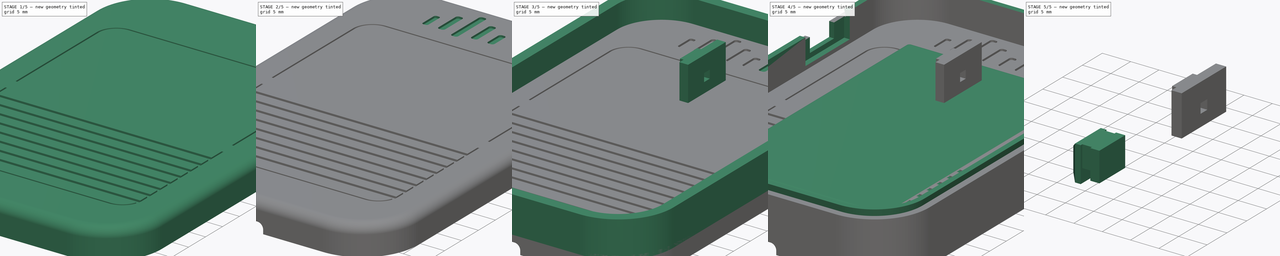
[diagram: build sequence overview — one tinted view per stage of 5, left to right]
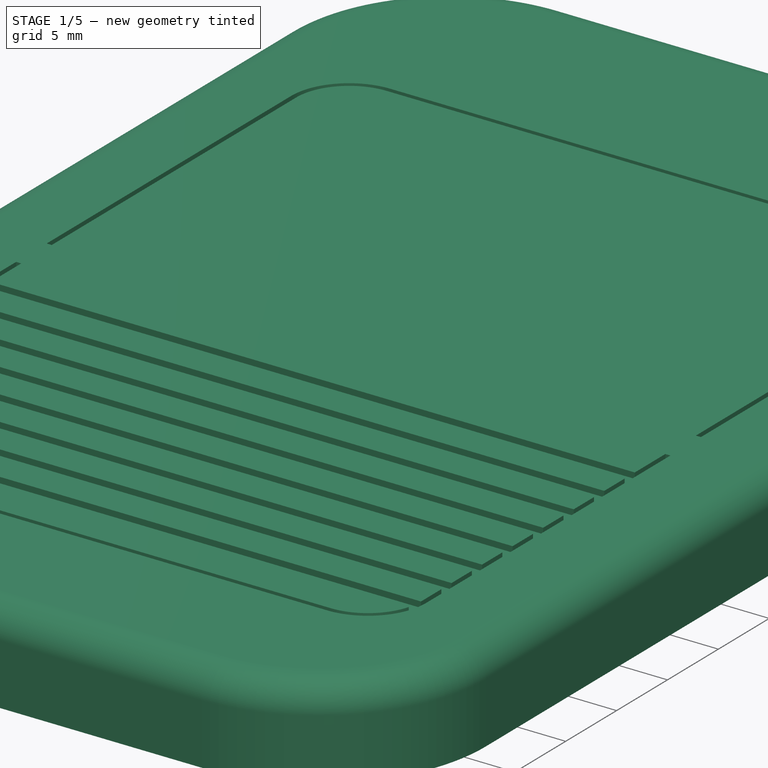
[diagram: stage 1 of 5 — iso view after this stage's code; geometry added in this stage tinted green]
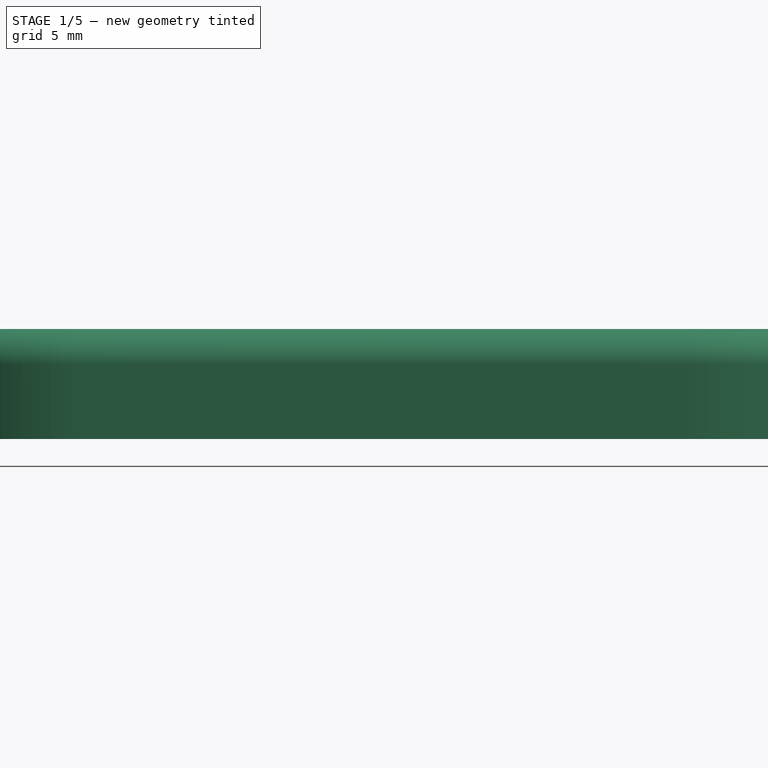
[diagram: stage 1 of 5 — front view after this stage's code; geometry added in this stage tinted green]
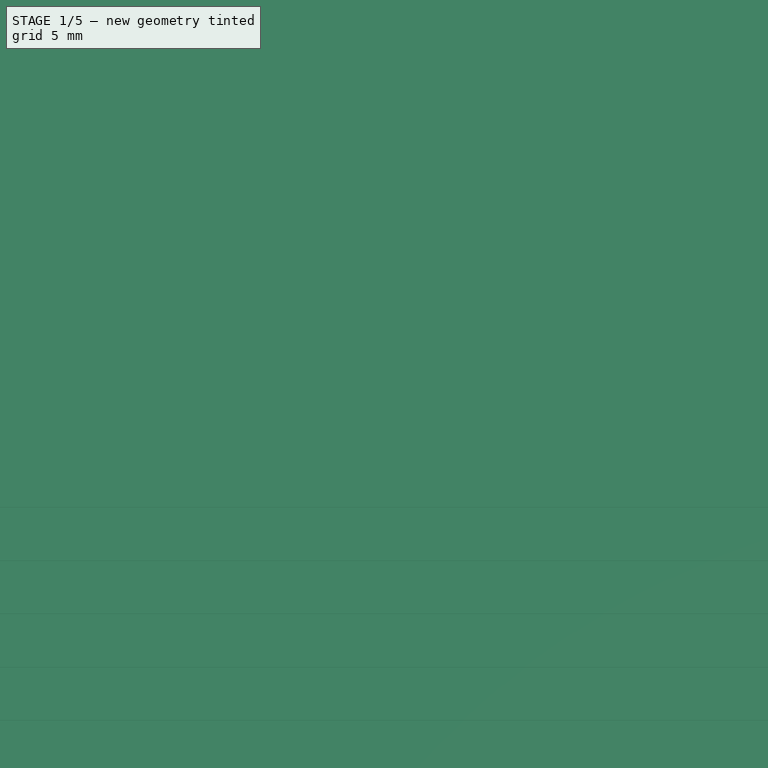
[diagram: stage 1 of 5 — top view after this stage's code; geometry added in this stage tinted green]
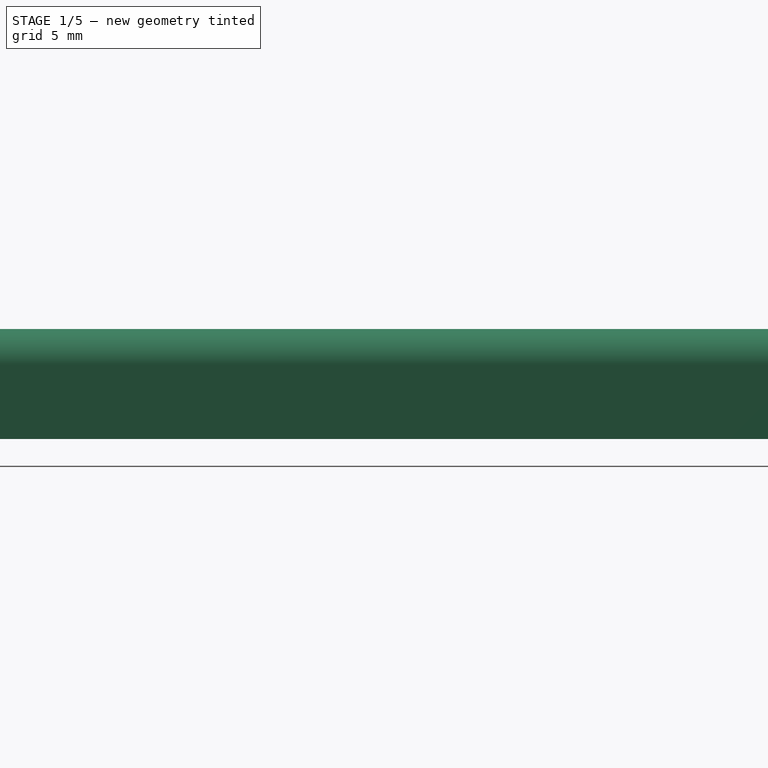
[diagram: stage 1 of 5 — right view after this stage's code; geometry added in this stage tinted green]
FCSTD DOCUMENT  (FreeCAD 1.1R44874 (Git))
Label: ev17-case
License: All rights reserved
LicenseURL: https://en.wikipedia.org/wiki/All_rights_reserved
objects: Sketcher::SketchObject×38, PartDesign::Pocket×22, PartDesign::Pad×15, Part::Feature×13, App::Point×7, PartDesign::SubShapeBinder×6, PartDesign::Body×5, PartDesign::Fillet×3, App::Part×2, App::VarSet×1, PartDesign::Chamfer×1, PartDesign::Hole×1, PartDesign::Mirrored×1
note: 228 computed .brp shape members not serialized (recipe doc carries the construction recipe); baked Part::Feature solids carry a one-line shape summary decoded from their .brp

FEATURE [Sketcher::SketchObject] Sketch045
  ArcFitTolerance = 1e-06
  AttachmentOffset = pos=(0,0,9.6) rot=(0,0,1;0rad)
  AttachmentSupport = -> [XY_Plane009]
  ExternalTypes = [0]
  FullyConstrained = true
  MakeInternals = false
  MapMode = 5
  Placement = pos=(0,0,9.6) rot=(0,0,1;0rad)
  _ExternalGeoVersion = 0
  expr: .AttachmentOffset.Base.z = <<vars>>.bottom_height
  expr: Constraints[29] = <<vars>>.width
  expr: Constraints[30] = <<vars>>.length
  expr: Constraints[4] = <<vars>>.wall_width
  expr: Constraints[53] = <<vars>>.corner_rad
  expr: Constraints[5] = <<vars>>.wall_length
  sketch-geometry (24):
    g0: LineSegment StartX=-26.4 StartY=30.85 StartZ=0 EndX=-26.4 EndY=-30.85 EndZ=0
    g1: LineSegment StartX=-17.1 StartY=-40.15 StartZ=0 EndX=17.1 EndY=-40.15 EndZ=0
    g2: LineSegment StartX=26.4 StartY=-30.85 StartZ=0 EndX=26.4 EndY=30.85 EndZ=0
    g3: LineSegment StartX=17.1 StartY=40.15 StartZ=0 EndX=-17.1 EndY=40.15 EndZ=0
    g4: ArcOfCircle CenterX=17.1 CenterY=30.85 CenterZ=0 NormalX=0 NormalY=0 NormalZ=1 AngleXU=0 Radius=9.3 StartAngle=1e-16 EndAngle=1.5708
    g5: GeomPoint [constr] X=26.4 Y=40.15 Z=0
    g6: ArcOfCircle CenterX=-17.1 CenterY=30.85 CenterZ=0 NormalX=0 NormalY=0 NormalZ=1 AngleXU=0 Radius=9.3 StartAngle=1.5708 EndAngle=3.14159
    g7: GeomPoint [constr] X=-26.4 Y=40.15 Z=0
    g8: ArcOfCircle CenterX=-17.1 CenterY=-30.85 CenterZ=0 NormalX=0 NormalY=0 NormalZ=1 AngleXU=0 Radius=9.3 StartAngle=3.14159 EndAngle=4.71239
    g9: GeomPoint [constr] X=-26.4 Y=-40.15 Z=0
    g10: ArcOfCircle CenterX=17.1 CenterY=-30.85 CenterZ=0 NormalX=0 NormalY=0 NormalZ=1 AngleXU=0 Radius=9.3 StartAngle=4.71239 EndAngle=6.28319
    g11: GeomPoint [constr] X=26.4 Y=-40.15 Z=0
    g12: LineSegment [constr] StartX=-28.6 StartY=30.85 StartZ=0 EndX=-28.6 EndY=-30.85 EndZ=0
    g13: LineSegment [constr] StartX=-17.1 StartY=-42.35 StartZ=0 EndX=17.1 EndY=-42.35 EndZ=0
    g14: LineSegment [constr] StartX=28.6 StartY=-30.85 StartZ=0 EndX=28.6 EndY=30.85 EndZ=0
    g15: LineSegment [constr] StartX=17.1 StartY=42.35 StartZ=0 EndX=-17.1 EndY=42.35 EndZ=0
    g16: ArcOfCircle [constr] CenterX=17.1 CenterY=30.85 CenterZ=0 NormalX=0 NormalY=0 NormalZ=1 AngleXU=0 Radius=11.5 StartAngle=0 EndAngle=1.5708
    g17: GeomPoint [constr] X=28.6 Y=42.35 Z=0
    g18: ArcOfCircle [constr] CenterX=17.1 CenterY=-30.85 CenterZ=0 NormalX=0 NormalY=0 NormalZ=1 AngleXU=0 Radius=11.5 StartAngle=4.71239 EndAngle=6.28319
    g19: GeomPoint [constr] X=28.6 Y=-42.35 Z=0
    g20: ArcOfCircle [constr] CenterX=-17.1 CenterY=-30.85 CenterZ=0 NormalX=0 NormalY=0 NormalZ=1 AngleXU=0 Radius=11.5 StartAngle=3.14159 EndAngle=4.71239
    g21: GeomPoint [constr] X=-28.6 Y=-42.35 Z=0
    g22: ArcOfCircle [constr] CenterX=-17.1 CenterY=30.85 CenterZ=0 NormalX=0 NormalY=0 NormalZ=1 AngleXU=0 Radius=11.5 StartAngle=1.5708 EndAngle=3.14159
    g23: GeomPoint [constr] X=-28.6 Y=42.35 Z=0
  constraints (55):
    c: Vertical(g0)
    c: Vertical(g2)
    c: Horizontal(g1)
    c: Horizontal(g3)
    c: DistanceX(g7,g5) = 52.8
    c: DistanceY(g11,g5) = 80.3
    c: PointOnObject(g5,g2)
    c: PointOnObject(g5,g3)
    c: Tangent(g2,g4) = -1.5708
    c: Tangent(g3,g4) = -1.5708
    c: PointOnObject(g7,g0)
    c: PointOnObject(g7,g3)
    c: Tangent(g0,g6) = -1.5708
    c: Tangent(g3,g6) = -1.5708
    c: PointOnObject(g9,g0)
    c: PointOnObject(g9,g1)
    c: Tangent(g0,g8) = -1.5708
    c: Tangent(g1,g8) = -1.5708
    c: PointOnObject(g11,g1)
    c: PointOnObject(g11,g2)
    c: Tangent(g1,g10) = -1.5708
    c: Tangent(g2,g10) = -1.5708
    c: Equal(g6,g4)
    c: Equal(g4,g10)
    c: Equal(g10,g8)
    c: Vertical(g12)
    c: Vertical(g14)
    c: Horizontal(g13)
    c: Horizontal(g15)
    c: DistanceX(g23,g17) = 57.2
    c: DistanceY(g19,g17) = 84.7
    c: Symmetric(g17,g21,g-1)
    c: PointOnObject(g17,g14)
    c: PointOnObject(g17,g15)
    c: Tangent(g14,g16) = -1.5708
    c: Tangent(g15,g16) = -1.5708
    c: PointOnObject(g19,g13)
    c: PointOnObject(g19,g14)
    c: Tangent(g13,g18) = -1.5708
    c: Tangent(g14,g18) = -1.5708
    c: PointOnObject(g21,g12)
    c: PointOnObject(g21,g13)
    c: Tangent(g12,g20) = -1.5708
    c: Tangent(g13,g20) = -1.5708
    c: PointOnObject(g23,g12)
    c: PointOnObject(g23,g15)
    c: Tangent(g12,g22) = -1.5708
    c: Tangent(g15,g22) = -1.5708
    c: Vertical(g3,g15)
    c: Horizontal(g0,g12)
    c: Equal(g22,g16)
    c: Equal(g16,g18)
    c: Equal(g18,g20)
    c: Radius(g22) = 11.5
    c: Vertical(g1,g13)
FEATURE [App::VarSet] VarSet001  label="vars"
  battery_height = 5
  battery_length = 60
  battery_width = 37
  bottom_depth = 7.95
  bottom_height = 9.6
  cap_base_diameter = 11
  corner_rad = 11.5
  hinge_bridge_gap = 3
  hinge_button_corner_rad = 4
  hinge_button_gap = 0.35
  hinge_button_length = 28
  hinge_button_stem_offset = 6
  hinge_button_width = 45
  hinge_offset_from_center = 2
  hinge_outer_offset_from_center = 3
  hinge_size = 1
  is_demo = false
  length = 84.7
  lever_button_height = 2.4
  lever_button_hook_length = 2.4
  lever_button_length = 28
  lever_button_prong_width = 5
  lever_button_prongs = 1.5
  lever_button_slot_height = 2.5
  lever_button_slot_length = 2.2
  lever_button_stem_diameter = 8
  lever_button_stem_length = 7
  lever_button_stem_slot_difference = 16.8
  lever_button_travel = 3
  lever_button_width = 9
  leverl_button_hook_height = 1.5
  lip_actual_thickness = 1.18
  lip_angle = 14.85
  lip_height = 1.4
  lip_thickness = 0.8
  pcb_thickness = 1.6
  pcb_z_offset = 6.6
  peg_bottom_height = 6.6
  peg_length = 4
  peg_pocket_rad = 1.8
  power_switch_base_length = 5.61
  power_switch_base_width = 11.2
  power_switch_extended_base_length = 7.61
  power_switch_extended_base_width = 13.2
  power_switch_knob_width = 5.2
  power_switch_pocket_width = 7.2
  power_switch_stem_pocket_sz = 1.7
  power_switch_thickness = 1.8
  ptt_button_base = 1.2
  ptt_button_stem = 2.3
  ptt_button_total_height = 3.5
  side_button_gap = 0.2
  side_button_stem_length = 1.7
  thickness = 2.2
  top_bottom_thickness = 1.65
  top_ceiling_distance_to_pcb_top = 5.6
  top_depth = 2.8
  top_height = 4.8
  top_thickness = 2
  total_height = 15.8
  version_demo = false
  version_screenless = false
  wall_length = 80.3
  wall_width = 52.8
  width = 57.2
  expr: bottom_depth = bottom_height - top_bottom_thickness
  expr: bottom_height = 11 mm - lip_height
  expr: cap_base_diameter = lever_button_stem_diameter + 3 mm
  expr: length = wall_length + thickness * 2
  expr: lever_button_slot_height = top_thickness + 0.5 mm
  expr: lever_button_stem_diameter = 8 mm
  expr: lever_button_stem_length = top_thickness + lever_button_travel + 2 mm
  expr: lever_button_stem_slot_difference = lever_button_length - lever_button_length * 0.4
  expr: lip_thickness = thickness / 2 - 0.3 mm
  expr: pcb_z_offset = battery_height + pcb_thickness
  expr: peg_bottom_height = pcb_z_offset
  expr: power_switch_base_width = power_switch_pocket_width + 4 mm
  expr: power_switch_extended_base_length = power_switch_base_length + 2 mm
  expr: power_switch_extended_base_width = power_switch_pocket_width + 6 mm
  expr: power_switch_pocket_width = power_switch_knob_width + 2 mm
  expr: ptt_button_stem = ptt_button_total_height - ptt_button_base
  expr: top_ceiling_distance_to_pcb_top = bottom_height + lip_height - pcb_z_offset + top_depth - pcb_thickness
  expr: top_depth = top_height - top_thickness
  expr: top_height = 6.2 mm - lip_height
  expr: top_thickness = 2 mm
  expr: total_height = bottom_height + top_height + lip_height
  expr: wall_width = 52.8
  expr: width = wall_width + thickness * 2
FEATURE [Sketcher::SketchObject] Sketch053
  ArcFitTolerance = 1e-06
  AttachmentSupport = -> [XY_Plane011]
  ExternalTypes = [0]
  FullyConstrained = true
  MakeInternals = false
  MapMode = 5
  _ExternalGeoVersion = 0
  expr: Constraints[23] = <<vars>>.corner_rad
  expr: Constraints[5] = <<vars>>.length
  expr: Constraints[6] = <<vars>>.width
  sketch-geometry (12):
    g0: LineSegment StartX=-28.6 StartY=30.85 StartZ=0 EndX=-28.6 EndY=-30.85 EndZ=0
    g1: LineSegment StartX=-17.1 StartY=-42.35 StartZ=0 EndX=17.1 EndY=-42.35 EndZ=0
    g2: LineSegment StartX=28.6 StartY=-30.85 StartZ=0 EndX=28.6 EndY=30.85 EndZ=0
    g3: LineSegment StartX=17.1 StartY=42.35 StartZ=0 EndX=-17.1 EndY=42.35 EndZ=0
    g4: ArcOfCircle CenterX=17.1 CenterY=30.85 CenterZ=0 NormalX=0 NormalY=0 NormalZ=1 AngleXU=0 Radius=11.5 StartAngle=1e-16 EndAngle=1.5708
    g5: GeomPoint [constr] X=28.6 Y=42.35 Z=0
    g6: ArcOfCircle CenterX=-17.1 CenterY=30.85 CenterZ=0 NormalX=0 NormalY=0 NormalZ=1 AngleXU=0 Radius=11.5 StartAngle=1.5708 EndAngle=3.14159
    g7: GeomPoint [constr] X=-28.6 Y=42.35 Z=0
    g8: ArcOfCircle CenterX=-17.1 CenterY=-30.85 CenterZ=0 NormalX=0 NormalY=0 NormalZ=1 AngleXU=0 Radius=11.5 StartAngle=3.14159 EndAngle=4.71239
    g9: GeomPoint [constr] X=-28.6 Y=-42.35 Z=0
    g10: ArcOfCircle CenterX=17.1 CenterY=-30.85 CenterZ=0 NormalX=0 NormalY=0 NormalZ=1 AngleXU=0 Radius=11.5 StartAngle=4.71239 EndAngle=6.28319
    g11: GeomPoint [constr] X=28.6 Y=-42.35 Z=0
  constraints (27):
    c: Vertical(g0)
    c: Vertical(g2)
    c: Horizontal(g1)
    c: Horizontal(g3)
    c: Symmetric(g5,g9,g-1)
    c: DistanceY(g9,g7) = 84.7
    c: DistanceX(g7,g5) = 57.2
    c: PointOnObject(g5,g2)
    c: PointOnObject(g5,g3)
    c: Tangent(g2,g4) = -1.5708
    c: Tangent(g3,g4) = -1.5708
    c: PointOnObject(g7,g0)
    c: PointOnObject(g7,g3)
    c: Tangent(g0,g6) = -1.5708
    c: Tangent(g3,g6) = -1.5708
    c: PointOnObject(g9,g0)
    c: PointOnObject(g9,g1)
    c: Tangent(g0,g8) = -1.5708
    c: Tangent(g1,g8) = -1.5708
    c: PointOnObject(g11,g1)
    c: PointOnObject(g11,g2)
    c: Tangent(g1,g10) = -1.5708
    c: Tangent(g2,g10) = -1.5708
    c: Radius(g6) = 11.5
    c: Equal(g6,g4)
    c: Equal(g4,g10)
    c: Equal(g10,g8)
FEATURE [PartDesign::Pad] Pad024  label="base-pad001"
  Direction = (0,0,1)
  Length = 4.8
  Length2 = 10
  Profile = -> Sketch053
  ReferenceAxis = -> Sketch053 [N_Axis]
  Refine = true
  SideType = 0
  Suppressed = false
  Type = 0
  Type2 = 0
  expr: Length = <<vars>>.top_height
FEATURE [PartDesign::Fillet] Fillet001
  Base = -> Pad024 [Edge4]
  BaseFeature = -> Pad024
  Radius = 2
  Refine = true
  SupportTransform = false
  Suppressed = false
  UseAllEdges = false
FEATURE [Sketcher::SketchObject] Sketch054
  ArcFitTolerance = 1e-06
  AttachmentSupport = -> [XY_Plane011]
  ExternalTypes = [0]
  FullyConstrained = true
  MakeInternals = false
  MapMode = 5
  _ExternalGeoVersion = 0
  expr: Constraints[30] = <<vars>>.width
  expr: Constraints[31] = <<vars>>.length
  expr: Constraints[49] = <<vars>>.corner_rad
  expr: Constraints[5] = <<vars>>.wall_width
  expr: Constraints[6] = <<vars>>.wall_length
  sketch-geometry (25):
    g0: LineSegment StartX=26.4 StartY=-30.85 StartZ=0 EndX=26.4 EndY=30.85 EndZ=0
    g1: LineSegment StartX=17.1 StartY=40.15 StartZ=0 EndX=-17.1 EndY=40.15 EndZ=0
    g2: LineSegment StartX=-26.4 StartY=30.85 StartZ=0 EndX=-26.4 EndY=-30.85 EndZ=0
    g3: LineSegment StartX=-17.1 StartY=-40.15 StartZ=0 EndX=17.1 EndY=-40.15 EndZ=0
    g4: GeomPoint [constr] X=0 Y=0 Z=0
    g5: ArcOfCircle CenterX=17.1 CenterY=30.85 CenterZ=0 NormalX=0 NormalY=0 NormalZ=1 AngleXU=0 Radius=9.3 StartAngle=1e-16 EndAngle=1.5708
    g6: GeomPoint [constr] X=26.4 Y=40.15 Z=0
    g7: ArcOfCircle CenterX=-17.1 CenterY=30.85 CenterZ=0 NormalX=0 NormalY=0 NormalZ=1 AngleXU=0 Radius=9.3 StartAngle=1.5708 EndAngle=3.14159
    g8: GeomPoint [constr] X=-26.4 Y=40.15 Z=0
    g9: ArcOfCircle CenterX=-17.1 CenterY=-30.85 CenterZ=0 NormalX=0 NormalY=0 NormalZ=1 AngleXU=0 Radius=9.3 StartAngle=3.14159 EndAngle=4.71239
    g10: GeomPoint [constr] X=-26.4 Y=-40.15 Z=0
    g11: ArcOfCircle CenterX=17.1 CenterY=-30.85 CenterZ=0 NormalX=0 NormalY=0 NormalZ=1 AngleXU=0 Radius=9.3 StartAngle=4.71239 EndAngle=6.28319
    g12: GeomPoint [constr] X=26.4 Y=-40.15 Z=0
    g13: LineSegment [constr] StartX=-28.6 StartY=30.85 StartZ=0 EndX=-28.6 EndY=-30.85 EndZ=0
    g14: LineSegment [constr] StartX=-17.1 StartY=-42.35 StartZ=0 EndX=17.1 EndY=-42.35 EndZ=0
    g15: LineSegment [constr] StartX=28.6 StartY=-30.85 StartZ=0 EndX=28.6 EndY=30.85 EndZ=0
    g16: LineSegment [constr] StartX=17.1 StartY=42.35 StartZ=0 EndX=-17.1 EndY=42.35 EndZ=0
    g17: ArcOfCircle [constr] CenterX=-17.1 CenterY=30.85 CenterZ=0 NormalX=0 NormalY=0 NormalZ=1 AngleXU=0 Radius=11.5 StartAngle=1.5708 EndAngle=3.14159
    g18: GeomPoint [constr] X=-28.6 Y=42.35 Z=0
    g19: ArcOfCircle [constr] CenterX=17.1 CenterY=30.85 CenterZ=0 NormalX=0 NormalY=0 NormalZ=1 AngleXU=0 Radius=11.5 StartAngle=0 EndAngle=1.5708
    g20: GeomPoint [constr] X=28.6 Y=42.35 Z=0
    g21: ArcOfCircle [constr] CenterX=17.1 CenterY=-30.85 CenterZ=0 NormalX=0 NormalY=0 NormalZ=1 AngleXU=0 Radius=11.5 StartAngle=4.71239 EndAngle=6.28319
    g22: GeomPoint [constr] X=28.6 Y=-42.35 Z=0
    g23: ArcOfCircle [constr] CenterX=-17.1 CenterY=-30.85 CenterZ=0 NormalX=0 NormalY=0 NormalZ=1 AngleXU=0 Radius=11.5 StartAngle=3.14159 EndAngle=4.71239
    g24: GeomPoint [constr] X=-28.6 Y=-42.35 Z=0
  constraints (56):
    c: Vertical(g0)
    c: Vertical(g2)
    c: Horizontal(g1)
    c: Horizontal(g3)
    c: Coincident(g4,g-1)
    c: DistanceX(g8,g6) = 52.8
    c: DistanceY(g10,g8) = 80.3
    c: PointOnObject(g6,g1)
    c: PointOnObject(g6,g0)
    c: Tangent(g1,g5) = -1.5708
    c: Tangent(g0,g5) = -1.5708
    c: PointOnObject(g8,g1)
    c: PointOnObject(g8,g2)
    c: Tangent(g1,g7) = -1.5708
    c: Tangent(g2,g7) = -1.5708
    c: PointOnObject(g10,g2)
    c: PointOnObject(g10,g3)
    c: Tangent(g2,g9) = -1.5708
    c: Tangent(g3,g9) = -1.5708
    c: PointOnObject(g12,g0)
    c: PointOnObject(g12,g3)
    c: Tangent(g0,g11) = -1.5708
    c: Tangent(g3,g11) = -1.5708
    c: Equal(g7,g5)
    c: Equal(g5,g11)
    c: Equal(g11,g9)
    c: Vertical(g13)
    c: Vertical(g15)
    c: Horizontal(g14)
    c: Horizontal(g16)
    c: DistanceX(g18,g20) = 57.2
    c: DistanceY(g22,g20) = 84.7
    c: PointOnObject(g18,g13)
    c: PointOnObject(g18,g16)
    c: Tangent(g13,g17) = -1.5708
    c: Tangent(g16,g17) = -1.5708
    c: Symmetric(g20,g24,g4)
    c: PointOnObject(g20,g15)
    c: PointOnObject(g20,g16)
    c: Tangent(g15,g19) = -1.5708
    c: Tangent(g16,g19) = -1.5708
    c: PointOnObject(g22,g14)
    c: PointOnObject(g22,g15)
    c: Tangent(g14,g21) = -1.5708
    c: Tangent(g15,g21) = -1.5708
    c: PointOnObject(g24,g13)
    c: PointOnObject(g24,g14)
    c: Tangent(g13,g23) = -1.5708
    c: Tangent(g14,g23) = -1.5708
    c: Radius(g17) = 11.5
    c: Equal(g17,g19)
    c: Equal(g19,g21)
    c: Equal(g21,g23)
    c: Vertical(g1,g16)
    c: Horizontal(g2,g13)
    c: Vertical(g3,g14)
FEATURE [PartDesign::Pocket] Pocket025  label="hollow-pocket001"
  BaseFeature = -> Fillet001
  Direction = (0,0,-1)
  Length = 2.8
  Length2 = 5
  Profile = -> Sketch054
  ReferenceAxis = -> Sketch054 [N_Axis]
  Refine = true
  Reversed = true
  SideType = 0
  Suppressed = false
  Type = 0
  Type2 = 0
  expr: Length = <<vars>>.top_depth
FEATURE [Sketcher::SketchObject] Sketch057
  ArcFitTolerance = 1e-06
  AttachmentSupport = -> [XY_Plane011]
  ExternalTypes = [0]
  FullyConstrained = true
  MakeInternals = false
  MapMode = 5
  _ExternalGeoVersion = 0
  expr: Constraints[23] = <<vars>>.corner_rad
  expr: Constraints[49] = <<vars>>.lip_thickness
  expr: Constraints[4] = <<vars>>.length
  expr: Constraints[5] = <<vars>>.width
  sketch-geometry (24):
    g0: LineSegment StartX=-28.6 StartY=30.85 StartZ=0 EndX=-28.6 EndY=-30.85 EndZ=0
    g1: LineSegment StartX=-17.1 StartY=-42.35 StartZ=0 EndX=17.1 EndY=-42.35 EndZ=0
    g2: LineSegment StartX=28.6 StartY=-30.85 StartZ=0 EndX=28.6 EndY=30.85 EndZ=0
    g3: LineSegment StartX=17.1 StartY=42.35 StartZ=0 EndX=-17.1 EndY=42.35 EndZ=0
    g4: ArcOfCircle CenterX=-17.1 CenterY=30.85 CenterZ=0 NormalX=0 NormalY=0 NormalZ=1 AngleXU=0 Radius=11.5 StartAngle=1.5708 EndAngle=3.14159
    g5: GeomPoint [constr] X=-28.6 Y=42.35 Z=0
    g6: ArcOfCircle CenterX=17.1 CenterY=30.85 CenterZ=0 NormalX=0 NormalY=0 NormalZ=1 AngleXU=0 Radius=11.5 StartAngle=0 EndAngle=1.5708
    g7: GeomPoint [constr] X=28.6 Y=42.35 Z=0
    g8: ArcOfCircle CenterX=17.1 CenterY=-30.85 CenterZ=0 NormalX=0 NormalY=0 NormalZ=1 AngleXU=0 Radius=11.5 StartAngle=4.71239 EndAngle=6.28319
    g9: GeomPoint [constr] X=28.6 Y=-42.35 Z=0
    g10: ArcOfCircle CenterX=-17.1 CenterY=-30.85 CenterZ=0 NormalX=0 NormalY=0 NormalZ=1 AngleXU=0 Radius=11.5 StartAngle=3.14159 EndAngle=4.71239
    g11: GeomPoint [constr] X=-28.6 Y=-42.35 Z=0
    g12: LineSegment StartX=-27.8 StartY=30.85 StartZ=0 EndX=-27.8 EndY=-30.85 EndZ=0
    g13: LineSegment StartX=-17.1 StartY=-41.55 StartZ=0 EndX=17.1 EndY=-41.55 EndZ=0
    g14: LineSegment StartX=27.8 StartY=-30.85 StartZ=0 EndX=27.8 EndY=30.85 EndZ=0
    g15: LineSegment StartX=17.1 StartY=41.55 StartZ=0 EndX=-17.1 EndY=41.55 EndZ=0
    g16: ArcOfCircle CenterX=-17.1 CenterY=30.85 CenterZ=0 NormalX=0 NormalY=0 NormalZ=1 AngleXU=0 Radius=10.7 StartAngle=1.5708 EndAngle=3.14159
    g17: GeomPoint [constr] X=-27.8 Y=41.55 Z=0
    g18: ArcOfCircle CenterX=17.1 CenterY=30.85 CenterZ=0 NormalX=0 NormalY=0 NormalZ=1 AngleXU=0 Radius=10.7 StartAngle=2e-16 EndAngle=1.5708
    g19: GeomPoint [constr] X=27.8 Y=41.55 Z=0
    g20: ArcOfCircle CenterX=17.1 CenterY=-30.85 CenterZ=0 NormalX=0 NormalY=0 NormalZ=1 AngleXU=0 Radius=10.7 StartAngle=4.71239 EndAngle=6.28319
    g21: GeomPoint [constr] X=27.8 Y=-41.55 Z=0
    g22: ArcOfCircle CenterX=-17.1 CenterY=-30.85 CenterZ=0 NormalX=0 NormalY=0 NormalZ=1 AngleXU=0 Radius=10.7 StartAngle=3.14159 EndAngle=4.71239
    g23: GeomPoint [constr] X=-27.8 Y=-41.55 Z=0
  constraints (55):
    c: Vertical(g0)
    c: Vertical(g2)
    c: Horizontal(g1)
    c: Horizontal(g3)
    c: DistanceY(g9,g7) = 84.7
    c: DistanceX(g5,g7) = 57.2
    c: Symmetric(g7,g11,g-1)
    c: PointOnObject(g5,g0)
    c: PointOnObject(g5,g3)
    c: Tangent(g0,g4) = -1.5708
    c: Tangent(g3,g4) = -1.5708
    c: PointOnObject(g7,g2)
    c: PointOnObject(g7,g3)
    c: Tangent(g2,g6) = -1.5708
    c: Tangent(g3,g6) = -1.5708
    c: PointOnObject(g9,g1)
    c: PointOnObject(g9,g2)
    c: Tangent(g1,g8) = -1.5708
    c: Tangent(g2,g8) = -1.5708
    c: PointOnObject(g11,g0)
    c: PointOnObject(g11,g1)
    c: Tangent(g0,g10) = -1.5708
    c: Tangent(g1,g10) = -1.5708
    c: Radius(g4) = 11.5
    c: Equal(g6,g4)
    c: Equal(g8,g6)
    c: Equal(g10,g8)
    c: Vertical(g12)
    c: Vertical(g14)
    c: Horizontal(g13)
    c: Horizontal(g15)
    c: PointOnObject(g17,g12)
    c: PointOnObject(g17,g15)
    c: Tangent(g12,g16) = -1.5708
    c: Tangent(g15,g16) = -1.5708
    c: PointOnObject(g19,g14)
    c: PointOnObject(g19,g15)
    c: Tangent(g14,g18) = -1.5708
    c: Tangent(g15,g18) = -1.5708
    c: PointOnObject(g21,g13)
    c: PointOnObject(g21,g14)
    c: Tangent(g13,g20) = -1.5708
    c: Tangent(g14,g20) = -1.5708
    c: PointOnObject(g23,g12)
    c: PointOnObject(g23,g13)
    c: Tangent(g12,g22) = -1.5708
    c: Tangent(g13,g22) = -1.5708
    c: Horizontal(g12,g0)
    c: Vertical(g13,g1)
    c: DistanceX(g0,g12) = 0.8
    c: Vertical(g13,g1)
    c: Horizontal(g14,g2)
    c: Vertical(g15,g3)
    c: Horizontal(g12,g0)
    c: Vertical(g15,g3)
FEATURE [PartDesign::Pad] Pad025  label="lip-angle001"
  BaseFeature = -> Pocket025
  Direction = (0,0,1)
  Length = 1.4
  Length2 = 10
  Profile = -> Sketch057
  ReferenceAxis = -> Sketch057 [N_Axis]
  Refine = true
  Reversed = true
  SideType = 0
  Suppressed = false
  TaperAngle = 14.85
  Type = 0
  Type2 = 0
  expr: Length = <<vars>>.lip_height
  expr: TaperAngle = <<vars>>.lip_angle
FEATURE [PartDesign::Body] Body007  label="bottom"
  AllowCompound = true
  Group = -> [Sketch044,Pad021,Fillet005,Sketch045,Pocket020,Sketch,Pad,Pocket054,Sketch046,Binder,Sketch101,Pad052,Sketch103,Hole,Sketch104,Pocket,Sketch105,Pocket056,Sketch134,Pocket040,Sketch106,Pocket041,Sketch107,Pocket042,Sketch108,Pocket043,Binder011,Sketch109,Pad053]
  Origin = -> Origin009
  Tip = -> Pad053
FEATURE [PartDesign::Pocket] Pocket057  label="lip-flattening001"
  BaseFeature = -> Pad025
  Direction = (0,0,-1)
  Length = 5
  Length2 = 5
  Profile = -> Sketch058
  ReferenceAxis = -> Sketch058 [N_Axis]
  Refine = true
  SideType = 0
  Suppressed = false
  Type = 0
  Type2 = 0
FEATURE [PartDesign::Pocket] Pocket050  label="hinge-outline"
  BaseFeature = -> Pocket057
  Direction = (0,0,-1)
  Length = 5
  Length2 = 5
  Profile = -> Sketch123
  ReferenceAxis = -> Sketch123 [N_Axis]
  Refine = true
  SideType = 0
  Suppressed = false
  Type = 0
  Type2 = 0
FEATURE [Sketcher::SketchObject] Sketch124
  ArcFitTolerance = 1e-06
  AttachmentOffset = pos=(0,0,2.8) rot=(0,0,1;0rad)
  AttachmentSupport = -> [XY_Plane011]
  ExternalGeometry = -> [Pocket050]
  ExternalTypes = [0]
  FullyConstrained = true
  MakeInternals = false
  MapMode = 5
  Placement = pos=(0,0,2.8) rot=(0,0,1;0rad)
  _ExternalGeoVersion = 0
  expr: .AttachmentOffset.Base.z = <<vars>>.top_depth
  expr: Constraints[10] = <<vars>>.hinge_size
  expr: Constraints[8] = <<vars>>.hinge_button_width - <<vars>>.hinge_button_gap * 2
  sketch-geometry (10):
    g0: LineSegment StartX=-22.15 StartY=-1 StartZ=0 EndX=22.15 EndY=-1 EndZ=0
    g1: LineSegment StartX=22.15 StartY=-1 StartZ=0 EndX=22.15 EndY=0 EndZ=0
    g2: LineSegment StartX=22.15 StartY=0 StartZ=0 EndX=-22.15 EndY=0 EndZ=0
    g3: LineSegment StartX=-22.15 StartY=0 StartZ=0 EndX=-22.15 EndY=-1 EndZ=0
    g4: GeomPoint [constr] X=2.1e-15 Y=-1 Z=0
    g5: LineSegment StartX=-22.15 StartY=-4 StartZ=0 EndX=-22.15 EndY=-5 EndZ=0
    g6: LineSegment StartX=-22.15 StartY=-5 StartZ=0 EndX=22.15 EndY=-5 EndZ=0
    g7: LineSegment StartX=22.15 StartY=-5 StartZ=0 EndX=22.15 EndY=-4 EndZ=0
    g8: LineSegment StartX=22.15 StartY=-4 StartZ=0 EndX=-22.15 EndY=-4 EndZ=0
    g9: GeomPoint [constr] X=3.4e-15 Y=-4 Z=0
  constraints (24):
    c: Coincident(g0,g1)
    c: Coincident(g1,g2)
    c: Coincident(g2,g3)
    c: Coincident(g3,g0)
    c: Horizontal(g0)
    c: Horizontal(g2)
    c: Vertical(g1)
    c: Vertical(g3)
    c: DistanceX(g0,g0) = 44.3
    c: Symmetric(g0,g0,g4)
    c: DistanceY(g1,g1) = 1
    c: Coincident(g5,g6)
    c: Coincident(g6,g7)
    c: Coincident(g7,g8)
    c: Coincident(g8,g5)
    c: Vertical(g5)
    c: Vertical(g7)
    c: Horizontal(g6)
    c: Horizontal(g8)
    c: Symmetric(g8,g8,g9)
    c: Equal(g8,g0)
    c: Equal(g7,g1)
    c: Coincident(g0,g-34)
    c: Coincident(g7,g-17)
FEATURE [PartDesign::Pocket] Pocket051  label="hinge bridge"
  BaseFeature = -> Pocket050
  Direction = (0,0,-1)
  Length = 1.5
  Length2 = 5
  Profile = -> Sketch124
  ReferenceAxis = -> Sketch124 [N_Axis]
  Refine = true
  Reversed = true
  SideType = 0
  Suppressed = false
  Type = 0
  Type2 = 0
  expr: Length = <<vars>>.top_thickness - 0.5 mm
FEATURE [Sketcher::SketchObject] Sketch125
  ArcFitTolerance = 1e-06
  AttachmentOffset = pos=(0,0,2.8) rot=(0,0,1;0rad)
  AttachmentSupport = -> [XY_Plane011]
  ExternalGeometry = -> [Binder016,Pocket051]
  ExternalTypes = [0,0,0,0]
  FullyConstrained = true
  MakeInternals = false
  MapMode = 5
  Placement = pos=(0,0,2.8) rot=(0,0,1;0rad)
  _ExternalGeoVersion = 0
  expr: .AttachmentOffset.Base.z = <<vars>>.top_depth
  expr: Constraints[1] = <<vars>>.lever_button_stem_diameter
  sketch-geometry (2):
    g0: Circle CenterX=0.025 CenterY=-12 CenterZ=0 NormalX=0 NormalY=0 NormalZ=1 AngleXU=0 Radius=4
    g1: Circle CenterX=0.025 CenterY=22 CenterZ=0 NormalX=0 NormalY=0 NormalZ=1 AngleXU=0 Radius=4
  constraints (4):
    c: Coincident(g0,g-13)
    c: Diameter(g0) = 8
    c: Coincident(g1,g-23)
    c: Equal(g1,g0)
FEATURE [PartDesign::Pad] Pad060  label="hinge-button-stem-pad"
  BaseFeature = -> Pocket051
  Direction = (0,0,1)
  Length = 2.1
  Length2 = 10
  Profile = -> Sketch125
  ReferenceAxis = -> Sketch125 [N_Axis]
  Refine = true
  Reversed = true
  SideType = 0
  Suppressed = false
  Type = 0
  Type2 = 0
  expr: Length = <<vars>>.top_ceiling_distance_to_pcb_top - <<vars>>.ptt_button_base - <<vars>>.ptt_button_stem
FEATURE [Sketcher::SketchObject] Sketch129
  ArcFitTolerance = 1e-06
  AttachmentOffset = pos=(0,0,4.8) rot=(0,0,1;0rad)
  AttachmentSupport = -> [XY_Plane011]
  ExternalGeometry = -> [Pad060]
  ExternalTypes = [0]
  FullyConstrained = true
  MakeInternals = false
  MapMode = 5
  Placement = pos=(0,0,4.8) rot=(0,0,1;0rad)
  _ExternalGeoVersion = 0
  expr: .AttachmentOffset.Base.z = <<vars>>.top_height
  sketch-geometry (34):
    g0: GeomPoint [constr] X=-22.15 Y=-31.65 Z=0
    g1: LineSegment [constr] StartX=22.15 StartY=-4 StartZ=0 EndX=22.15 EndY=-31.65 EndZ=0
    g2: LineSegment StartX=-22.15 StartY=-7 StartZ=0 EndX=-22.15 EndY=-8 EndZ=0
    g3: LineSegment StartX=-22.15 StartY=-8 StartZ=0 EndX=22.15 EndY=-8 EndZ=0
    g4: LineSegment StartX=22.15 StartY=-8 StartZ=0 EndX=22.15 EndY=-7 EndZ=0
    g5: LineSegment StartX=22.15 StartY=-7 StartZ=0 EndX=-22.15 EndY=-7 EndZ=0
    g6: LineSegment StartX=22.15 StartY=-10 StartZ=0 EndX=-22.15 EndY=-10 EndZ=0
    g7: LineSegment StartX=-22.15 StartY=-10 StartZ=0 EndX=-22.15 EndY=-11 EndZ=0
    g8: LineSegment StartX=-22.15 StartY=-11 StartZ=0 EndX=22.15 EndY=-11 EndZ=0
    g9: LineSegment StartX=22.15 StartY=-11 StartZ=0 EndX=22.15 EndY=-10 EndZ=0
    g10: LineSegment StartX=-22.15 StartY=-13 StartZ=0 EndX=-22.15 EndY=-14 EndZ=0
    g11: LineSegment StartX=-22.15 StartY=-14 StartZ=0 EndX=22.15 EndY=-14 EndZ=0
    g12: LineSegment StartX=22.15 StartY=-14 StartZ=0 EndX=22.15 EndY=-13 EndZ=0
    g13: LineSegment StartX=22.15 StartY=-13 StartZ=0 EndX=-22.15 EndY=-13 EndZ=0
    g14: LineSegment StartX=-22.15 StartY=-17 StartZ=0 EndX=22.15 EndY=-17 EndZ=0
    g15: LineSegment StartX=22.15 StartY=-17 StartZ=0 EndX=22.15 EndY=-16 EndZ=0
    g16: LineSegment StartX=22.15 StartY=-16 StartZ=0 EndX=-22.15 EndY=-16 EndZ=0
    g17: LineSegment StartX=-22.15 StartY=-16 StartZ=0 EndX=-22.15 EndY=-17 EndZ=0
    g18: LineSegment StartX=22.15 StartY=-19 StartZ=0 EndX=-22.15 EndY=-19 EndZ=0
    g19: LineSegment StartX=-22.15 StartY=-19 StartZ=0 EndX=-22.15 EndY=-20 EndZ=0
    g20: LineSegment StartX=-22.15 StartY=-20 StartZ=0 EndX=22.15 EndY=-20 EndZ=0
    g21: LineSegment StartX=22.15 StartY=-20 StartZ=0 EndX=22.15 EndY=-19 EndZ=0
    g22: LineSegment StartX=-22.15 StartY=-22 StartZ=0 EndX=-22.15 EndY=-23 EndZ=0
    g23: LineSegment StartX=-22.15 StartY=-23 StartZ=0 EndX=22.15 EndY=-23 EndZ=0
    g24: LineSegment StartX=22.15 StartY=-23 StartZ=0 EndX=22.15 EndY=-22 EndZ=0
    g25: LineSegment StartX=22.15 StartY=-22 StartZ=0 EndX=-22.15 EndY=-22 EndZ=0
    g26: LineSegment StartX=22.15 StartY=-25 StartZ=0 EndX=-22.15 EndY=-25 EndZ=0
    g27: LineSegment StartX=-22.15 StartY=-25 StartZ=0 EndX=-22.15 EndY=-26 EndZ=0
    g28: LineSegment StartX=-22.15 StartY=-26 StartZ=0 EndX=22.15 EndY=-26 EndZ=0
    g29: LineSegment StartX=22.15 StartY=-26 StartZ=0 EndX=22.15 EndY=-25 EndZ=0
    g30: LineSegment StartX=22.15 StartY=-28 StartZ=0 EndX=-22.15 EndY=-28 EndZ=0
    g31: LineSegment StartX=-22.0103 StartY=-29 StartZ=0 EndX=22.0103 EndY=-29 EndZ=0
    g32: ArcOfCircle CenterX=18.5 CenterY=-28 CenterZ=0 NormalX=0 NormalY=0 NormalZ=1 AngleXU=0 Radius=3.65 StartAngle=6.00566 EndAngle=6.28319
    g33: ArcOfCircle CenterX=-18.5 CenterY=-28 CenterZ=0 NormalX=0 NormalY=0 NormalZ=1 AngleXU=0 Radius=3.65 StartAngle=3.14159 EndAngle=3.41911
  constraints (104):
    c: Horizontal(g0,g-6)
    c: Vertical(g0,g-6)
    c: Vertical(g-5,g1)
    c: Horizontal(g1,g-5)
    c: Coincident(g1,g-4)
    c: DistanceY(g1,g1) = 27.65
    c: Coincident(g2,g3)
    c: Coincident(g3,g4)
    c: Coincident(g4,g5)
    c: Coincident(g5,g2)
    c: Vertical(g2)
    c: Vertical(g4)
    c: Horizontal(g3)
    c: Horizontal(g5)
    c: PointOnObject(g2,g-3)
    c: PointOnObject(g3,g1)
    c: Coincident(g6,g7)
    c: Coincident(g7,g8)
    c: Coincident(g8,g9)
    c: Coincident(g9,g6)
    c: Horizontal(g6)
    c: Horizontal(g8)
    c: Vertical(g7)
    c: Vertical(g9)
    c: PointOnObject(g6,g1)
    c: PointOnObject(g7,g-3)
    c: Coincident(g10,g11)
    c: Coincident(g11,g12)
    c: Coincident(g12,g13)
    c: Coincident(g13,g10)
    c: Vertical(g10)
    c: Vertical(g12)
    c: Horizontal(g11)
    c: Horizontal(g13)
    c: PointOnObject(g10,g-3)
    c: PointOnObject(g11,g1)
    c: Equal(g9,g4)
    c: Distance(g3,g6) = 2
    c: Equal(g9,g12)
    c: Distance(g8,g13) = 2
    c: Coincident(g14,g15)
    c: Coincident(g15,g16)
    c: Coincident(g16,g17)
    c: Coincident(g17,g14)
    c: Horizontal(g14)
    c: Horizontal(g16)
    c: Vertical(g15)
    c: Vertical(g17)
    c: PointOnObject(g14,g-3)
    c: PointOnObject(g15,g1)
    c: Coincident(g18,g19)
    c: Coincident(g19,g20)
    c: Coincident(g20,g21)
    c: Coincident(g21,g18)
    c: Horizontal(g18)
    c: Horizontal(g20)
    c: Vertical(g19)
    c: Vertical(g21)
    c: PointOnObject(g18,g1)
    c: PointOnObject(g19,g-3)
    c: Coincident(g22,g23)
    c: Coincident(g23,g24)
    c: Coincident(g24,g25)
    c: Coincident(g25,g22)
    c: Vertical(g22)
    c: Vertical(g24)
    c: Horizontal(g23)
    c: Horizontal(g25)
    c: PointOnObject(g22,g-3)
    c: PointOnObject(g23,g1)
    c: Equal(g15,g12)
    c: Equal(g21,g15)
    c: Equal(g24,g21)
    c: Distance(g11,g16) = 2
    c: Distance(g18,g14) = 2
    c: Distance(g25,g20) = 2
    c: Coincident(g26,g27)
    c: Coincident(g27,g28)
    c: Coincident(g28,g29)
    c: Coincident(g29,g26)
    c: Horizontal(g26)
    c: Horizontal(g28)
    c: Vertical(g27)
    c: Vertical(g29)
    c: PointOnObject(g26,g1)
    c: PointOnObject(g27,g-3)
    c: Equal(g27,g22)
    c: Distance(g23,g26) = 2
    c: Horizontal(g30)
    c: Horizontal(g31)
    c: Distance(g28,g30) = 2
    c: Equal(g32,g-5)
    c: Coincident(g32,g30)
    c: Coincident(g32,g31)
    c: Distance(g30,g31) = 1
    c: PointOnObject(g30,g-5)
    c: PointOnObject(g31,g-5)
    c: Equal(g33,g-6)
    c: Coincident(g33,g30)
    c: Coincident(g33,g31)
    c: PointOnObject(g31,g-6)
    c: PointOnObject(g30,g-6)
    c: DistanceY(g4,g4) = 1
    c: Distance(g1,g5) = 3
FEATURE [PartDesign::Pocket] Pocket052  label="hinge-button-grooves"
  BaseFeature = -> Pad060
  Direction = (0,0,-1)
  Length = 0.4
  Length2 = 5
  Profile = -> Sketch129
  ReferenceAxis = -> Sketch129 [N_Axis]
  Refine = true
  SideType = 0
  Suppressed = false
  Type = 0
  Type2 = 0
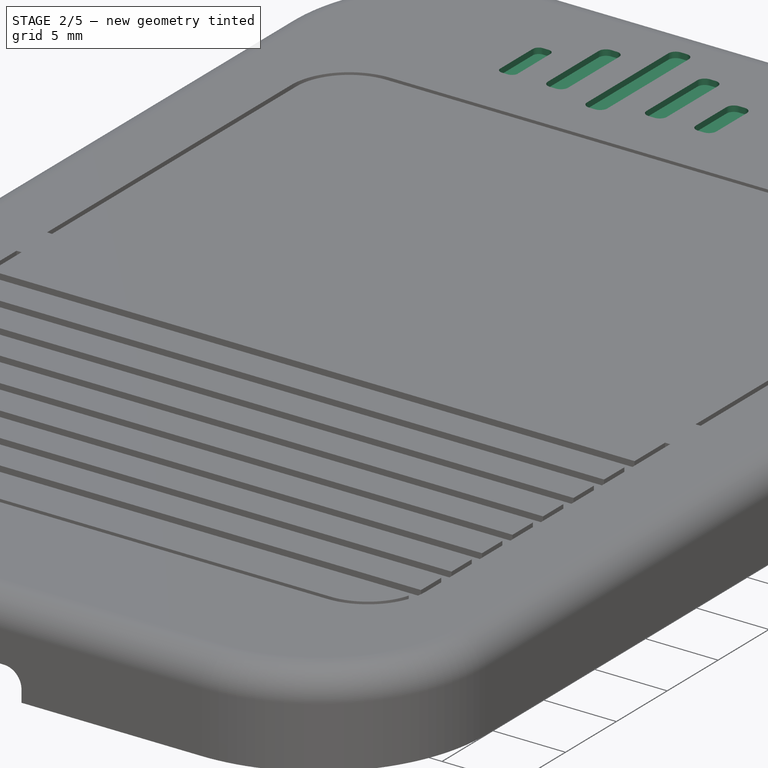
[diagram: stage 2 of 5 — iso view after this stage's code; geometry added in this stage tinted green]
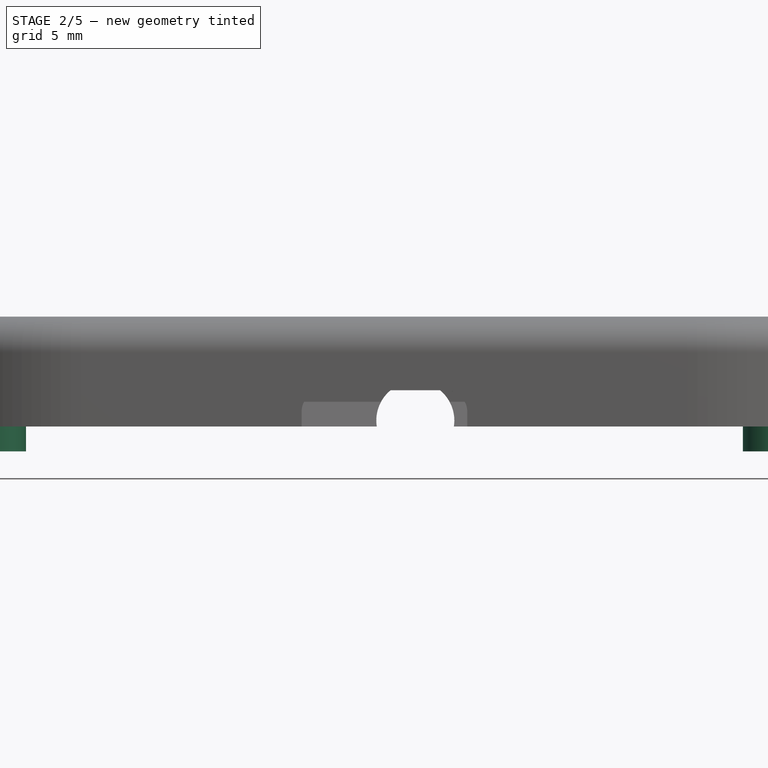
[diagram: stage 2 of 5 — front view after this stage's code; geometry added in this stage tinted green]
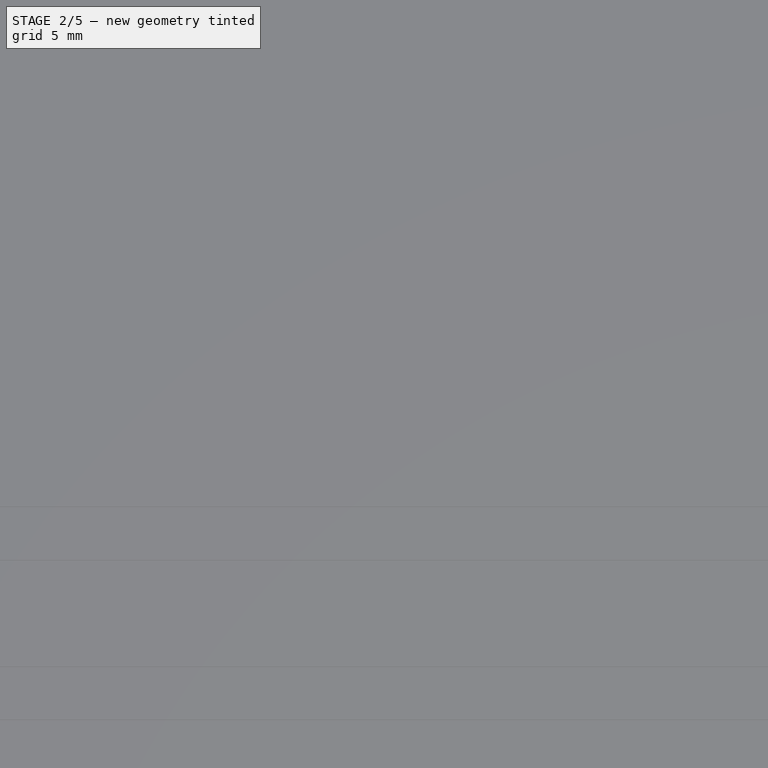
[diagram: stage 2 of 5 — top view after this stage's code; geometry added in this stage tinted green]
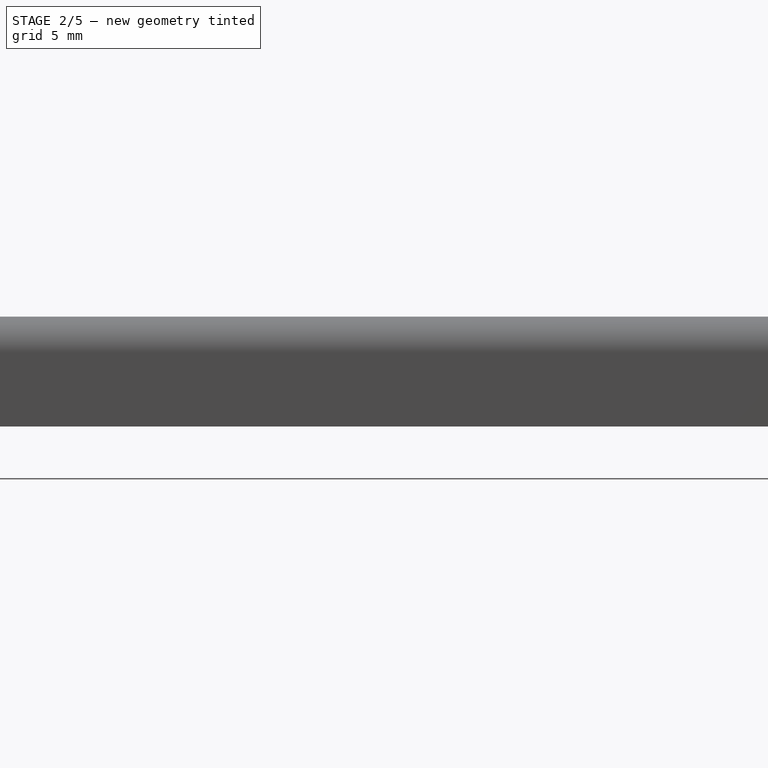
[diagram: stage 2 of 5 — right view after this stage's code; geometry added in this stage tinted green]
FEATURE [Sketcher::SketchObject] Sketch130
  ArcFitTolerance = 1e-06
  AttachmentOffset = pos=(0,0,4.8) rot=(0,0,1;0rad)
  AttachmentSupport = -> [XY_Plane011]
  ExternalGeometry = -> [Pocket052]
  ExternalTypes = [0]
  FullyConstrained = true
  MakeInternals = false
  MapMode = 5
  Placement = pos=(0,0,4.8) rot=(0,0,1;0rad)
  _ExternalGeoVersion = 0
  expr: .AttachmentOffset.Base.z = <<vars>>.top_height
  sketch-geometry (68):
    g0: LineSegment StartX=-0.7 StartY=34.675 StartZ=0 EndX=-0.7 EndY=31.675 EndZ=0
    g1: LineSegment StartX=-0.2 StartY=31.175 StartZ=0 EndX=0.2 EndY=31.175 EndZ=0
    g2: LineSegment StartX=0.7 StartY=31.675 StartZ=0 EndX=0.7 EndY=34.675 EndZ=0
    g3: LineSegment StartX=0.2 StartY=35.175 StartZ=0 EndX=-0.2 EndY=35.175 EndZ=0
    g4: ArcOfCircle CenterX=-0.2 CenterY=34.675 CenterZ=0 NormalX=0 NormalY=0 NormalZ=1 AngleXU=0 Radius=0.5 StartAngle=1.5708 EndAngle=3.14159
    g5: GeomPoint [constr] X=-0.7 Y=35.175 Z=0
    g6: ArcOfCircle CenterX=0.2 CenterY=34.675 CenterZ=0 NormalX=0 NormalY=0 NormalZ=1 AngleXU=0 Radius=0.5 StartAngle=5.4e-15 EndAngle=1.5708
    g7: GeomPoint [constr] X=0.7 Y=35.175 Z=0
    g8: ArcOfCircle CenterX=0.2 CenterY=31.675 CenterZ=0 NormalX=0 NormalY=0 NormalZ=1 AngleXU=0 Radius=0.5 StartAngle=4.71239 EndAngle=6.28319
    g9: GeomPoint [constr] X=0.7 Y=31.175 Z=0
    g10: ArcOfCircle CenterX=-0.2 CenterY=31.675 CenterZ=0 NormalX=0 NormalY=0 NormalZ=1 AngleXU=0 Radius=0.5 StartAngle=3.14159 EndAngle=4.71239
    g11: GeomPoint [constr] X=-0.7 Y=31.175 Z=0
    g12: LineSegment StartX=-4.1 StartY=36.675 StartZ=0 EndX=-4.1 EndY=31.675 EndZ=0
    g13: LineSegment StartX=-3.6 StartY=31.175 StartZ=0 EndX=-3.2 EndY=31.175 EndZ=0
    g14: LineSegment StartX=-2.7 StartY=31.675 StartZ=0 EndX=-2.7 EndY=36.675 EndZ=0
    g15: LineSegment StartX=-3.2 StartY=37.175 StartZ=0 EndX=-3.6 EndY=37.175 EndZ=0
    g16: LineSegment StartX=-7.5 StartY=38.675 StartZ=0 EndX=-7.5 EndY=30.675 EndZ=0
    g17: LineSegment StartX=-7 StartY=30.175 StartZ=0 EndX=-6.6 EndY=30.175 EndZ=0
    g18: LineSegment StartX=-6.1 StartY=30.675 StartZ=0 EndX=-6.1 EndY=38.675 EndZ=0
    g19: LineSegment StartX=-6.6 StartY=39.175 StartZ=0 EndX=-7 EndY=39.175 EndZ=0
    g20: LineSegment StartX=-10.9 StartY=36.675 StartZ=0 EndX=-10.9 EndY=31.675 EndZ=0
    g21: LineSegment StartX=-10.4 StartY=31.175 StartZ=0 EndX=-10 EndY=31.175 EndZ=0
    g22: LineSegment StartX=-9.5 StartY=31.675 StartZ=0 EndX=-9.5 EndY=36.675 EndZ=0
    g23: LineSegment StartX=-10 StartY=37.175 StartZ=0 EndX=-10.4 EndY=37.175 EndZ=0
    g24: LineSegment StartX=-14.1 StartY=34.775 StartZ=0 EndX=-14.1 EndY=31.575 EndZ=0
    g25: LineSegment StartX=-13.7 StartY=31.175 StartZ=0 EndX=-13.3 EndY=31.175 EndZ=0
    g26: LineSegment StartX=-12.9 StartY=31.575 StartZ=0 EndX=-12.9 EndY=34.775 EndZ=0
    g27: LineSegment StartX=-13.3 StartY=35.175 StartZ=0 EndX=-13.7 EndY=35.175 EndZ=0
    g28: ArcOfCircle CenterX=-3.2 CenterY=36.675 CenterZ=0 NormalX=0 NormalY=0 NormalZ=1 AngleXU=0 Radius=0.5 StartAngle=0 EndAngle=1.5708
    g29: GeomPoint [constr] X=-2.7 Y=37.175 Z=0
    g30: ArcOfCircle CenterX=-3.2 CenterY=31.675 CenterZ=0 NormalX=0 NormalY=0 NormalZ=1 AngleXU=0 Radius=0.5 StartAngle=4.71239 EndAngle=6.28319
    g31: GeomPoint [constr] X=-2.7 Y=31.175 Z=0
    g32: ArcOfCircle CenterX=-3.6 CenterY=31.675 CenterZ=0 NormalX=0 NormalY=0 NormalZ=1 AngleXU=0 Radius=0.5 StartAngle=3.14159 EndAngle=4.71239
    g33: GeomPoint [constr] X=-4.1 Y=31.175 Z=0
    g34: ArcOfCircle CenterX=-3.6 CenterY=36.675 CenterZ=0 NormalX=0 NormalY=0 NormalZ=1 AngleXU=0 Radius=0.5 StartAngle=1.5708 EndAngle=3.14159
    g35: GeomPoint [constr] X=-4.1 Y=37.175 Z=0
    g36: GeomPoint [constr] X=0 Y=31.175 Z=0
    g37: GeomPoint [constr] X=-3.4 Y=31.175 Z=0
    g38: ArcOfCircle CenterX=-6.6 CenterY=38.675 CenterZ=0 NormalX=0 NormalY=0 NormalZ=1 AngleXU=0 Radius=0.5 StartAngle=-3.6e-15 EndAngle=1.5708
    g39: GeomPoint [constr] X=-6.1 Y=39.175 Z=0
    g40: ArcOfCircle CenterX=-7 CenterY=38.675 CenterZ=0 NormalX=0 NormalY=0 NormalZ=1 AngleXU=0 Radius=0.5 StartAngle=1.5708 EndAngle=3.14159
    g41: GeomPoint [constr] X=-7.5 Y=39.175 Z=0
    g42: ArcOfCircle CenterX=-7 CenterY=30.675 CenterZ=0 NormalX=0 NormalY=0 NormalZ=1 AngleXU=0 Radius=0.5 StartAngle=3.14159 EndAngle=4.71239
    g43: GeomPoint [constr] X=-7.5 Y=30.175 Z=0
    g44: ArcOfCircle CenterX=-6.6 CenterY=30.675 CenterZ=0 NormalX=0 NormalY=0 NormalZ=1 AngleXU=0 Radius=0.5 StartAngle=4.71239 EndAngle=6.28319
    g45: GeomPoint [constr] X=-6.1 Y=30.175 Z=0
    g46: GeomPoint [constr] X=-6.8 Y=30.175 Z=0
    g47: ArcOfCircle CenterX=-10 CenterY=36.675 CenterZ=0 NormalX=0 NormalY=0 NormalZ=1 AngleXU=0 Radius=0.5 StartAngle=6.3e-15 EndAngle=1.5708
    g48: GeomPoint [constr] X=-9.5 Y=37.175 Z=0
    g49: ArcOfCircle CenterX=-10.4 CenterY=36.675 CenterZ=0 NormalX=0 NormalY=0 NormalZ=1 AngleXU=0 Radius=0.5 StartAngle=1.5708 EndAngle=3.14159
    g50: GeomPoint [constr] X=-10.9 Y=37.175 Z=0
    g51: ArcOfCircle CenterX=-10.4 CenterY=31.675 CenterZ=0 NormalX=0 NormalY=0 NormalZ=1 AngleXU=0 Radius=0.5 StartAngle=3.14159 EndAngle=4.71239
    g52: GeomPoint [constr] X=-10.9 Y=31.175 Z=0
    g53: ArcOfCircle CenterX=-10 CenterY=31.675 CenterZ=0 NormalX=0 NormalY=0 NormalZ=1 AngleXU=0 Radius=0.5 StartAngle=4.71239 EndAngle=6.28319
    g54: GeomPoint [constr] X=-9.5 Y=31.175 Z=0
    g55: GeomPoint [constr] X=-10.2 Y=31.175 Z=0
    g56: ArcOfCircle CenterX=-13.3 CenterY=34.775 CenterZ=0 NormalX=0 NormalY=0 NormalZ=1 AngleXU=0 Radius=0.4 StartAngle=1e-16 EndAngle=1.5708
    g57: GeomPoint [constr] X=-12.9 Y=35.175 Z=0
    g58: ArcOfCircle CenterX=-13.7 CenterY=34.775 CenterZ=0 NormalX=0 NormalY=0 NormalZ=1 AngleXU=0 Radius=0.4 StartAngle=1.5708 EndAngle=3.14159
    g59: GeomPoint [constr] X=-14.1 Y=35.175 Z=0
    g60: ArcOfCircle CenterX=-13.3 CenterY=31.575 CenterZ=0 NormalX=0 NormalY=0 NormalZ=1 AngleXU=0 Radius=0.4 StartAngle=4.71239 EndAngle=6.28319
    g61: GeomPoint [constr] X=-12.9 Y=31.175 Z=0
    g62: ArcOfCircle CenterX=-13.7 CenterY=31.575 CenterZ=0 NormalX=0 NormalY=0 NormalZ=1 AngleXU=0 Radius=0.4 StartAngle=3.14159 EndAngle=4.71239
    g63: GeomPoint [constr] X=-14.1 Y=31.175 Z=0
    g64: GeomPoint [constr] X=-13.5 Y=31.175 Z=0
    g65: LineSegment [constr] StartX=-6.8 StartY=27 StartZ=0 EndX=-6.8 EndY=42.35 EndZ=0
    g66: GeomPoint [constr] X=-7.5 Y=34.675 Z=0
    g67: GeomPoint [constr] X=-6.8 Y=34.675 Z=0
  constraints (151):
    c: Vertical(g0)
    c: Vertical(g2)
    c: Horizontal(g1)
    c: PointOnObject(g5,g0)
    c: PointOnObject(g5,g3)
    c: Tangent(g0,g4) = -1.5708
    c: Tangent(g3,g4) = -1.5708
    c: PointOnObject(g7,g2)
    c: PointOnObject(g7,g3)
    c: Tangent(g2,g6) = -1.5708
    c: Tangent(g3,g6) = -1.5708
    c: PointOnObject(g9,g1)
    c: PointOnObject(g9,g2)
    c: Tangent(g1,g8) = -1.5708
    c: Tangent(g2,g8) = -1.5708
    c: PointOnObject(g11,g0)
    c: PointOnObject(g11,g1)
    c: Tangent(g0,g10) = -1.5708
    c: Tangent(g1,g10) = -1.5708
    c: Equal(g2,g0)
    c: Equal(g1,g3)
    c: Radius(g4) = 0.5
    c: Equal(g6,g8)
    c: DistanceX(g1,g1) = 0.4
    c: Symmetric(g3,g3,g-2)
    c: Distance(g-4,g-3) = 15.35
    c: Vertical(g12)
    c: Vertical(g14)
    c: Horizontal(g13)
    c: Horizontal(g15)
    c: Vertical(g16)
    c: Vertical(g18)
    c: Horizontal(g17)
    c: Horizontal(g19)
    c: Vertical(g20)
    c: Vertical(g22)
    c: Horizontal(g21)
    c: Horizontal(g23)
    c: Vertical(g24)
    c: Vertical(g26)
    c: Horizontal(g25)
    c: Horizontal(g27)
    c: DistanceY(g31,g29) = 6
    c: DistanceY(g9,g7) = 4
    c: PointOnObject(g29,g14)
    c: PointOnObject(g29,g15)
    c: Tangent(g14,g28) = -1.5708
    c: Tangent(g15,g28) = -1.5708
    c: PointOnObject(g31,g13)
    c: PointOnObject(g31,g14)
    c: Tangent(g13,g30) = -1.5708
    c: Tangent(g14,g30) = -1.5708
    c: PointOnObject(g33,g12)
    c: PointOnObject(g33,g13)
    c: Tangent(g12,g32) = -1.5708
    c: Tangent(g13,g32) = -1.5708
    c: PointOnObject(g35,g12)
    c: PointOnObject(g35,g15)
    c: Tangent(g12,g34) = -1.5708
    c: Tangent(g15,g34) = -1.5708
    c: Radius(g34) = 0.5
    c: DistanceX(g13,g13) = 0.4
    c: Equal(g15,g13)
    c: Equal(g14,g12)
    c: Equal(g28,g34)
    c: DistanceY(g45,g39) = 9
    c: Symmetric(g1,g1,g36)
    c: Symmetric(g13,g13,g37)
    c: Horizontal(g37,g36)
    c: Distance(g0,g14) = 2
    c: PointOnObject(g39,g18)
    c: PointOnObject(g39,g19)
    c: Tangent(g18,g38) = -1.5708
    c: Tangent(g19,g38) = -1.5708
    c: PointOnObject(g41,g16)
    c: PointOnObject(g41,g19)
    c: Tangent(g16,g40) = -1.5708
    c: Tangent(g19,g40) = -1.5708
    c: PointOnObject(g43,g16)
    c: PointOnObject(g43,g17)
    c: Tangent(g16,g42) = -1.5708
    c: Tangent(g17,g42) = -1.5708
    c: PointOnObject(g45,g17)
    c: PointOnObject(g45,g18)
    c: Tangent(g17,g44) = -1.5708
    c: Tangent(g18,g44) = -1.5708
    c: DistanceX(g17,g17) = 0.4
    c: Equal(g17,g19)
    c: Radius(g40) = 0.5
    c: Equal(g38,g40)
    c: Equal(g18,g16)
    c: Symmetric(g17,g17,g46)
    c: DistanceY(g46,g37) = 1
    c: Distance(g12,g18) = 2
    c: DistanceY(g54,g48) = 6
    c: PointOnObject(g48,g22)
    c: PointOnObject(g48,g23)
    c: Tangent(g22,g47) = -1.5708
    c: Tangent(g23,g47) = -1.5708
    c: PointOnObject(g50,g20)
    c: PointOnObject(g50,g23)
    c: Tangent(g20,g49) = -1.5708
    c: Tangent(g23,g49) = -1.5708
    c: PointOnObject(g52,g20)
    c: PointOnObject(g52,g21)
    c: Tangent(g20,g51) = -1.5708
    c: Tangent(g21,g51) = -1.5708
    c: PointOnObject(g54,g21)
    c: PointOnObject(g54,g22)
    c: Tangent(g21,g53) = -1.5708
    c: Tangent(g22,g53) = -1.5708
    c: Radius(g49) = 0.5
    c: DistanceX(g21,g21) = 0.4
    c: Equal(g22,g20)
    c: Equal(g49,g47)
    c: Equal(g21,g23)
    c: Distance(g16,g22) = 2
    c: Symmetric(g21,g21,g55)
    c: Horizontal(g55,g37)
    c: PointOnObject(g57,g26)
    c: PointOnObject(g57,g27)
    c: Tangent(g26,g56) = -1.5708
    c: Tangent(g27,g56) = -1.5708
    c: PointOnObject(g59,g27)
    c: PointOnObject(g59,g24)
    c: Tangent(g27,g58) = -1.5708
    c: Tangent(g24,g58) = -1.5708
    c: PointOnObject(g61,g26)
    c: PointOnObject(g61,g25)
    c: Tangent(g26,g60) = -1.5708
    c: Tangent(g25,g60) = -1.5708
    c: PointOnObject(g63,g24)
    c: PointOnObject(g63,g25)
    c: Tangent(g24,g62) = -1.5708
    c: Tangent(g25,g62) = -1.5708
    c: Radius(g58) = 0.4
    c: Equal(g56,g58)
    c: Equal(g25,g27)
    c: Equal(g26,g24)
    c: DistanceY(g61,g57) = 4
    c: Distance(g25,g25) = 0.4
    c: Symmetric(g25,g25,g64)
    c: Horizontal(g64,g55)
    c: Distance(g20,g26) = 2
    c: PointOnObject(g65,g-4)
    c: PointOnObject(g65,g-3)
    c: Vertical(g65)
    c: Symmetric(g16,g16,g66)
    c: Symmetric(g65,g65,g67)
    c: Horizontal(g67,g66)
    c: PointOnObject(g46,g65)
FEATURE [PartDesign::Pocket] Pocket053  label="cisco"
  BaseFeature = -> Pocket052
  Direction = (0,0,-1)
  Length = 0.4
  Length2 = 5
  Profile = -> Sketch130
  ReferenceAxis = -> Sketch130 [N_Axis]
  Refine = true
  SideType = 0
  Suppressed = false
  Type = 0
  Type2 = 0
FEATURE [PartDesign::Pocket] Pocket045  label="back-pockets001"
  BaseFeature = -> Pocket053
  Direction = (0,1,-2e-16)
  Length = 5
  Length2 = 5
  Profile = -> Sketch111
  ReferenceAxis = -> Sketch111 [N_Axis]
  Refine = true
  Reversed = true
  SideType = 0
  Suppressed = false
  Type = 0
  Type2 = 0
FEATURE [PartDesign::Pocket] Pocket044  label="front-pockets001"
  BaseFeature = -> Pocket045
  Direction = (0,1,-2e-16)
  Length = 5
  Length2 = 5
  Profile = -> Sketch110
  ReferenceAxis = -> Sketch110 [N_Axis]
  Refine = true
  SideType = 0
  Suppressed = false
  Type = 0
  Type2 = 0
FEATURE [PartDesign::Pocket] Pocket046  label="left-pockets001"
  BaseFeature = -> Pocket044
  Direction = (-1,0,0)
  Length = 5
  Length2 = 5
  Profile = -> Sketch112
  ReferenceAxis = -> Sketch112 [N_Axis]
  Refine = true
  Reversed = true
  SideType = 0
  Suppressed = false
  Type = 0
  Type2 = 0
FEATURE [Sketcher::SketchObject] Sketch113
  ArcFitTolerance = 1e-06
  AttachmentOffset = pos=(0,0,-26.4) rot=(0,0,1;0rad)
  AttachmentSupport = -> [YZ_Plane011]
  ExternalGeometry = -> [Pocket046,Binder016]
  ExternalTypes = [0,0,0,0]
  FullyConstrained = true
  MakeInternals = false
  MapMode = 5
  Placement = pos=(-26.4,0,0) rot=(0.57735,0.57735,0.57735;2.0944rad)
  _ExternalGeoVersion = 0
  expr: .AttachmentOffset.Base.z = -<<vars>>.wall_width / 2
  sketch-geometry (21):
    g0: GeomPoint [constr] X=-7.89 Y=-0.355 Z=0
    g1: GeomPoint [constr] X=-6.49 Y=-1.005 Z=0
    g2: GeomPoint [constr] X=-7.89 Y=-1.005 Z=0
    g3: GeomPoint [constr] X=-16.79 Y=-0.355 Z=0
    g4: GeomPoint [constr] X=-16.79 Y=-1.005 Z=0
    g5: LineSegment StartX=-4.44 StartY=2.195 StartZ=0 EndX=-4.44 EndY=1.5 EndZ=0
    g6: LineSegment StartX=-4.44 StartY=1.5 StartZ=0 EndX=-4.44 EndY=-3.51 EndZ=0
    g7: LineSegment StartX=-4.44 StartY=-4.51 StartZ=0 EndX=-4.44 EndY=-3.51 EndZ=0
    g8: LineSegment StartX=-4.44 StartY=-4.51 StartZ=0 EndX=-11.34 EndY=-4.51 EndZ=0
    g9: LineSegment StartX=-11.34 StartY=1.5 StartZ=0 EndX=-11.34 EndY=2.195 EndZ=0
    g10: LineSegment StartX=-11.34 StartY=2.195 StartZ=0 EndX=-4.44 EndY=2.195 EndZ=0
    g11: LineSegment StartX=-13.34 StartY=2.195 StartZ=0 EndX=-13.34 EndY=1.5 EndZ=0
    g12: LineSegment StartX=-13.34 StartY=1.5 StartZ=0 EndX=-13.34 EndY=-3.51 EndZ=0
    g13: LineSegment StartX=-13.34 StartY=-3.51 StartZ=0 EndX=-13.34 EndY=-4.51 EndZ=0
    g14: LineSegment StartX=-13.34 StartY=-4.51 StartZ=0 EndX=-20.24 EndY=-4.51 EndZ=0
    g15: LineSegment StartX=-20.24 StartY=-4.51 StartZ=0 EndX=-20.24 EndY=-3.51 EndZ=0
    g16: LineSegment StartX=-20.24 StartY=-3.51 StartZ=0 EndX=-20.24 EndY=1.5 EndZ=0
    g17: LineSegment StartX=-20.24 StartY=1.5 StartZ=0 EndX=-20.24 EndY=2.195 EndZ=0
    g18: LineSegment StartX=-20.24 StartY=2.195 StartZ=0 EndX=-13.34 EndY=2.195 EndZ=0
    g19: LineSegment StartX=-11.34 StartY=-4.51 StartZ=0 EndX=-11.34 EndY=-3.51 EndZ=0
    g20: LineSegment StartX=-11.34 StartY=-3.51 StartZ=0 EndX=-11.34 EndY=1.5 EndZ=0
  constraints (53):
    c: Vertical(g3,g4)
    c: Vertical(g0,g2)
    c: Horizontal(g1,g2)
    c: Horizontal(g2,g4)
    c: Vertical(g5)
    c: Coincident(g5,g6)
    c: Vertical(g6)
    c: Horizontal(g8)
    c: Vertical(g9)
    c: Coincident(g9,g10)
    c: Coincident(g10,g5)
    c: Horizontal(g10)
    c: Vertical(g11)
    c: Coincident(g11,g12)
    c: Vertical(g12)
    c: Coincident(g12,g13)
    c: Vertical(g13)
    c: Coincident(g13,g14)
    c: Horizontal(g14)
    c: Coincident(g14,g15)
    c: Coincident(g15,g16)
    c: Coincident(g16,g17)
    c: Vertical(g17)
    c: Coincident(g17,g18)
    c: Coincident(g18,g11)
    c: Horizontal(g18)
    c: Equal(g5,g9)
    c: DistanceY(g6,g6) = 5.01
    c: Coincident(g6,g7)
    c: Vertical(g7)
    c: DistanceY(g7,g7) = 1
    c: Coincident(g7,g8)
    c: Coincident(g19,g8)
    c: Coincident(g20,g19)
    c: Coincident(g20,g9)
    c: Vertical(g20)
    c: Vertical(g19)
    c: Equal(g7,g19)
    c: DistanceX(g10,g10) = 6.9
    c: Equal(g11,g9)
    c: Equal(g12,g20)
    c: Equal(g16,g12)
    c: Equal(g13,g19)
    c: Equal(g15,g13)
    c: Vertical(g15)
    c: Vertical(g16)
    c: Equal(g18,g10)
    c: Symmetric(g11,g15,g4)
    c: Symmetric(g5,g19,g2)
    c: PointOnObject(g-3,g10)
    c: Symmetric(g-11,g-11,g3)
    c: Symmetric(g-7,g-7,g0)
    c: Symmetric(g-8,g-8,g1)
FEATURE [PartDesign::Pocket] Pocket055  label="power-switch-notch"
  BaseFeature = -> Pocket046
  Direction = (-1,0,0)
  Length = 1.18
  Length2 = 5
  Profile = -> Sketch133
  ReferenceAxis = -> Sketch133 [N_Axis]
  Refine = true
  SideType = 0
  Suppressed = false
  Type = 0
  Type2 = 0
  expr: Length = <<vars>>.lip_actual_thickness
FEATURE [PartDesign::Pocket] Pocket047  label="side-pocket-notch"
  BaseFeature = -> Pocket055
  Direction = (-1,0,0)
  Length = 1.4
  Length2 = 5
  Profile = -> Sketch113
  ReferenceAxis = -> Sketch113 [N_Axis]
  Refine = true
  SideType = 0
  Suppressed = false
  Type = 0
  Type2 = 0
FEATURE [PartDesign::Pad] Pad048  label="top-pegs"
  BaseFeature = -> Pocket047
  Direction = (0,0,1)
  Length = 5.6
  Length2 = 10
  Profile = -> Sketch092
  ReferenceAxis = -> Sketch092 [N_Axis]
  Refine = true
  Reversed = true
  SideType = 0
  Suppressed = false
  Type = 0
  Type2 = 0
  expr: Length = <<vars>>.top_ceiling_distance_to_pcb_top
FEATURE [Sketcher::SketchObject] Sketch093
  ArcFitTolerance = 1e-06
  AttachmentOffset = pos=(0,0,2) rot=(0,0,1;0rad)
  AttachmentSupport = -> [XY_Plane011]
  ExternalGeometry = -> [Pad048]
  ExternalTypes = [0]
  FullyConstrained = true
  MakeInternals = false
  MapMode = 5
  Placement = pos=(0,0,2) rot=(0,0,1;0rad)
  _ExternalGeoVersion = 0
  expr: Constraints[1] = <<vars>>.peg_pocket_rad
  sketch-geometry (3):
    g0: Circle CenterX=22.0715 CenterY=36.4215 CenterZ=0 NormalX=0 NormalY=0 NormalZ=1 AngleXU=0 Radius=0.9
    g1: Circle CenterX=22.0716 CenterY=-36.4216 CenterZ=0 NormalX=0 NormalY=0 NormalZ=1 AngleXU=0 Radius=0.9
    g2: Circle CenterX=-22.0215 CenterY=-36.4215 CenterZ=0 NormalX=0 NormalY=0 NormalZ=1 AngleXU=0 Radius=0.9
  constraints (6):
    c: Coincident(g0,g-5)
    c: Diameter(g0) = 1.8
    c: Coincident(g1,g-3)
    c: Coincident(g2,g-4)
    c: Equal(g0,g1)
    c: Equal(g1,g2)
FEATURE [PartDesign::Pocket] Pocket039  label="peg-pockets"
  BaseFeature = -> Pad048
  Direction = (0,0,-1)
  Length = 10
  Length2 = 5
  Profile = -> Sketch093
  ReferenceAxis = -> Sketch093 [N_Axis]
  Refine = true
  SideType = 0
  Suppressed = false
  Type = 0
  Type2 = 0
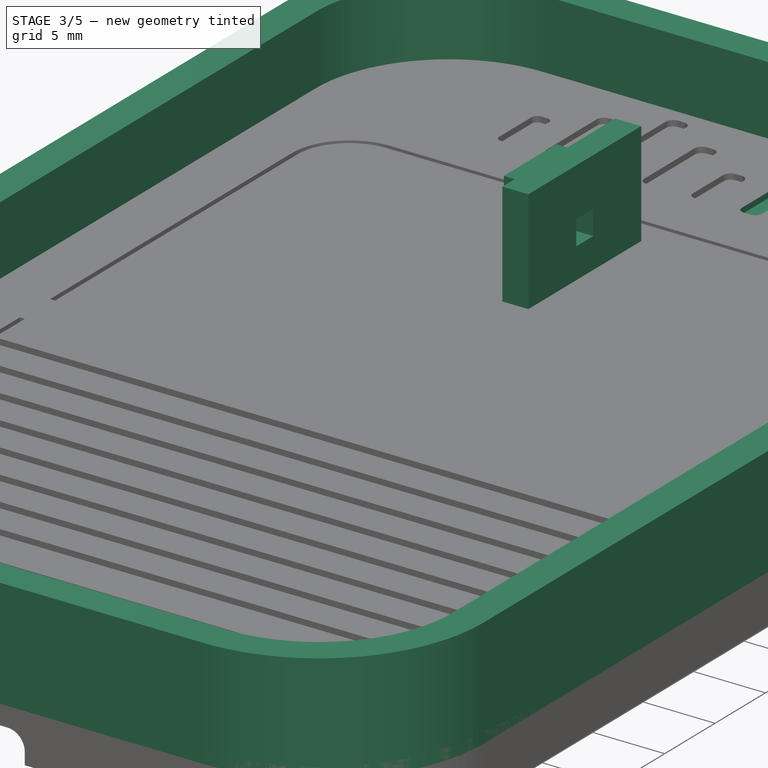
[diagram: stage 3 of 5 — iso view after this stage's code; geometry added in this stage tinted green]
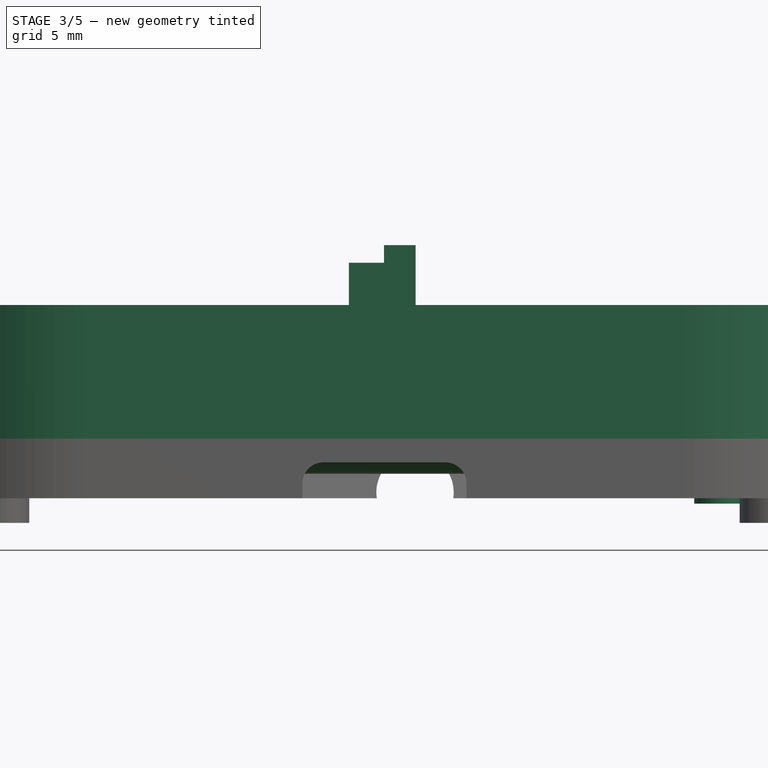
[diagram: stage 3 of 5 — front view after this stage's code; geometry added in this stage tinted green]
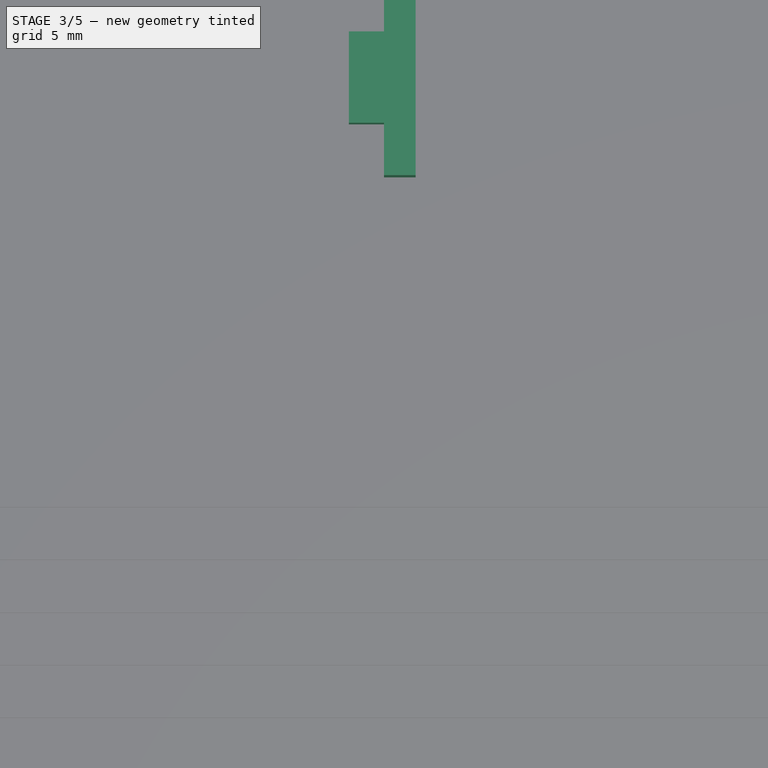
[diagram: stage 3 of 5 — top view after this stage's code; geometry added in this stage tinted green]
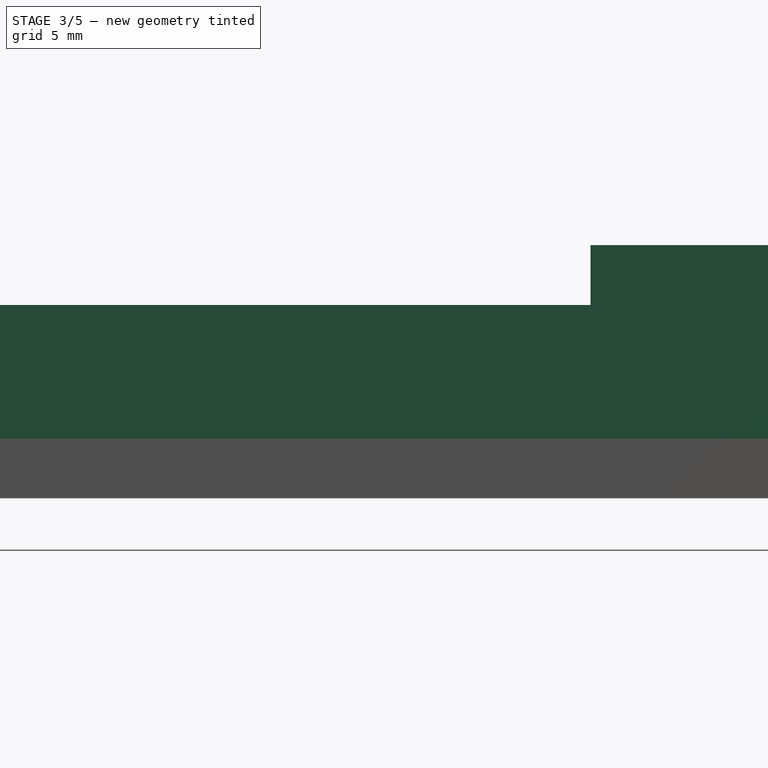
[diagram: stage 3 of 5 — right view after this stage's code; geometry added in this stage tinted green]
FEATURE [Sketcher::SketchObject] Sketch
  ArcFitTolerance = 1e-06
  AttachmentOffset = pos=(0,0,9.6) rot=(0,0,1;0rad)
  AttachmentSupport = -> [XY_Plane009]
  ExternalTypes = [0]
  FullyConstrained = true
  MakeInternals = false
  MapMode = 5
  Placement = pos=(0,0,9.6) rot=(0,0,1;0rad)
  _ExternalGeoVersion = 0
  expr: .AttachmentOffset.Base.z = <<vars>>.bottom_height
  expr: Constraints[48] = <<vars>>.lip_thickness
  expr: Constraints[53] = <<vars>>.length
  expr: Constraints[54] = <<vars>>.width
  expr: Constraints[68] = <<vars>>.corner_rad
  expr: Constraints[81] = <<vars>>.wall_width
  expr: Constraints[82] = <<vars>>.wall_length
  sketch-geometry (36):
    g0: LineSegment StartX=-27.2 StartY=30.85 StartZ=0 EndX=-27.2 EndY=-30.85 EndZ=0
    g1: LineSegment StartX=-17.1 StartY=-40.95 StartZ=0 EndX=17.1 EndY=-40.95 EndZ=0
    g2: LineSegment StartX=27.2 StartY=-30.85 StartZ=0 EndX=27.2 EndY=30.85 EndZ=0
    g3: LineSegment StartX=17.1 StartY=40.95 StartZ=0 EndX=-17.1 EndY=40.95 EndZ=0
    g4: ArcOfCircle CenterX=17.1 CenterY=30.85 CenterZ=0 NormalX=0 NormalY=0 NormalZ=1 AngleXU=0 Radius=10.1 StartAngle=1e-16 EndAngle=1.5708
    g5: GeomPoint [constr] X=27.2 Y=40.95 Z=0
    g6: ArcOfCircle CenterX=17.1 CenterY=-30.85 CenterZ=0 NormalX=0 NormalY=0 NormalZ=1 AngleXU=0 Radius=10.1 StartAngle=4.71239 EndAngle=6.28319
    g7: GeomPoint [constr] X=27.2 Y=-40.95 Z=0
    g8: ArcOfCircle CenterX=-17.1 CenterY=-30.85 CenterZ=0 NormalX=0 NormalY=0 NormalZ=1 AngleXU=0 Radius=10.1 StartAngle=3.14159 EndAngle=4.71239
    g9: GeomPoint [constr] X=-27.2 Y=-40.95 Z=0
    g10: ArcOfCircle CenterX=-17.1 CenterY=30.85 CenterZ=0 NormalX=0 NormalY=0 NormalZ=1 AngleXU=0 Radius=10.1 StartAngle=1.5708 EndAngle=3.14159
    g11: GeomPoint [constr] X=-27.2 Y=40.95 Z=0
    g12: LineSegment StartX=-26.4 StartY=30.85 StartZ=0 EndX=-26.4 EndY=-30.85 EndZ=0
    g13: LineSegment StartX=-17.1 StartY=-40.15 StartZ=0 EndX=17.1 EndY=-40.15 EndZ=0
    g14: LineSegment StartX=26.4 StartY=-30.85 StartZ=0 EndX=26.4 EndY=30.85 EndZ=0
    g15: LineSegment StartX=17.1 StartY=40.15 StartZ=0 EndX=-17.1 EndY=40.15 EndZ=0
    g16: ArcOfCircle CenterX=17.1 CenterY=30.85 CenterZ=0 NormalX=0 NormalY=0 NormalZ=1 AngleXU=0 Radius=9.3 StartAngle=1e-16 EndAngle=1.5708
    g17: GeomPoint [constr] X=26.4 Y=40.15 Z=0
    g18: ArcOfCircle CenterX=-17.1 CenterY=30.85 CenterZ=0 NormalX=0 NormalY=0 NormalZ=1 AngleXU=0 Radius=9.3 StartAngle=1.5708 EndAngle=3.14159
    g19: GeomPoint [constr] X=-26.4 Y=40.15 Z=0
    g20: ArcOfCircle CenterX=-17.1 CenterY=-30.85 CenterZ=0 NormalX=0 NormalY=0 NormalZ=1 AngleXU=0 Radius=9.3 StartAngle=3.14159 EndAngle=4.71239
    g21: GeomPoint [constr] X=-26.4 Y=-40.15 Z=0
    g22: ArcOfCircle CenterX=17.1 CenterY=-30.85 CenterZ=0 NormalX=0 NormalY=0 NormalZ=1 AngleXU=0 Radius=9.3 StartAngle=4.71239 EndAngle=6.28319
    g23: GeomPoint [constr] X=26.4 Y=-40.15 Z=0
    g24: LineSegment [constr] StartX=-28.6 StartY=30.85 StartZ=0 EndX=-28.6 EndY=-30.85 EndZ=0
    g25: LineSegment [constr] StartX=-17.1 StartY=-42.35 StartZ=0 EndX=17.1 EndY=-42.35 EndZ=0
    g26: LineSegment [constr] StartX=28.6 StartY=-30.85 StartZ=0 EndX=28.6 EndY=30.85 EndZ=0
    g27: LineSegment [constr] StartX=17.1 StartY=42.35 StartZ=0 EndX=-17.1 EndY=42.35 EndZ=0
    g28: ArcOfCircle [constr] CenterX=17.1 CenterY=30.85 CenterZ=0 NormalX=0 NormalY=0 NormalZ=1 AngleXU=0 Radius=11.5 StartAngle=0 EndAngle=1.5708
    g29: GeomPoint [constr] X=28.6 Y=42.35 Z=0
    g30: ArcOfCircle [constr] CenterX=-17.1 CenterY=30.85 CenterZ=0 NormalX=0 NormalY=0 NormalZ=1 AngleXU=0 Radius=11.5 StartAngle=1.5708 EndAngle=3.14159
    g31: GeomPoint [constr] X=-28.6 Y=42.35 Z=0
    g32: ArcOfCircle [constr] CenterX=-17.1 CenterY=-30.85 CenterZ=0 NormalX=0 NormalY=0 NormalZ=1 AngleXU=0 Radius=11.5 StartAngle=3.14159 EndAngle=4.71239
    g33: GeomPoint [constr] X=-28.6 Y=-42.35 Z=0
    g34: ArcOfCircle [constr] CenterX=17.1 CenterY=-30.85 CenterZ=0 NormalX=0 NormalY=0 NormalZ=1 AngleXU=0 Radius=11.5 StartAngle=4.71239 EndAngle=6.28319
    g35: GeomPoint [constr] X=28.6 Y=-42.35 Z=0
  constraints (83):
    c: Vertical(g0)
    c: Vertical(g2)
    c: Horizontal(g1)
    c: Horizontal(g3)
    c: PointOnObject(g5,g2)
    c: PointOnObject(g5,g3)
    c: Tangent(g2,g4) = -1.5708
    c: Tangent(g3,g4) = -1.5708
    c: PointOnObject(g7,g1)
    c: PointOnObject(g7,g2)
    c: Tangent(g1,g6) = -1.5708
    c: Tangent(g2,g6) = -1.5708
    c: PointOnObject(g9,g0)
    c: PointOnObject(g9,g1)
    c: Tangent(g0,g8) = -1.5708
    c: Tangent(g1,g8) = -1.5708
    c: PointOnObject(g11,g0)
    c: PointOnObject(g11,g3)
    c: Tangent(g0,g10) = -1.5708
    c: Tangent(g3,g10) = -1.5708
    c: Equal(g4,g10)
    c: Equal(g8,g10)
    c: Equal(g6,g8)
    c: Vertical(g12)
    c: Vertical(g14)
    c: Horizontal(g13)
    c: Horizontal(g15)
    c: PointOnObject(g17,g15)
    c: PointOnObject(g17,g14)
    c: Tangent(g15,g16) = -1.5708
    c: Tangent(g14,g16) = -1.5708
    c: PointOnObject(g19,g12)
    c: PointOnObject(g19,g15)
    c: Tangent(g12,g18) = -1.5708
    c: Tangent(g15,g18) = -1.5708
    c: PointOnObject(g21,g12)
    c: PointOnObject(g21,g13)
    c: Tangent(g12,g20) = -1.5708
    c: Tangent(g13,g20) = -1.5708
    c: PointOnObject(g23,g13)
    c: PointOnObject(g23,g14)
    c: Tangent(g13,g22) = -1.5708
    c: Tangent(g14,g22) = -1.5708
    c: Vertical(g15,g3)
    c: Vertical(g13,g1)
    c: Horizontal(g14,g2)
    c: Vertical(g13,g1)
    c: Vertical(g15,g3)
    c: Distance(g14,g2) = 0.8
    c: Vertical(g24)
    c: Vertical(g26)
    c: Horizontal(g25)
    c: Horizontal(g27)
    c: DistanceY(g35,g29) = 84.7
    c: DistanceX(g31,g29) = 57.2
    c: Symmetric(g29,g33,g-1)
    c: PointOnObject(g29,g26)
    c: PointOnObject(g29,g27)
    c: Tangent(g26,g28) = -1.5708
    c: Tangent(g27,g28) = -1.5708
    c: PointOnObject(g31,g24)
    c: PointOnObject(g31,g27)
    c: Tangent(g24,g30) = -1.5708
    c: Tangent(g27,g30) = -1.5708
    c: PointOnObject(g33,g24)
    c: PointOnObject(g33,g25)
    c: Tangent(g24,g32) = -1.5708
    c: Tangent(g25,g32) = -1.5708
    c: Radius(g30) = 11.5
    c: Equal(g30,g28)
    c: PointOnObject(g35,g25)
    c: PointOnObject(g35,g26)
    c: Tangent(g25,g34) = -1.5708
    c: Tangent(g26,g34) = -1.5708
    c: Equal(g34,g32)
    c: Equal(g34,g28)
    c: Vertical(g27,g15)
    c: Horizontal(g0,g24)
    c: Horizontal(g12,g0)
    c: Vertical(g1,g25)
    c: Horizontal(g14,g2)
    c: DistanceX(g19,g17) = 52.8
    c: DistanceY(g23,g17) = 80.3
FEATURE [Sketcher::SketchObject] Sketch044
  ArcFitTolerance = 1e-06
  AttachmentSupport = -> [XY_Plane009]
  ExternalTypes = [0]
  FullyConstrained = true
  MakeInternals = false
  MapMode = 5
  _ExternalGeoVersion = 0
  expr: Constraints[22] = <<vars>>.width
  expr: Constraints[23] = <<vars>>.length
  expr: Constraints[24] = <<vars>>.corner_rad
  sketch-geometry (11):
    g0: LineSegment StartX=-28.6 StartY=30.85 StartZ=0 EndX=-28.6 EndY=-30.85 EndZ=0
    g1: LineSegment StartX=-17.1 StartY=-42.35 StartZ=0 EndX=17.1 EndY=-42.35 EndZ=0
    g2: LineSegment StartX=28.6 StartY=-30.85 StartZ=0 EndX=28.6 EndY=30.85 EndZ=0
    g3: LineSegment StartX=17.1 StartY=42.35 StartZ=0 EndX=-17.1 EndY=42.35 EndZ=0
    g4: ArcOfCircle CenterX=-17.1 CenterY=30.85 CenterZ=0 NormalX=0 NormalY=0 NormalZ=1 AngleXU=0 Radius=11.5 StartAngle=1.5708 EndAngle=3.14159
    g5: ArcOfCircle CenterX=-17.1 CenterY=-30.85 CenterZ=0 NormalX=0 NormalY=0 NormalZ=1 AngleXU=0 Radius=11.5 StartAngle=3.14159 EndAngle=4.71239
    g6: ArcOfCircle CenterX=17.1 CenterY=-30.85 CenterZ=0 NormalX=0 NormalY=0 NormalZ=1 AngleXU=0 Radius=11.5 StartAngle=4.71239 EndAngle=6.28319
    g7: ArcOfCircle CenterX=17.1 CenterY=30.85 CenterZ=0 NormalX=0 NormalY=0 NormalZ=1 AngleXU=0 Radius=11.5 StartAngle=0 EndAngle=1.5708
    g8: GeomPoint [constr] X=-28.6 Y=42.35 Z=0
    g9: GeomPoint [constr] X=28.6 Y=-42.35 Z=0
    g10: GeomPoint [constr] X=28.6 Y=42.35 Z=0
  constraints (25):
    c: Tangent(g0,g4) = -1.5708
    c: Tangent(g0,g5) = -1.5708
    c: Tangent(g1,g5) = -1.5708
    c: Tangent(g1,g6) = -1.5708
    c: Tangent(g2,g6) = -1.5708
    c: Tangent(g2,g7) = -1.5708
    c: Tangent(g3,g7) = -1.5708
    c: Tangent(g3,g4) = -1.5708
    c: Vertical(g0)
    c: Vertical(g2)
    c: Horizontal(g1)
    c: Horizontal(g3)
    c: Equal(g4,g5)
    c: Equal(g5,g6)
    c: Equal(g6,g7)
    c: PointOnObject(g8,g0)
    c: PointOnObject(g8,g3)
    c: PointOnObject(g9,g1)
    c: PointOnObject(g9,g2)
    c: Symmetric(g7,g5,g-1)
    c: Vertical(g2,g10)
    c: Horizontal(g10,g3)
    c: DistanceX(g8,g10) = 57.2
    c: DistanceY(g9,g10) = 84.7
    c: Radius(g4) = 11.5
FEATURE [PartDesign::Pad] Pad021  label="base-pad"
  Direction = (0,0,1)
  Length = 9.6
  Length2 = 10
  Profile = -> Sketch044
  ReferenceAxis = -> Sketch044 [N_Axis]
  Refine = true
  SideType = 0
  Suppressed = false
  Type = 0
  Type2 = 0
  expr: Length = <<vars>>.bottom_height
FEATURE [Sketcher::SketchObject] Sketch058
  ArcFitTolerance = 1e-06
  AttachmentSupport = -> [XY_Plane011]
  ExternalTypes = [0]
  FullyConstrained = true
  MakeInternals = false
  MapMode = 5
  _ExternalGeoVersion = 0
  expr: Constraints[51] = <<vars>>.lip_thickness / 2
  expr: Constraints[52] = <<vars>>.width
  expr: Constraints[53] = <<vars>>.length
  expr: Constraints[54] = <<vars>>.corner_rad
  sketch-geometry (24):
    g0: LineSegment StartX=-29 StartY=30.85 StartZ=0 EndX=-29 EndY=-30.85 EndZ=0
    g1: LineSegment StartX=-17.1 StartY=-42.75 StartZ=0 EndX=17.1 EndY=-42.75 EndZ=0
    g2: LineSegment StartX=29 StartY=-30.85 StartZ=0 EndX=29 EndY=30.85 EndZ=0
    g3: LineSegment StartX=17.1 StartY=42.75 StartZ=0 EndX=-17.1 EndY=42.75 EndZ=0
    g4: LineSegment StartX=-28.6 StartY=30.85 StartZ=0 EndX=-28.6 EndY=-30.85 EndZ=0
    g5: LineSegment StartX=-17.1 StartY=-42.35 StartZ=0 EndX=17.1 EndY=-42.35 EndZ=0
    g6: LineSegment StartX=28.6 StartY=-30.85 StartZ=0 EndX=28.6 EndY=30.85 EndZ=0
    g7: LineSegment StartX=17.1 StartY=42.35 StartZ=0 EndX=-17.1 EndY=42.35 EndZ=0
    g8: ArcOfCircle CenterX=-17.1 CenterY=30.85 CenterZ=0 NormalX=0 NormalY=0 NormalZ=1 AngleXU=0 Radius=11.9 StartAngle=1.5708 EndAngle=3.14159
    g9: GeomPoint [constr] X=-29 Y=42.75 Z=0
    g10: ArcOfCircle CenterX=17.1 CenterY=30.85 CenterZ=0 NormalX=0 NormalY=0 NormalZ=1 AngleXU=0 Radius=11.9 StartAngle=0 EndAngle=1.5708
    g11: GeomPoint [constr] X=29 Y=42.75 Z=0
    g12: ArcOfCircle CenterX=17.1 CenterY=-30.85 CenterZ=0 NormalX=0 NormalY=0 NormalZ=1 AngleXU=0 Radius=11.9 StartAngle=4.71239 EndAngle=6.28319
    g13: GeomPoint [constr] X=29 Y=-42.75 Z=0
    g14: ArcOfCircle CenterX=-17.1 CenterY=-30.85 CenterZ=0 NormalX=0 NormalY=0 NormalZ=1 AngleXU=0 Radius=11.9 StartAngle=3.14159 EndAngle=4.71239
    g15: GeomPoint [constr] X=-29 Y=-42.75 Z=0
    g16: ArcOfCircle CenterX=-17.1 CenterY=30.85 CenterZ=0 NormalX=0 NormalY=0 NormalZ=1 AngleXU=0 Radius=11.5 StartAngle=1.5708 EndAngle=3.14159
    g17: GeomPoint [constr] X=-28.6 Y=42.35 Z=0
    g18: ArcOfCircle CenterX=17.1 CenterY=30.85 CenterZ=0 NormalX=0 NormalY=0 NormalZ=1 AngleXU=0 Radius=11.5 StartAngle=7.61e-14 EndAngle=1.5708
    g19: GeomPoint [constr] X=28.6 Y=42.35 Z=0
    g20: ArcOfCircle CenterX=17.1 CenterY=-30.85 CenterZ=0 NormalX=0 NormalY=0 NormalZ=1 AngleXU=0 Radius=11.5 StartAngle=4.71239 EndAngle=6.28319
    g21: GeomPoint [constr] X=28.6 Y=-42.35 Z=0
    g22: ArcOfCircle CenterX=-17.1 CenterY=-30.85 CenterZ=0 NormalX=0 NormalY=0 NormalZ=1 AngleXU=0 Radius=11.5 StartAngle=3.14159 EndAngle=4.71239
    g23: GeomPoint [constr] X=-28.6 Y=-42.35 Z=0
  constraints (55):
    c: Vertical(g0)
    c: Vertical(g2)
    c: Horizontal(g1)
    c: Horizontal(g3)
    c: Vertical(g4)
    c: Vertical(g6)
    c: Horizontal(g5)
    c: Horizontal(g7)
    c: Symmetric(g9,g13,g-1)
    c: PointOnObject(g9,g0)
    c: PointOnObject(g9,g3)
    c: Tangent(g0,g8) = -1.5708
    c: Tangent(g3,g8) = -1.5708
    c: PointOnObject(g11,g2)
    c: PointOnObject(g11,g3)
    c: Tangent(g2,g10) = -1.5708
    c: Tangent(g3,g10) = -1.5708
    c: PointOnObject(g13,g1)
    c: PointOnObject(g13,g2)
    c: Tangent(g1,g12) = -1.5708
    c: Tangent(g2,g12) = -1.5708
    c: PointOnObject(g15,g0)
    c: PointOnObject(g15,g1)
    c: Tangent(g0,g14) = -1.5708
    c: Tangent(g1,g14) = -1.5708
    c: Equal(g8,g10)
    c: Equal(g10,g12)
    c: Equal(g14,g8)
    c: PointOnObject(g17,g4)
    c: PointOnObject(g17,g7)
    c: Tangent(g4,g16) = -1.5708
    c: Tangent(g7,g16) = -1.5708
    c: PointOnObject(g19,g6)
    c: PointOnObject(g19,g7)
    c: Tangent(g6,g18) = -1.5708
    c: Tangent(g7,g18) = -1.5708
    c: PointOnObject(g21,g5)
    c: PointOnObject(g21,g6)
    c: Tangent(g5,g20) = -1.5708
    c: Tangent(g6,g20) = -1.5708
    c: PointOnObject(g23,g4)
    c: PointOnObject(g23,g5)
    c: Tangent(g4,g22) = -1.5708
    c: Tangent(g5,g22) = -1.5708
    c: Vertical(g7,g3)
    c: Horizontal(g4,g0)
    c: Vertical(g7,g3)
    c: Horizontal(g6,g2)
    c: Horizontal(g6,g2)
    c: Vertical(g1,g5)
    c: Vertical(g5,g1)
    c: DistanceX(g0,g4) = 0.4
    c: DistanceX(g17,g19) = 57.2
    c: DistanceY(g23,g17) = 84.7
    c: Radius(g16) = 11.5
FEATURE [PartDesign::Fillet] Fillet005
  Base = -> Pad021 [Face9]
  BaseFeature = -> Pad021
  Radius = 2
  Refine = true
  SupportTransform = false
  Suppressed = false
  UseAllEdges = false
FEATURE [PartDesign::Pocket] Pocket020  label="hollow-pocket"
  BaseFeature = -> Fillet005
  Direction = (0,0,-1)
  Length = 7.95
  Length2 = 5
  Profile = -> Sketch045
  ReferenceAxis = -> Sketch045 [N_Axis]
  Refine = true
  SideType = 0
  Suppressed = false
  Type = 0
  Type2 = 0
  UseCustomVector = true
  expr: Length = <<vars>>.bottom_depth
FEATURE [PartDesign::Mirrored] Mirrored
  BaseFeature = -> Pocket039
  MirrorPlane = -> Sketch130 [V_Axis]
  Originals = -> [Pocket053]
  Refine = true
  Suppressed = false
  TransformMode = 0
FEATURE [PartDesign::Pad] Pad065  label="base-pad002"
  Direction = (1,0,0)
  Length = 1.8
  Length2 = 10
  Profile = -> Sketch132
  ReferenceAxis = -> Sketch132 [N_Axis]
  Refine = true
  SideType = 0
  Suppressed = false
  Type = 0
  Type2 = 0
  expr: Length = VarSet001.power_switch_thickness
FEATURE [Sketcher::SketchObject] Sketch135
  ArcFitTolerance = 1e-06
  AttachmentOffset = pos=(0,0,1.8) rot=(0,0,1;0rad)
  AttachmentSupport = -> [Origin]
  ExternalGeometry = -> [Pad065,Binder017]
  ExternalTypes = [0,0]
  FullyConstrained = true
  MakeInternals = false
  MapMode = 5
  Placement = pos=(1.8,0,0) rot=(0.57735,0.57735,0.57735;2.0944rad)
  _ExternalGeoVersion = 1
  expr: .AttachmentOffset.Base.z = <<vars>>.power_switch_thickness
  expr: Constraints[8] = VarSet001.power_switch_stem_pocket_sz
  expr: Constraints[9] = <<vars>>.power_switch_stem_pocket_sz
  sketch-geometry (6):
    g0: LineSegment StartX=18.1989 StartY=9.625 StartZ=0 EndX=16.4989 EndY=9.625 EndZ=0
    g1: LineSegment StartX=16.4989 StartY=9.625 StartZ=0 EndX=16.4989 EndY=7.925 EndZ=0
    g2: LineSegment StartX=16.4989 StartY=7.925 StartZ=0 EndX=18.1989 EndY=7.925 EndZ=0
    g3: LineSegment StartX=18.1989 StartY=7.925 StartZ=0 EndX=18.1989 EndY=9.625 EndZ=0
    g4: GeomPoint [constr] X=17.3489 Y=9.625 Z=0
    g5: GeomPoint [constr] X=17.3489 Y=9.425 Z=0
  constraints (14):
    c: Coincident(g0,g1)
    c: Coincident(g1,g2)
    c: Coincident(g2,g3)
    c: Coincident(g3,g0)
    c: Horizontal(g0)
    c: Horizontal(g2)
    c: Vertical(g1)
    c: Vertical(g3)
    c: DistanceX(g0,g0) = 1.7
    c: DistanceY(g1,g1) = 1.7
    c: Symmetric(g0,g0,g4)
    c: Symmetric(g-7,g-7,g5)
    c: Vertical(g4,g5)
    c: Distance(g0,g-7) = 0.2
FEATURE [PartDesign::Pocket] Pocket058
  BaseFeature = -> Pad065
  Direction = (-1,0,0)
  Length = 1.6
  Length2 = 5
  Profile = -> Sketch135
  ReferenceAxis = -> Sketch135 [N_Axis]
  Refine = true
  SideType = 0
  Suppressed = false
  Type = 0
  Type2 = 0
FEATURE [Sketcher::SketchObject] Sketch136
  ArcFitTolerance = 1e-06
  AttachmentSupport = -> [Origin]
  ExternalGeometry = -> [Pocket058,Binder017]
  ExternalTypes = [0,0]
  FullyConstrained = true
  MakeInternals = false
  MapMode = 5
  Placement = pos=(0,0,0) rot=(0.57735,0.57735,0.57735;2.0944rad)
  _ExternalGeoVersion = 1
  expr: Constraints[13] = <<vars>>.power_switch_knob_width
  expr: Constraints[8] = <<vars>>.power_switch_knob_width
  sketch-geometry (8):
    g0: LineSegment StartX=19.9489 StartY=12.005 StartZ=0 EndX=14.7489 EndY=12.005 EndZ=0
    g1: LineSegment StartX=14.7489 StartY=12.005 StartZ=0 EndX=14.7489 EndY=6.805 EndZ=0
    g2: LineSegment StartX=14.7489 StartY=6.805 StartZ=0 EndX=19.9489 EndY=6.805 EndZ=0
    g3: LineSegment StartX=19.9489 StartY=6.805 StartZ=0 EndX=19.9489 EndY=12.005 EndZ=0
    g4: GeomPoint [constr] X=11.7489 Y=9.405 Z=0
    g5: GeomPoint [constr] X=14.7489 Y=9.405 Z=0
    g6: GeomPoint [constr] X=17.3489 Y=12.005 Z=0
    g7: GeomPoint [constr] X=17.3489 Y=9.425 Z=0
  constraints (16):
    c: Coincident(g0,g1)
    c: Coincident(g1,g2)
    c: Coincident(g2,g3)
    c: Coincident(g3,g0)
    c: Horizontal(g0)
    c: Horizontal(g2)
    c: Vertical(g1)
    c: Vertical(g3)
    c: DistanceY(g1,g1) = 5.2
    c: Symmetric(g-4,g-4,g4)
    c: Symmetric(g1,g1,g5)
    c: Horizontal(g4,g5)
    c: Symmetric(g0,g0,g6)
    c: DistanceX(g0,g0) = 5.2
    c: Symmetric(g-7,g-7,g7)
    c: Vertical(g7,g6)
FEATURE [PartDesign::Pad] Pad066
  BaseFeature = -> Pocket058
  Direction = (1,0,0)
  Length = 2
  Length2 = 10
  Profile = -> Sketch136
  ReferenceAxis = -> Sketch136 [N_Axis]
  Refine = true
  Reversed = true
  SideType = 0
  Suppressed = false
  Type = 0
  Type2 = 0
FEATURE [PartDesign::Body] Body019  label="power-switch"
  AllowCompound = true
  Group = -> [Binder017,Sketch132,Pad065,Sketch135,Pocket058,Sketch136,Pad066]
  Origin = -> Origin
  Placement = pos=(-27.48,0,0) rot=(0,0,1;0rad)
  Tip = -> Pad066
  expr: .Placement.Base.x = -(<<vars>>.wall_width / 2 + <<vars>>.lip_actual_thickness - 0.1 mm)
FEATURE [Part::Feature] Part__Feature037  label="LED-ARRAY-SMD_4P-L1.6-W1.5-TL_NH-B1515RGBA001"
  Placement = pos=(94.72,-36.76,2.5) rot=(0,0,1;0rad)
  shape: bbox 1.6 x 1.5 x 1 mm, 359 faces, 4 solids (baked)
FEATURE [Part::Feature] Part__Feature038  label="LED-ARRAY-SMD_4P-L1.6-W1.5-TL_NH-B1515RGBA002"
  Placement = pos=(94.72,-40.24,2.5) rot=(0,0,1;0rad)
  shape: bbox 1.6 x 1.5 x 1 mm, 359 faces, 4 solids (baked)
FEATURE [App::Part] ev17_1  label="ev17"
  Group = -> [Part__Feature025,SW_SMD_MK_12C02_G020,Part__Feature028,Part__Feature029,Part__Feature030,Part__Feature031,Part__Feature032,Part__Feature033,Part__Feature034,Part__Feature035,Part__Feature037,Part__Feature038]
  Origin = -> Origin033
  Placement = pos=(-75.6,70,6.6) rot=(0,0,1;0rad)
  expr: .Placement.Base.z = <<vars>>.pcb_z_offset
FEATURE [Sketcher::SketchObject] Sketch137
  ArcFitTolerance = 1e-06
  AttachmentOffset = pos=(0,0,4.8) rot=(0,0,1;0rad)
  AttachmentSupport = -> [Origin011]
  ExternalGeometry = -> [Binder016]
  ExternalTypes = [0,0]
  FullyConstrained = true
  MakeInternals = false
  MapMode = 5
  Placement = pos=(0,0,4.8) rot=(0,0,1;0rad)
  _ExternalGeoVersion = 1
  expr: .AttachmentOffset.Base.z = <<vars>>.top_height
  sketch-geometry (4):
    g0: GeomPoint [constr] X=19.12 Y=33.24 Z=0
    g1: GeomPoint [constr] X=19.12 Y=29.76 Z=0
    g2: Circle CenterX=19.12 CenterY=33.24 CenterZ=0 NormalX=0 NormalY=0 NormalZ=1 AngleXU=0 Radius=0.715005
    g3: Circle CenterX=19.12 CenterY=29.76 CenterZ=0 NormalX=0 NormalY=0 NormalZ=1 AngleXU=0 Radius=0.715005
  constraints (7):
    c: Symmetric(g-14,g-15,g1)
    c: Symmetric(g-5,g-6,g0)
    c: Coincident(g2,g0)
    c: Tangent(g2,g-7)
    c: Coincident(g3,g1)
    c: Tangent(g3,g-16)
    c: Diameter(g2) = 1.43001
FEATURE [PartDesign::Pocket] Pocket059  label="led-pockets"
  BaseFeature = -> Mirrored
  Direction = (0,0,-1)
  Length = 2.8
  Length2 = 5
  Profile = -> Sketch137
  ReferenceAxis = -> Sketch137 [N_Axis]
  Refine = true
  SideType = 0
  Suppressed = false
  Type = 0
  Type2 = 0
  expr: Length = <<vars>>.top_depth
FEATURE [Sketcher::SketchObject] Sketch138
  ArcFitTolerance = 1e-06
  AttachmentOffset = pos=(0,0,2.8) rot=(0,0,1;0rad)
  AttachmentSupport = -> [Origin011]
  ExternalGeometry = -> [Pocket059]
  ExternalTypes = [0,0]
  FullyConstrained = true
  MakeInternals = false
  MapMode = 5
  Placement = pos=(0,0,2.8) rot=(0,0,1;0rad)
  _ExternalGeoVersion = 1
  expr: .AttachmentOffset.Base.z = <<vars>>.top_depth
  sketch-geometry (2):
    g0: Circle CenterX=19.12 CenterY=33.24 CenterZ=0 NormalX=0 NormalY=0 NormalZ=1 AngleXU=0 Radius=1.465
    g1: Circle CenterX=19.12 CenterY=29.76 CenterZ=0 NormalX=0 NormalY=0 NormalZ=1 AngleXU=0 Radius=1.465
  constraints (5):
    c: Coincident(g0,g-3)
    c: Coincident(g1,g-4)
    c: Diameter(g-4) = 1.43001
    c: Diameter(g0) = 2.93
    c: Equal(g0,g1)
FEATURE [PartDesign::Pad] Pad067
  BaseFeature = -> Pocket059
  Direction = (0,0,1)
  Length = 4.5
  Length2 = 10
  Profile = -> Sketch138
  ReferenceAxis = -> Sketch138 [N_Axis]
  Refine = true
  Reversed = true
  SideType = 0
  Suppressed = false
  Type = 0
  Type2 = 0
FEATURE [PartDesign::Body] Body  label="top"
  AllowCompound = false
  Group = -> [Sketch053,Pad024,Fillet001,Pocket025,Sketch054,Sketch057,Pad025,Sketch058,Pocket057,Sketch092,Sketch093,Sketch110,Sketch111,Sketch113,Pocket050,Sketch123,Sketch124,Pocket051,Binder016,Sketch125,Pad060,Sketch129,Pocket052,Sketch130,Pocket053,Pocket045,Pocket044,Pocket046,Sketch112,Pocket055,Sketch133,Pocket047,Pad048,Pocket039,Mirrored,Sketch137,Pocket059,Sketch138,Pad067]
  Origin = -> Origin011
  Placement = pos=(0,0,11) rot=(0,0,1;0rad)
  Tip = -> Pad067
  expr: .Placement.Base.z = <<vars>>.bottom_height + <<vars>>.lip_height
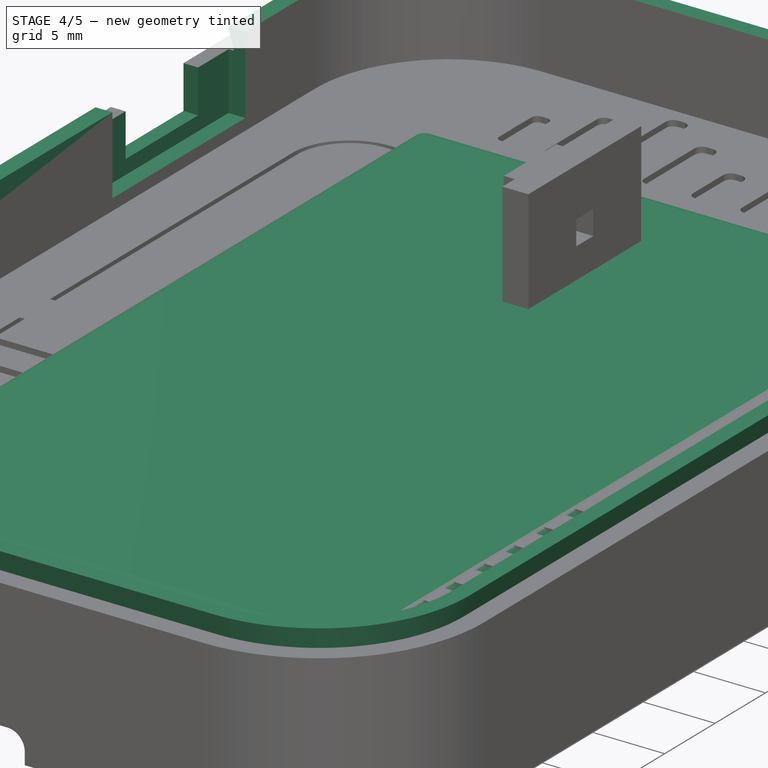
[diagram: stage 4 of 5 — iso view after this stage's code; geometry added in this stage tinted green]
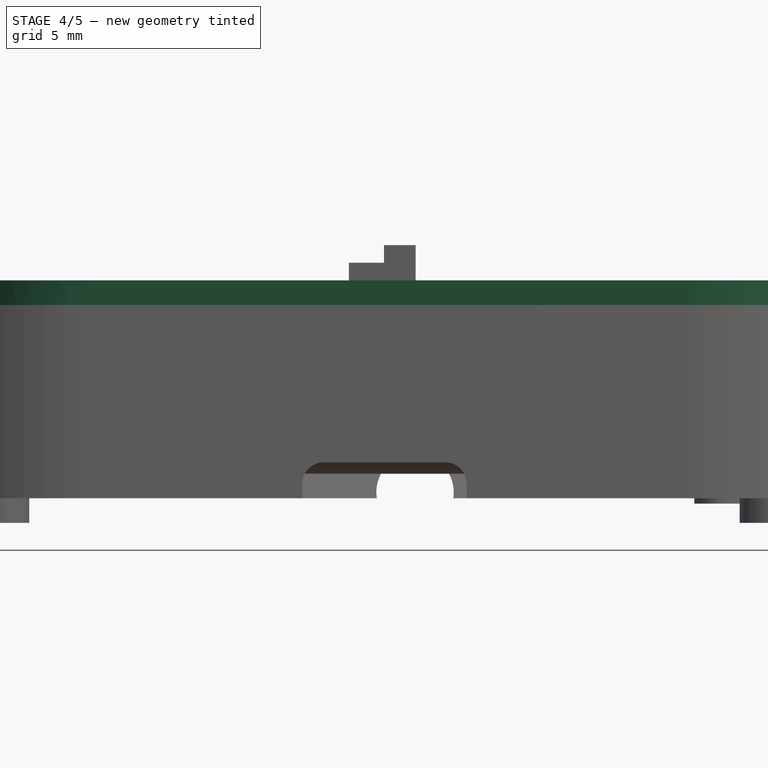
[diagram: stage 4 of 5 — front view after this stage's code; geometry added in this stage tinted green]
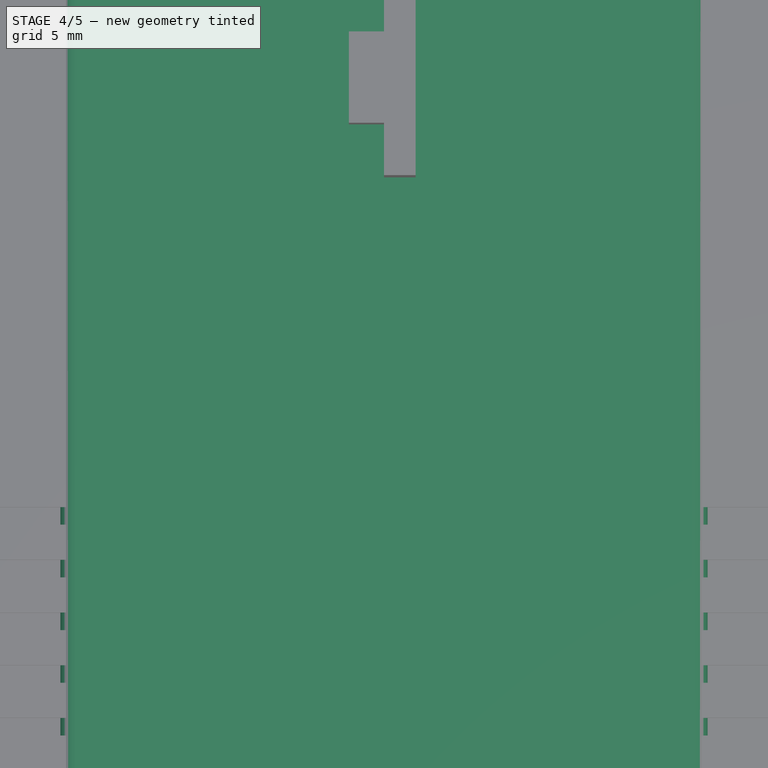
[diagram: stage 4 of 5 — top view after this stage's code; geometry added in this stage tinted green]
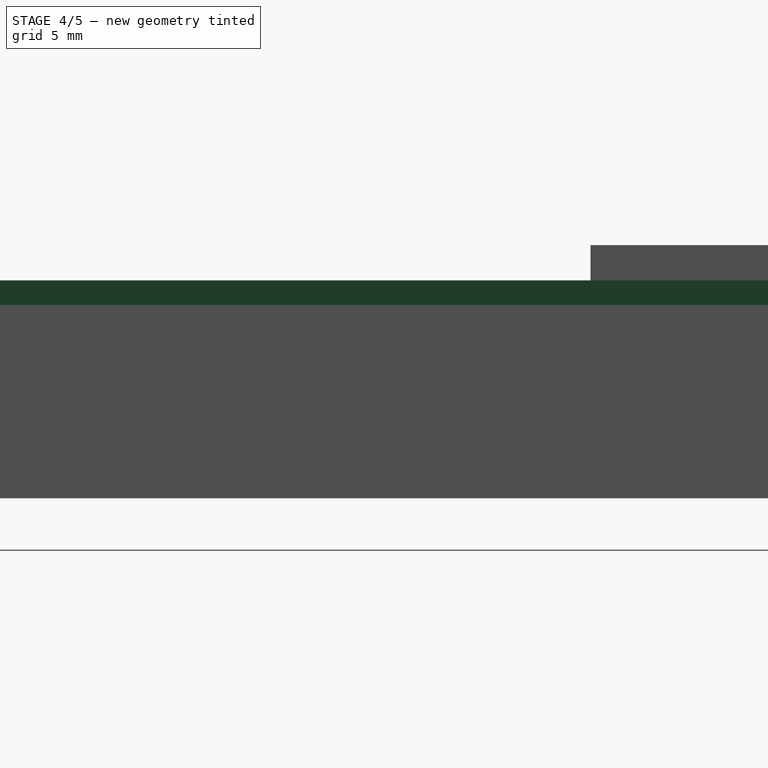
[diagram: stage 4 of 5 — right view after this stage's code; geometry added in this stage tinted green]
FEATURE [PartDesign::Pad] Pad  label="lip-angle"
  BaseFeature = -> Pocket020
  Direction = (0,0,1)
  Length = 1.4
  Length2 = 10
  Profile = -> Sketch
  ReferenceAxis = -> Sketch [N_Axis]
  Refine = true
  SideType = 0
  Suppressed = false
  TaperAngle = 14.85
  Type = 0
  Type2 = 0
  expr: Length = <<vars>>.lip_height
  expr: TaperAngle = <<vars>>.lip_angle
FEATURE [Sketcher::SketchObject] Sketch046
  ArcFitTolerance = 1e-06
  AttachmentOffset = pos=(0,0,9.6) rot=(0,0,1;0rad)
  AttachmentSupport = -> [XY_Plane009]
  ExternalGeometry = -> [Pad]
  ExternalTypes = [0]
  FullyConstrained = true
  MakeInternals = false
  MapMode = 5
  Placement = pos=(0,0,9.6) rot=(0,0,1;0rad)
  _ExternalGeoVersion = 0
  expr: .AttachmentOffset.Base.z = <<vars>>.bottom_height
  expr: Constraints[21] = <<vars>>.wall_width - <<vars>>.lip_thickness * 2
  expr: Constraints[4] = <<vars>>.wall_length - <<vars>>.lip_thickness * 2
  expr: Constraints[52] = <<vars>>.lip_thickness
  expr: Constraints[57] = <<vars>>.width
  expr: Constraints[58] = <<vars>>.length
  expr: Constraints[64] = <<vars>>.corner_rad
  sketch-geometry (36):
    g0: LineSegment StartX=-25.6 StartY=30.85 StartZ=0 EndX=-25.6 EndY=-30.85 EndZ=0
    g1: LineSegment StartX=-17.1 StartY=-39.35 StartZ=0 EndX=17.1 EndY=-39.35 EndZ=0
    g2: LineSegment StartX=25.6 StartY=-30.85 StartZ=0 EndX=25.6 EndY=30.85 EndZ=0
    g3: LineSegment StartX=17.1 StartY=39.35 StartZ=0 EndX=-17.1 EndY=39.35 EndZ=0
    g4: ArcOfCircle CenterX=17.1 CenterY=30.85 CenterZ=0 NormalX=0 NormalY=0 NormalZ=1 AngleXU=0 Radius=8.5 StartAngle=1e-16 EndAngle=1.5708
    g5: GeomPoint [constr] X=25.6 Y=39.35 Z=0
    g6: ArcOfCircle CenterX=17.1 CenterY=-30.85 CenterZ=0 NormalX=0 NormalY=0 NormalZ=1 AngleXU=0 Radius=8.5 StartAngle=4.71239 EndAngle=6.28319
    g7: GeomPoint [constr] X=25.6 Y=-39.35 Z=0
    g8: ArcOfCircle CenterX=-17.1 CenterY=-30.85 CenterZ=0 NormalX=0 NormalY=0 NormalZ=1 AngleXU=0 Radius=8.5 StartAngle=3.14159 EndAngle=4.71239
    g9: GeomPoint [constr] X=-25.6 Y=-39.35 Z=0
    g10: ArcOfCircle CenterX=-17.1 CenterY=30.85 CenterZ=0 NormalX=0 NormalY=0 NormalZ=1 AngleXU=0 Radius=8.5 StartAngle=1.5708 EndAngle=3.14159
    g11: GeomPoint [constr] X=-25.6 Y=39.35 Z=0
    g12: LineSegment StartX=-26.4 StartY=30.85 StartZ=0 EndX=-26.4 EndY=-30.85 EndZ=0
    g13: LineSegment StartX=-17.1 StartY=-40.15 StartZ=0 EndX=17.1 EndY=-40.15 EndZ=0
    g14: LineSegment StartX=26.4 StartY=-30.85 StartZ=0 EndX=26.4 EndY=30.85 EndZ=0
    g15: LineSegment StartX=17.1 StartY=40.15 StartZ=0 EndX=-17.1 EndY=40.15 EndZ=0
    g16: ArcOfCircle CenterX=17.1 CenterY=30.85 CenterZ=0 NormalX=0 NormalY=0 NormalZ=1 AngleXU=0 Radius=9.3 StartAngle=1e-16 EndAngle=1.5708
    g17: GeomPoint [constr] X=26.4 Y=40.15 Z=0
    g18: ArcOfCircle CenterX=-17.1 CenterY=30.85 CenterZ=0 NormalX=0 NormalY=0 NormalZ=1 AngleXU=0 Radius=9.3 StartAngle=1.5708 EndAngle=3.14159
    g19: GeomPoint [constr] X=-26.4 Y=40.15 Z=0
    g20: ArcOfCircle CenterX=-17.1 CenterY=-30.85 CenterZ=0 NormalX=0 NormalY=0 NormalZ=1 AngleXU=0 Radius=9.3 StartAngle=3.14159 EndAngle=4.71239
    g21: GeomPoint [constr] X=-26.4 Y=-40.15 Z=0
    g22: ArcOfCircle CenterX=17.1 CenterY=-30.85 CenterZ=0 NormalX=0 NormalY=0 NormalZ=1 AngleXU=0 Radius=9.3 StartAngle=4.71239 EndAngle=6.28319
    g23: GeomPoint [constr] X=26.4 Y=-40.15 Z=0
    g24: LineSegment [constr] StartX=-28.6 StartY=30.85 StartZ=0 EndX=-28.6 EndY=-30.85 EndZ=0
    g25: LineSegment [constr] StartX=-17.1 StartY=-42.35 StartZ=0 EndX=17.1 EndY=-42.35 EndZ=0
    g26: LineSegment [constr] StartX=28.6 StartY=-30.85 StartZ=0 EndX=28.6 EndY=30.85 EndZ=0
    g27: LineSegment [constr] StartX=17.1 StartY=42.35 StartZ=0 EndX=-17.1 EndY=42.35 EndZ=0
    g28: ArcOfCircle [constr] CenterX=-17.1 CenterY=30.85 CenterZ=0 NormalX=0 NormalY=0 NormalZ=1 AngleXU=0 Radius=11.5 StartAngle=1.5708 EndAngle=3.14159
    g29: GeomPoint [constr] X=-28.6 Y=42.35 Z=0
    g30: ArcOfCircle [constr] CenterX=17.1 CenterY=30.85 CenterZ=0 NormalX=0 NormalY=0 NormalZ=1 AngleXU=0 Radius=11.5 StartAngle=1e-16 EndAngle=1.5708
    g31: GeomPoint [constr] X=28.6 Y=42.35 Z=0
    g32: ArcOfCircle [constr] CenterX=17.1 CenterY=-30.85 CenterZ=0 NormalX=0 NormalY=0 NormalZ=1 AngleXU=0 Radius=11.5 StartAngle=4.71239 EndAngle=6.28319
    g33: GeomPoint [constr] X=28.6 Y=-42.35 Z=0
    g34: ArcOfCircle [constr] CenterX=-17.1 CenterY=-30.85 CenterZ=0 NormalX=0 NormalY=0 NormalZ=1 AngleXU=0 Radius=11.5 StartAngle=3.14159 EndAngle=4.71239
    g35: GeomPoint [constr] X=-28.6 Y=-42.35 Z=0
  constraints (83):
    c: Vertical(g0)
    c: Vertical(g2)
    c: Horizontal(g1)
    c: Horizontal(g3)
    c: DistanceY(g7,g5) = 78.7
    c: PointOnObject(g5,g2)
    c: PointOnObject(g5,g3)
    c: Tangent(g2,g4) = -1.5708
    c: Tangent(g3,g4) = -1.5708
    c: PointOnObject(g7,g1)
    c: PointOnObject(g7,g2)
    c: Tangent(g1,g6) = -1.5708
    c: Tangent(g2,g6) = -1.5708
    c: PointOnObject(g9,g0)
    c: PointOnObject(g9,g1)
    c: Tangent(g0,g8) = -1.5708
    c: Tangent(g1,g8) = -1.5708
    c: PointOnObject(g11,g0)
    c: PointOnObject(g11,g3)
    c: Tangent(g0,g10) = -1.5708
    c: Tangent(g3,g10) = -1.5708
    c: DistanceX(g11,g5) = 51.2
    c: Equal(g4,g10)
    c: Equal(g8,g10)
    c: Equal(g6,g8)
    c: Vertical(g12)
    c: Vertical(g14)
    c: Horizontal(g13)
    c: Horizontal(g15)
    c: PointOnObject(g17,g15)
    c: PointOnObject(g17,g14)
    c: Tangent(g15,g16) = -1.5708
    c: Tangent(g14,g16) = -1.5708
    c: PointOnObject(g19,g12)
    c: PointOnObject(g19,g15)
    c: Tangent(g12,g18) = -1.5708
    c: Tangent(g15,g18) = -1.5708
    c: PointOnObject(g21,g12)
    c: PointOnObject(g21,g13)
    c: Tangent(g12,g20) = -1.5708
    c: Tangent(g13,g20) = -1.5708
    c: PointOnObject(g23,g13)
    c: PointOnObject(g23,g14)
    c: Tangent(g13,g22) = -1.5708
    c: Tangent(g14,g22) = -1.5708
    c: Vertical(g15,g3)
    c: Horizontal(g14,g2)
    c: Vertical(g13,g1)
    c: Horizontal(g14,g2)
    c: Vertical(g13,g1)
    c: Vertical(g15,g3)
    c: Horizontal(g0,g12)
    c: Distance(g2,g14) = 0.8
    c: Vertical(g24)
    c: Vertical(g26)
    c: Horizontal(g25)
    c: Horizontal(g27)
    c: DistanceX(g29,g31) = 57.2
    c: DistanceY(g33,g31) = 84.7
    c: Symmetric(g31,g35,g-1)
    c: PointOnObject(g29,g24)
    c: PointOnObject(g29,g27)
    c: Tangent(g24,g28) = -1.5708
    c: Tangent(g27,g28) = -1.5708
    c: Radius(g28) = 11.5
    c: PointOnObject(g31,g26)
    c: PointOnObject(g31,g27)
    c: Tangent(g26,g30) = -1.5708
    c: Tangent(g27,g30) = -1.5708
    c: PointOnObject(g33,g25)
    c: PointOnObject(g33,g26)
    c: Tangent(g25,g32) = -1.5708
    c: Tangent(g26,g32) = -1.5708
    c: PointOnObject(g35,g24)
    c: PointOnObject(g35,g25)
    c: Tangent(g24,g34) = -1.5708
    c: Tangent(g25,g34) = -1.5708
    c: Equal(g28,g30)
    c: Equal(g30,g32)
    c: Equal(g32,g34)
    c: Vertical(g15,g27)
    c: Horizontal(g12,g24)
    c: Vertical(g13,g25)
FEATURE [Sketcher::SketchObject] Sketch101
  ArcFitTolerance = 1e-06
  AttachmentSupport = -> [XY_Plane009]
  ExternalTypes = [0]
  FullyConstrained = true
  MakeInternals = false
  MapMode = 5
  _ExternalGeoVersion = 0
  sketch-geometry (12):
    g0: ArcOfCircle CenterX=17.1 CenterY=30.85 CenterZ=0 NormalX=0 NormalY=0 NormalZ=1 AngleXU=0 Radius=9.3 StartAngle=-2.22e-14 EndAngle=1.5708
    g1: ArcOfCircle CenterX=17.1 CenterY=30.85 CenterZ=0 NormalX=0 NormalY=0 NormalZ=1 AngleXU=0 Radius=4.3 StartAngle=-3.535e-13 EndAngle=1.5708
    g2: LineSegment StartX=17.1 StartY=40.15 StartZ=0 EndX=17.1 EndY=35.15 EndZ=0
    g3: LineSegment StartX=26.4 StartY=30.85 StartZ=0 EndX=21.4 EndY=30.85 EndZ=0
    g4: ArcOfCircle CenterX=17.1 CenterY=-30.85 CenterZ=0 NormalX=0 NormalY=0 NormalZ=1 AngleXU=0 Radius=9.3 StartAngle=4.71239 EndAngle=6.28319
    g5: ArcOfCircle CenterX=17.1 CenterY=-30.85 CenterZ=0 NormalX=0 NormalY=0 NormalZ=1 AngleXU=0 Radius=4.3 StartAngle=4.71239 EndAngle=6.28319
    g6: LineSegment StartX=17.1 StartY=-40.15 StartZ=0 EndX=17.1 EndY=-35.15 EndZ=0
    g7: LineSegment StartX=26.4 StartY=-30.85 StartZ=0 EndX=21.4 EndY=-30.85 EndZ=0
    g8: ArcOfCircle CenterX=-17.1 CenterY=-30.85 CenterZ=0 NormalX=0 NormalY=0 NormalZ=1 AngleXU=0 Radius=9.3 StartAngle=3.14159 EndAngle=4.71239
    g9: ArcOfCircle CenterX=-17.1 CenterY=-30.85 CenterZ=0 NormalX=0 NormalY=0 NormalZ=1 AngleXU=0 Radius=4.3 StartAngle=3.14159 EndAngle=4.71239
    g10: LineSegment StartX=-26.4 StartY=-30.85 StartZ=0 EndX=-21.4 EndY=-30.85 EndZ=0
    g11: LineSegment StartX=-17.1 StartY=-35.15 StartZ=0 EndX=-17.1 EndY=-40.15 EndZ=0
  constraints (33):
    c: Coincident(g0,g-3)
    c: Coincident(g0,g-3)
    c: Coincident(g1,g0)
    c: Coincident(g2,g0)
    c: Coincident(g2,g1)
    c: Vertical(g2)
    c: Coincident(g3,g0)
    c: Coincident(g3,g1)
    c: Horizontal(g3)
    c: DistanceX(g3,g3) = 5
    c: Coincident(g4,g-5)
    c: Coincident(g4,g-5)
    c: Vertical(g4,g-5)
    c: Coincident(g5,g4)
    c: Coincident(g6,g4)
    c: Coincident(g6,g5)
    c: Vertical(g6)
    c: Coincident(g7,g4)
    c: Coincident(g7,g5)
    c: Equal(g7,g3)
    c: Coincident(g8,g-4)
    c: Coincident(g8,g-4)
    c: Vertical(g8,g-4)
    c: Coincident(g9,g8)
    c: Coincident(g10,g8)
    c: Coincident(g10,g9)
    c: Horizontal(g10)
    c: Coincident(g11,g9)
    c: Coincident(g11,g8)
    c: Equal(g11,g7)
    c: Horizontal(g0,g-3)
    c: Horizontal(g7)
    c: Vertical(g11)
FEATURE [Sketcher::SketchObject] Sketch102
  ArcFitTolerance = 1e-06
  AttachmentSupport = -> [XY_Plane018]
  ExternalTypes = [0]
  FullyConstrained = true
  MakeInternals = false
  MapMode = 5
  _ExternalGeoVersion = 0
  expr: Constraints[10] = <<vars>>.battery_length
  expr: Constraints[11] = <<vars>>.battery_width
  sketch-geometry (5):
    g0: LineSegment StartX=-18.5 StartY=-30 StartZ=0 EndX=18.5 EndY=-30 EndZ=0
    g1: LineSegment StartX=18.5 StartY=-30 StartZ=0 EndX=18.5 EndY=30 EndZ=0
    g2: LineSegment StartX=18.5 StartY=30 StartZ=0 EndX=-18.5 EndY=30 EndZ=0
    g3: LineSegment StartX=-18.5 StartY=30 StartZ=0 EndX=-18.5 EndY=-30 EndZ=0
    g4: GeomPoint [constr] X=0 Y=0 Z=0
  constraints (12):
    c: Coincident(g0,g1)
    c: Coincident(g1,g2)
    c: Coincident(g2,g3)
    c: Coincident(g3,g0)
    c: Horizontal(g0)
    c: Horizontal(g2)
    c: Vertical(g1)
    c: Vertical(g3)
    c: Symmetric(g2,g0,g4)
    c: Coincident(g4,g-1)
    c: DistanceY(g1,g1) = 60
    c: DistanceX(g2,g2) = 37
FEATURE [PartDesign::Pad] Pad051
  Direction = (0,0,1)
  Length = 5
  Length2 = 10
  Profile = -> Sketch102
  ReferenceAxis = -> Sketch102 [N_Axis]
  Refine = true
  SideType = 0
  Suppressed = false
  Type = 0
  Type2 = 0
  expr: Length = <<vars>>.battery_height
FEATURE [PartDesign::Fillet] Fillet
  Base = -> Pad051 [Face6,Face5,Face1,Face2,Face3,Face4]
  BaseFeature = -> Pad051
  Radius = 1
  Refine = true
  SupportTransform = false
  Suppressed = false
  UseAllEdges = false
FEATURE [PartDesign::Body] Body017  label="side-buttons"
  AllowCompound = false
  Group = -> [Binder014,Binder015,Sketch126,Pad061,Sketch127,Pad062,Sketch128,Pad063,Chamfer]
  Origin = -> Origin022
  Placement = pos=(-29.5,0,0) rot=(0,0,1;0rad)
  Tip = -> Chamfer
  expr: .Placement.Base.x = -(<<vars>>.width / 2 + <<vars>>.side_button_stem_length / 2 + 0.05 mm)
FEATURE [App::Point] Origin023  label="Origin"
  Role = Origin
FEATURE [App::Point] Origin026  label="Origin"
  Role = Origin
FEATURE [App::Point] Origin027  label="Origin"
  Role = Origin
FEATURE [App::Point] Origin030  label="Origin"
  Role = Origin
FEATURE [Part::Feature] Part__Feature025  label="USB-C_SMD-TYPE-C-31-M-001"
  Placement = pos=(75.625,-108.4,1.595) rot=(0,0,1;3.14159rad)
  shape: bbox 10.31 x 9.101 x 5.417 mm, 819 faces, 14 solids (baked)
FEATURE [Part::Feature] Part__Feature026  label="SOLID002"
  shape: bbox 6.6 x 5.1 x 1.9 mm, 184 faces (baked)
FEATURE [Part::Feature] Part__Feature027  label="SOLID003"
  shape: bbox 7.8 x 2.75 x 1.4 mm, 59 faces (baked)
FEATURE [App::Part] SW_SMD_MK_12C02_G020  label="SW-SMD_MK-12C02-G020"
  Group = -> [Part__Feature026,Part__Feature027]
  Origin = -> Origin031
  Placement = pos=(51.7839,-52.6511,1.595) rot=(0,0,-1;1.5708rad)
FEATURE [App::Point] Origin032
  Role = Origin
FEATURE [Part::Feature] Part__Feature028  label="SW-SMD_4P-L5.1-W5.1-P3.70-LS6.5-TL_H3.5"
  Placement = pos=(75.625,-82,1.595) rot=(0,0,1;0rad)
  shape: bbox 6.5 x 5.201 x 3.55 mm, 414 faces, 3 solids (baked)
FEATURE [Part::Feature] Part__Feature029  label="SW-SMD_SHOU_TS36CA-0.008"
  Placement = pos=(51.2375,-86.79,3.395) rot=(0,0,-1;1.5708rad)
  shape: bbox 3.7 x 7.7 x 4.3 mm, 437 faces, 17 solids (baked)
FEATURE [Part::Feature] Part__Feature030  label="AUDIO-SMD_L12.1-W6.1-H5.0-4P001"
  Placement = pos=(88.826,-33.435,1.595) rot=(0,0,1;0rad)
  shape: bbox 8 x 14.1 x 5.906 mm, 381 faces (baked)
FEATURE [Part::Feature] Part__Feature031  label="SW-SMD_SHOU_TS36CA-0.009"
  Placement = pos=(51.2375,-77.89,3.395) rot=(0,0,-1;1.5708rad)
  shape: bbox 3.7 x 7.7 x 4.3 mm, 437 faces, 17 solids (baked)
FEATURE [Part::Feature] Part__Feature032  label="SW-SMD_4P-L5.1-W5.1-P3.70-LS6.5-TL_H3.001"
  Placement = pos=(75.625,-48,1.595) rot=(0,0,1;0rad)
  shape: bbox 6.5 x 5.201 x 3.55 mm, 414 faces, 3 solids (baked)
FEATURE [Part::Feature] Part__Feature033  label="CONN-SMD_P2.00_S2B-PH-SM4-TB-LF-SN001"
  Placement = pos=(54.58,-38.06,1.595) rot=(0,0,1;3.14159rad)
  shape: bbox 7.901 x 8.606 x 5.564 mm, 468 faces, 3 solids (baked)
FEATURE [Part::Feature] Part__Feature034  label="AUDIO-SMD_L10.5-W5.0-H3.001"
  Placement = pos=(77.366,-32.335,1.695) rot=(0,0,1;0rad)
  shape: bbox 7 x 12 x 4.365 mm, 369 faces, 3 solids (baked)
FEATURE [Part::Feature] Part__Feature035  label="ev17_PCB"
  shape: bbox 125 x 80 x 1.51 mm, 118 faces (baked)
FEATURE [App::Point] Origin034  label="Origin035"
  Role = Origin
FEATURE [PartDesign::SubShapeBinder] Binder016  label="ev17 binder"
  BindCopyOnChange = 0
  BindMode = 0
  ClaimChildren = false
  Context = -> Body [Binder016.]
  Fuse = false
  MakeFace = true
  OffsetFill = false
  OffsetIntersection = false
  OffsetJoinType = 0
  OffsetOpenResult = false
  PartialLoad = false
  Refine = true
  Relative = true
  Support = -> [ev17_1]
  _Version = 2
FEATURE [Sketcher::SketchObject] Sketch092
  ArcFitTolerance = 1e-06
  AttachmentOffset = pos=(0,0,2.8) rot=(0,0,1;0rad)
  AttachmentSupport = -> [XY_Plane011]
  ExternalGeometry = -> [Pocket025,Binder016]
  ExternalTypes = [0,0,0,0,0]
  FullyConstrained = true
  MakeInternals = false
  MapMode = 5
  Placement = pos=(0,0,2.8) rot=(0,0,1;0rad)
  _ExternalGeoVersion = 0
  expr: .AttachmentOffset.Base.z = <<vars>>.top_depth
  sketch-geometry (12):
    g0: LineSegment [constr] StartX=21.743 StartY=37.9294 StartZ=0 EndX=21.743 EndY=35.5706 EndZ=0
    g1: LineSegment [constr] StartX=23.5794 StartY=36.093 StartZ=0 EndX=21.2206 EndY=36.093 EndZ=0
    g2: LineSegment [constr] StartX=22.4 StartY=36.75 StartZ=0 EndX=21.743 EndY=36.093 EndZ=0
    g3: Circle CenterX=22.0715 CenterY=36.4215 CenterZ=0 NormalX=0 NormalY=0 NormalZ=1 AngleXU=0 Radius=1.83288
    g4: LineSegment [constr] StartX=21.7431 StartY=-37.9294 StartZ=0 EndX=21.7431 EndY=-35.5706 EndZ=0
    g5: LineSegment [constr] StartX=23.5794 StartY=-36.0931 StartZ=0 EndX=21.2206 EndY=-36.0931 EndZ=0
    g6: LineSegment [constr] StartX=22.4 StartY=-36.75 StartZ=0 EndX=21.7431 EndY=-36.0931 EndZ=0
    g7: Circle CenterX=22.0716 CenterY=-36.4216 CenterZ=0 NormalX=0 NormalY=0 NormalZ=1 AngleXU=0 Radius=1.83288
    g8: LineSegment [constr] StartX=-23.5294 StartY=-36.093 StartZ=0 EndX=-21.1706 EndY=-36.093 EndZ=0
    g9: LineSegment [constr] StartX=-21.693 StartY=-37.9294 StartZ=0 EndX=-21.693 EndY=-35.5706 EndZ=0
    g10: LineSegment [constr] StartX=-22.35 StartY=-36.75 StartZ=0 EndX=-21.693 EndY=-36.093 EndZ=0
    g11: Circle CenterX=-22.0215 CenterY=-36.4215 CenterZ=0 NormalX=0 NormalY=0 NormalZ=1 AngleXU=0 Radius=1.83288
  constraints (33):
    c: Vertical(g0)
    c: Horizontal(g1)
    c: PointOnObject(g2,g0)
    c: PointOnObject(g2,g1)
    c: Symmetric(g2,g2,g3)
    c: Vertical(g4)
    c: Horizontal(g5)
    c: PointOnObject(g6,g5)
    c: PointOnObject(g6,g4)
    c: Symmetric(g6,g6,g7)
    c: Equal(g3,g7)
    c: Vertical(g9)
    c: Horizontal(g8)
    c: PointOnObject(g10,g8)
    c: PointOnObject(g10,g9)
    c: Symmetric(g10,g10,g11)
    c: Equal(g7,g11)
    c: Tangent(g3,g-3)
    c: Coincident(g1,g-5)
    c: PointOnObject(g1,g-4)
    c: PointOnObject(g0,g-4)
    c: Coincident(g-4,g0)
    c: Coincident(g2,g-5)
    c: PointOnObject(g9,g-7)
    c: PointOnObject(g8,g-7)
    c: Coincident(g10,g-7)
    c: Coincident(g8,g-7)
    c: Coincident(g9,g-7)
    c: PointOnObject(g4,g-6)
    c: PointOnObject(g5,g-6)
    c: Coincident(g6,g-6)
    c: Coincident(g5,g-6)
    c: Coincident(g4,g-6)
FEATURE [Sketcher::SketchObject] Sketch110
  ArcFitTolerance = 1e-06
  AttachmentOffset = pos=(0,0,42.35) rot=(0,0,1;0rad)
  AttachmentSupport = -> [XZ_Plane011]
  ExternalGeometry = -> [Binder016]
  ExternalTypes = [0,0,0,0]
  FullyConstrained = true
  MakeInternals = false
  MapMode = 5
  Placement = pos=(0,-42.35,9.4e-15) rot=(1,0,0;1.5708rad)
  _ExternalGeoVersion = 0
  expr: .AttachmentOffset.Base.z = <<vars>>.length / 2
  sketch-geometry (8):
    g0: ArcOfCircle CenterX=-3.445 CenterY=-0.555 CenterZ=0 NormalX=0 NormalY=0 NormalZ=1 AngleXU=0 Radius=1.2 StartAngle=1.5708 EndAngle=3.14159
    g1: ArcOfCircle CenterX=3.495 CenterY=-0.555 CenterZ=0 NormalX=0 NormalY=0 NormalZ=1 AngleXU=0 Radius=1.2 StartAngle=1e-16 EndAngle=1.5708
    g2: ArcOfCircle CenterX=3.495 CenterY=-1.755 CenterZ=0 NormalX=0 NormalY=0 NormalZ=1 AngleXU=0 Radius=1.2 StartAngle=4.71239 EndAngle=6.28319
    g3: ArcOfCircle CenterX=-3.445 CenterY=-1.755 CenterZ=0 NormalX=0 NormalY=0 NormalZ=1 AngleXU=0 Radius=1.2 StartAngle=3.14159 EndAngle=4.71239
    g4: LineSegment StartX=-3.445 StartY=0.645 StartZ=0 EndX=3.495 EndY=0.645 EndZ=0
    g5: LineSegment StartX=4.695 StartY=-0.555 StartZ=0 EndX=4.695 EndY=-1.755 EndZ=0
    g6: LineSegment StartX=3.495 StartY=-2.955 StartZ=0 EndX=-3.445 EndY=-2.955 EndZ=0
    g7: LineSegment StartX=-4.645 StartY=-1.755 StartZ=0 EndX=-4.645 EndY=-0.555 EndZ=0
  constraints (25):
    c: Coincident(g4,g0)
    c: Coincident(g4,g1)
    c: Horizontal(g4)
    c: Coincident(g5,g1)
    c: Coincident(g5,g2)
    c: Coincident(g6,g2)
    c: Coincident(g6,g3)
    c: Horizontal(g6)
    c: Coincident(g7,g3)
    c: Coincident(g7,g0)
    c: Vertical(g7)
    c: Horizontal(g1,g-6)
    c: Horizontal(g2,g-5)
    c: Vertical(g1,g-6)
    c: Vertical(g0,g-3)
    c: Horizontal(g3,g-4)
    c: Horizontal(g0,g-3)
    c: Vertical(g-4,g3)
    c: Vertical(g2,g-5)
    c: Distance(g-3,g7) = 0.2
    c: DistanceY(g-3,g0) = 0.2
    c: Horizontal(g0,g-3)
    c: Coincident(g3,g-4)
    c: Coincident(g2,g-5)
    c: Coincident(g1,g-6)
FEATURE [Sketcher::SketchObject] Sketch111
  ArcFitTolerance = 1e-06
  AttachmentOffset = pos=(0,0,-42.35) rot=(0,0,1;0rad)
  AttachmentSupport = -> [XZ_Plane011]
  ExternalGeometry = -> [Binder016]
  ExternalTypes = [0,0]
  FullyConstrained = true
  MakeInternals = false
  MapMode = 5
  Placement = pos=(0,42.35,-9.4e-15) rot=(1,0,0;1.5708rad)
  _ExternalGeoVersion = 0
  expr: .AttachmentOffset.Base.z = -<<vars>>.length / 2
  sketch-geometry (2):
    g0: Circle CenterX=13.226 CenterY=-0.295 CenterZ=0 NormalX=0 NormalY=0 NormalZ=1 AngleXU=0 Radius=2.7
    g1: Circle CenterX=1.766 CenterY=-1.055 CenterZ=0 NormalX=0 NormalY=0 NormalZ=1 AngleXU=0 Radius=2.2
  constraints (4):
    c: Coincident(g0,g-6)
    c: Diameter(g0) = 5.4
    c: Coincident(g1,g-7)
    c: Diameter(g1) = 4.4
FEATURE [Sketcher::SketchObject] Sketch112
  ArcFitTolerance = 1e-06
  AttachmentOffset = pos=(0,0,-28.6) rot=(0,0,1;0rad)
  AttachmentSupport = -> [YZ_Plane011]
  ExternalGeometry = -> [Binder016]
  ExternalTypes = [0,0,0,0,0,0,0]
  FullyConstrained = true
  MakeInternals = false
  MapMode = 5
  Placement = pos=(-28.6,0,0) rot=(0.57735,0.57735,0.57735;2.0944rad)
  _ExternalGeoVersion = 0
  expr: .AttachmentOffset.Base.z = -<<vars>>.width / 2
  expr: Constraints[32] = <<vars>>.power_switch_pocket_width
  expr: Constraints[37] = <<vars>>.power_switch_base_length
  sketch-geometry (14):
    g0: LineSegment StartX=-4.84 StartY=-1.805 StartZ=0 EndX=-4.84 EndY=2.195 EndZ=0
    g1: LineSegment StartX=-10.94 StartY=2.195 StartZ=0 EndX=-10.94 EndY=-1.805 EndZ=0
    g2: LineSegment StartX=-10.94 StartY=-1.805 StartZ=0 EndX=-4.84 EndY=-1.805 EndZ=0
    g3: LineSegment StartX=-13.74 StartY=-1.805 StartZ=0 EndX=-13.74 EndY=2.195 EndZ=0
    g4: LineSegment StartX=-13.74 StartY=2.195 StartZ=0 EndX=-19.84 EndY=2.195 EndZ=0
    g5: LineSegment StartX=-19.84 StartY=2.195 StartZ=0 EndX=-19.84 EndY=-1.805 EndZ=0
    g6: LineSegment StartX=-19.84 StartY=-1.805 StartZ=0 EndX=-13.74 EndY=-1.805 EndZ=0
    g7: LineSegment StartX=20.9489 StartY=1.21 StartZ=0 EndX=13.7489 EndY=1.21 EndZ=0
    g8: LineSegment StartX=13.7489 StartY=1.21 StartZ=0 EndX=13.7489 EndY=-4.4 EndZ=0
    g9: LineSegment StartX=13.7489 StartY=-4.4 StartZ=0 EndX=20.9489 EndY=-4.4 EndZ=0
    g10: LineSegment StartX=20.9489 StartY=-4.4 StartZ=0 EndX=20.9489 EndY=1.21 EndZ=0
    g11: LineSegment StartX=-4.84 StartY=2.195 StartZ=0 EndX=-10.94 EndY=2.195 EndZ=0
    g12: GeomPoint [constr] X=17.3489 Y=-2.805 Z=0
    g13: GeomPoint [constr] X=17.3489 Y=1.21 Z=0
  constraints (38):
    c: Coincident(g1,g2)
    c: Coincident(g2,g0)
    c: Vertical(g0)
    c: Vertical(g1)
    c: Horizontal(g2)
    c: Coincident(g3,g4)
    c: Coincident(g4,g5)
    c: Coincident(g5,g6)
    c: Coincident(g6,g3)
    c: Vertical(g3)
    c: Vertical(g5)
    c: Horizontal(g4)
    c: Horizontal(g6)
    c: Equal(g6,g2)
    c: DistanceY(g1,g1) = 4
    c: Equal(g1,g3)
    c: Distance(g-3,g3) = 1.5
    c: PointOnObject(g-3,g6)
    c: Distance(g0,g-4) = 1.5
    c: PointOnObject(g-4,g2)
    c: Distance(g5,g-6) = 1.5
    c: Coincident(g7,g8)
    c: Coincident(g8,g9)
    c: Coincident(g9,g10)
    c: Horizontal(g7)
    c: Horizontal(g9)
    c: Vertical(g8)
    c: Vertical(g10)
    c: Coincident(g11,g0)
    c: Coincident(g11,g1)
    c: Horizontal(g11)
    c: Coincident(g7,g10)
    c: DistanceX(g7,g7) = 7.2
    c: Symmetric(g7,g7,g13)
    c: Vertical(g13,g12)
    c: Symmetric(g-7,g-7,g12)
    c: PointOnObject(g8,g-8)
    c: DistanceY(g8,g8) = 5.61
FEATURE [PartDesign::SubShapeBinder] Binder  label="ev17-binder"
  BindCopyOnChange = 0
  BindMode = 0
  ClaimChildren = false
  Context = -> Body007 [Binder.]
  Fuse = false
  MakeFace = true
  OffsetFill = false
  OffsetIntersection = false
  OffsetJoinType = 0
  OffsetOpenResult = false
  PartialLoad = false
  Refine = true
  Relative = true
  Support = -> [ev17_1]
  _Version = 2
FEATURE [Sketcher::SketchObject] Sketch103
  ArcFitTolerance = 1e-06
  AttachmentSupport = -> [XY_Plane009]
  ExternalGeometry = -> [Binder]
  ExternalTypes = [0,0,0,0]
  FullyConstrained = true
  MakeInternals = false
  MapMode = 5
  _ExternalGeoVersion = 0
  expr: Constraints[2] = <<vars>>.peg_pocket_rad
  sketch-geometry (12):
    g0: LineSegment [constr] StartX=21.743 StartY=37.9294 StartZ=0 EndX=21.743 EndY=35.5706 EndZ=0
    g1: LineSegment [constr] StartX=23.5794 StartY=36.093 StartZ=0 EndX=21.2206 EndY=36.093 EndZ=0
    g2: Circle CenterX=22.0818 CenterY=36.4318 CenterZ=0 NormalX=0 NormalY=0 NormalZ=1 AngleXU=0 Radius=0.9
    g3: LineSegment [constr] StartX=22.4 StartY=36.75 StartZ=0 EndX=21.743 EndY=36.093 EndZ=0
    g4: LineSegment [constr] StartX=21.7431 StartY=-37.9294 StartZ=0 EndX=21.7431 EndY=-35.5706 EndZ=0
    g5: LineSegment [constr] StartX=23.5794 StartY=-36.0931 StartZ=0 EndX=21.2206 EndY=-36.0931 EndZ=0
    g6: LineSegment [constr] StartX=22.4 StartY=-36.75 StartZ=0 EndX=21.7431 EndY=-36.0931 EndZ=0
    g7: Circle CenterX=22.0818 CenterY=-36.4318 CenterZ=0 NormalX=0 NormalY=0 NormalZ=1 AngleXU=0 Radius=0.9
    g8: LineSegment [constr] StartX=-23.5294 StartY=-36.093 StartZ=0 EndX=-21.1706 EndY=-36.093 EndZ=0
    g9: LineSegment [constr] StartX=-21.693 StartY=-37.9294 StartZ=0 EndX=-21.693 EndY=-35.5706 EndZ=0
    g10: LineSegment [constr] StartX=-22.35 StartY=-36.75 StartZ=0 EndX=-21.693 EndY=-36.093 EndZ=0
    g11: Circle CenterX=-22.0318 CenterY=-36.4318 CenterZ=0 NormalX=0 NormalY=0 NormalZ=1 AngleXU=0 Radius=0.9
  constraints (36):
    c: Vertical(g0)
    c: Horizontal(g1)
    c: Diameter(g2) = 1.8
    c: PointOnObject(g3,g1)
    c: PointOnObject(g3,g0)
    c: PointOnObject(g2,g3)
    c: Vertical(g4)
    c: Horizontal(g5)
    c: PointOnObject(g6,g5)
    c: PointOnObject(g6,g4)
    c: PointOnObject(g7,g6)
    c: Equal(g7,g2)
    c: Horizontal(g8)
    c: Vertical(g9)
    c: PointOnObject(g10,g8)
    c: PointOnObject(g10,g9)
    c: PointOnObject(g11,g10)
    c: Equal(g7,g11)
    c: Coincident(g1,g-4)
    c: PointOnObject(g0,g-3)
    c: PointOnObject(g1,g-3)
    c: Coincident(g0,g-3)
    c: Coincident(g3,g-4)
    c: Tangent(g2,g-3)
    c: Tangent(g7,g-5)
    c: Coincident(g4,g-5)
    c: Coincident(g5,g-5)
    c: Coincident(g6,g-5)
    c: PointOnObject(g5,g-5)
    c: PointOnObject(g4,g-5)
    c: Tangent(g11,g-6)
    c: Coincident(g8,g-6)
    c: Coincident(g9,g-6)
    c: Coincident(g10,g-6)
    c: PointOnObject(g9,g-6)
    c: PointOnObject(g8,g-6)
FEATURE [Sketcher::SketchObject] Sketch106
  ArcFitTolerance = 1e-06
  AttachmentOffset = pos=(0,0,42.35) rot=(0,0,1;0rad)
  AttachmentSupport = -> [XZ_Plane009]
  ExternalGeometry = -> [Binder]
  ExternalTypes = [0,0,0,0]
  FullyConstrained = true
  MakeInternals = false
  MapMode = 5
  Placement = pos=(0,-42.35,9.4e-15) rot=(1,0,0;1.5708rad)
  _ExternalGeoVersion = 0
  expr: .AttachmentOffset.Base.z = <<vars>>.length / 2
  sketch-geometry (8):
    g0: ArcOfCircle CenterX=-3.445 CenterY=10.445 CenterZ=0 NormalX=0 NormalY=0 NormalZ=1 AngleXU=0 Radius=1.2 StartAngle=1.5708 EndAngle=3.14159
    g1: ArcOfCircle CenterX=-3.445 CenterY=9.245 CenterZ=0 NormalX=0 NormalY=0 NormalZ=1 AngleXU=0 Radius=1.2 StartAngle=3.14159 EndAngle=4.71239
    g2: ArcOfCircle CenterX=3.495 CenterY=9.245 CenterZ=0 NormalX=0 NormalY=0 NormalZ=1 AngleXU=0 Radius=1.2 StartAngle=4.71239 EndAngle=6.28319
    g3: ArcOfCircle CenterX=3.495 CenterY=10.445 CenterZ=0 NormalX=0 NormalY=0 NormalZ=1 AngleXU=0 Radius=1.2 StartAngle=2e-16 EndAngle=1.5708
    g4: LineSegment StartX=4.695 StartY=10.445 StartZ=0 EndX=4.695 EndY=9.245 EndZ=0
    g5: LineSegment StartX=-3.445 StartY=11.645 StartZ=0 EndX=3.495 EndY=11.645 EndZ=0
    g6: LineSegment StartX=-4.645 StartY=9.245 StartZ=0 EndX=-4.645 EndY=10.445 EndZ=0
    g7: LineSegment StartX=-3.445 StartY=8.045 StartZ=0 EndX=3.495 EndY=8.045 EndZ=0
  constraints (24):
    c: Coincident(g4,g3)
    c: Coincident(g4,g2)
    c: Vertical(g4)
    c: Coincident(g5,g0)
    c: Coincident(g5,g3)
    c: Horizontal(g5)
    c: Coincident(g6,g1)
    c: Coincident(g6,g0)
    c: Coincident(g7,g1)
    c: Coincident(g7,g2)
    c: Horizontal(g7)
    c: Vertical(g0,g-3)
    c: Horizontal(g0,g-3)
    c: Vertical(g3,g-6)
    c: Horizontal(g-6,g3)
    c: Vertical(g1,g-4)
    c: Horizontal(g1,g-4)
    c: Vertical(g2,g-5)
    c: Horizontal(g2,g-5)
    c: Coincident(g0,g-3)
    c: Coincident(g1,g-4)
    c: Distance(g-3,g0) = 0.2
    c: Coincident(g3,g-6)
    c: Coincident(g2,g-5)
FEATURE [Sketcher::SketchObject] Sketch107
  ArcFitTolerance = 1e-06
  AttachmentOffset = pos=(0,0,-42.35) rot=(0,0,1;0rad)
  AttachmentSupport = -> [XZ_Plane009]
  ExternalGeometry = -> [Binder]
  ExternalTypes = [0,0]
  FullyConstrained = true
  MakeInternals = false
  MapMode = 5
  Placement = pos=(0,42.35,-9.4e-15) rot=(1,0,0;1.5708rad)
  _ExternalGeoVersion = 0
  expr: .AttachmentOffset.Base.z = -<<vars>>.length / 2
  sketch-geometry (2):
    g0: Circle CenterX=13.226 CenterY=10.705 CenterZ=0 NormalX=0 NormalY=0 NormalZ=1 AngleXU=0 Radius=2.7
    g1: Circle CenterX=1.766 CenterY=9.945 CenterZ=0 NormalX=0 NormalY=0 NormalZ=1 AngleXU=0 Radius=2.2
  constraints (4):
    c: Diameter(g0) = 5.4
    c: Diameter(g1) = 4.4
    c: Coincident(g0,g-3)
    c: Coincident(g1,g-4)
FEATURE [Sketcher::SketchObject] Sketch108
  ArcFitTolerance = 1e-06
  AttachmentOffset = pos=(0,0,28.6) rot=(0,0,1;0rad)
  AttachmentSupport = -> [YZ_Plane009]
  ExternalGeometry = -> [Binder]
  ExternalTypes = [0,0,0,0]
  FullyConstrained = true
  MakeInternals = false
  MapMode = 5
  Placement = pos=(28.6,0,0) rot=(0.57735,0.57735,0.57735;2.0944rad)
  _ExternalGeoVersion = 0
  expr: .AttachmentOffset.Base.z = <<vars>>.is_demo * 1000 mm + <<vars>>.width / 2
  sketch-geometry (4):
    g0: LineSegment StartX=-28.44 StartY=6.6 StartZ=0 EndX=-7.45 EndY=6.6 EndZ=0
    g1: LineSegment StartX=-7.45 StartY=6.6 StartZ=0 EndX=-7.45 EndY=11.6 EndZ=0
    g2: LineSegment StartX=-7.45 StartY=11.6 StartZ=0 EndX=-28.44 EndY=11.6 EndZ=0
    g3: LineSegment StartX=-28.44 StartY=11.6 StartZ=0 EndX=-28.44 EndY=6.6 EndZ=0
  constraints (12):
    c: Coincident(g0,g1)
    c: Coincident(g1,g2)
    c: Coincident(g2,g3)
    c: Coincident(g3,g0)
    c: Horizontal(g0)
    c: Horizontal(g2)
    c: Vertical(g1)
    c: Vertical(g3)
    c: DistanceY(g1,g1) = 5
    c: PointOnObject(g-4,g3)
    c: PointOnObject(g-5,g1)
    c: PointOnObject(g0,g-6)
FEATURE [PartDesign::Pocket] Pocket054  label="lip-flattening"
  BaseFeature = -> Pad
  Direction = (0,0,-1)
  Length = 1.4
  Length2 = 5
  Profile = -> Sketch046
  ReferenceAxis = -> Sketch046 [N_Axis]
  Refine = true
  Reversed = true
  SideType = 0
  Suppressed = false
  Type = 0
  Type2 = 0
  expr: Length = <<vars>>.lip_height
FEATURE [PartDesign::Pad] Pad052  label="pegs"
  BaseFeature = -> Pocket054
  Direction = (0,0,1)
  Length = 6.6
  Length2 = 10
  Profile = -> Sketch101
  ReferenceAxis = -> Sketch101 [N_Axis]
  Refine = true
  SideType = 0
  Suppressed = false
  Type = 0
  Type2 = 0
  expr: Length = <<vars>>.peg_bottom_height
FEATURE [PartDesign::Hole] Hole  label="peg-holes"
  BaseFeature = -> Pad052
  BaseProfileType = 6
  CustomThreadClearance = 0
  Depth = 25
  DepthType = 0
  Diameter = 1.9
  DrillForDepth = false
  DrillPoint = 1
  DrillPointAngle = 118
  HoleCutCountersinkAngle = 90
  HoleCutCustomValues = false
  HoleCutDepth = 4.95
  HoleCutDiameter = 4
  HoleCutType = 1
  ModelThread = false
  Profile = -> Sketch103
  Refine = true
  Reversed = true
  Suppressed = false
  Tapered = false
  TaperedAngle = 90
  ThreadClass = 0
  ThreadDepth = 25
  ThreadDepthType = 0
  ThreadDiameter = 1.9
  ThreadDirection = 0
  ThreadFit = 0
  ThreadSize = 0
  ThreadType = 0
  Threaded = false
  UseCustomThreadClearance = false
  expr: HoleCutDepth = <<vars>>.peg_bottom_height - 1.65 mm
FEATURE [Sketcher::SketchObject] Sketch104
  ArcFitTolerance = 1e-06
  AttachmentOffset = pos=(0,0,-28.6) rot=(0,0,1;0rad)
  AttachmentSupport = -> [YZ_Plane009]
  ExternalGeometry = -> [Binder,Hole]
  ExternalTypes = [0,0,0,0,0,0,0,0,0]
  FullyConstrained = true
  MakeInternals = false
  MapMode = 5
  Placement = pos=(-28.6,0,0) rot=(0.57735,0.57735,0.57735;2.0944rad)
  _ExternalGeoVersion = 0
  expr: .AttachmentOffset.Base.z = -<<vars>>.width / 2
  expr: Constraints[32] = VarSet001.power_switch_pocket_width
  expr: Constraints[36] = VarSet001.power_switch_base_length
  sketch-geometry (14):
    g0: LineSegment StartX=-4.84 StartY=9.195 StartZ=0 EndX=-4.84 EndY=13.995 EndZ=0
    g1: LineSegment StartX=-4.84 StartY=13.995 StartZ=0 EndX=-10.94 EndY=13.995 EndZ=0
    g2: LineSegment StartX=-10.94 StartY=13.995 StartZ=0 EndX=-10.94 EndY=9.195 EndZ=0
    g3: LineSegment StartX=-10.94 StartY=9.195 StartZ=0 EndX=-4.84 EndY=9.195 EndZ=0
    g4: LineSegment StartX=-13.74 StartY=9.195 StartZ=0 EndX=-13.74 EndY=13.995 EndZ=0
    g5: LineSegment StartX=-13.74 StartY=13.995 StartZ=0 EndX=-19.84 EndY=13.995 EndZ=0
    g6: LineSegment StartX=-19.84 StartY=13.995 StartZ=0 EndX=-19.84 EndY=9.195 EndZ=0
    g7: LineSegment StartX=-19.84 StartY=9.195 StartZ=0 EndX=-13.74 EndY=9.195 EndZ=0
    g8: LineSegment StartX=20.9489 StartY=12.21 StartZ=0 EndX=13.7489 EndY=12.21 EndZ=0
    g9: LineSegment StartX=13.7489 StartY=12.21 StartZ=0 EndX=13.7489 EndY=6.6 EndZ=0
    g10: LineSegment StartX=13.7489 StartY=6.6 StartZ=0 EndX=20.9489 EndY=6.6 EndZ=0
    g11: LineSegment StartX=20.9489 StartY=6.6 StartZ=0 EndX=20.9489 EndY=12.21 EndZ=0
    g12: GeomPoint X=17.3489 Y=9.025 Z=0
    g13: GeomPoint X=17.3489 Y=12.21 Z=0
  constraints (38):
    c: Coincident(g0,g1)
    c: Coincident(g1,g2)
    c: Vertical(g0)
    c: Vertical(g2)
    c: Horizontal(g1)
    c: Horizontal(g3)
    c: DistanceY(g2,g2) = 4.8
    c: Coincident(g4,g5)
    c: Coincident(g5,g6)
    c: Coincident(g6,g7)
    c: Vertical(g4)
    c: Vertical(g6)
    c: Horizontal(g5)
    c: Horizontal(g7)
    c: Equal(g6,g2)
    c: Coincident(g3,g2)
    c: Coincident(g3,g0)
    c: Coincident(g4,g7)
    c: Equal(g7,g3)
    c: Distance(g2,g-4) = 1.5
    c: Distance(g0,g-3) = 1.5
    c: PointOnObject(g-4,g3)
    c: Distance(g4,g-5) = 1.5
    c: PointOnObject(g-5,g7)
    c: Coincident(g8,g9)
    c: Coincident(g9,g10)
    c: Coincident(g10,g11)
    c: Horizontal(g8)
    c: Horizontal(g10)
    c: Vertical(g9)
    c: Vertical(g11)
    c: Coincident(g8,g11)
    c: DistanceX(g8,g8) = 7.2
    c: Symmetric(g-9,g-9,g12)
    c: Symmetric(g8,g8,g13)
    c: Vertical(g13,g12)
    c: DistanceY(g9,g9) = 5.61
    c: PointOnObject(g9,g-14)
FEATURE [PartDesign::Pocket] Pocket  label="left-pockets"
  BaseFeature = -> Hole
  Direction = (-1,0,0)
  Length = 2.2
  Length2 = 5
  Profile = -> Sketch104
  ReferenceAxis = -> Sketch104 [N_Axis]
  Refine = true
  Reversed = true
  SideType = 0
  Suppressed = false
  Type = 0
  Type2 = 0
  expr: Length = <<vars>>.thickness
FEATURE [App::Point] Origin037  label="Origin041"
  Role = Origin
FEATURE [PartDesign::SubShapeBinder] Binder017
  BindCopyOnChange = 0
  BindMode = 0
  ClaimChildren = false
  Context = -> Body019 [Binder017.]
  Fuse = false
  MakeFace = true
  OffsetFill = false
  OffsetIntersection = false
  OffsetJoinType = 0
  OffsetOpenResult = false
  PartialLoad = false
  Refine = true
  Relative = true
  Support = -> [ev17_1]
  _Version = 2
FEATURE [Sketcher::SketchObject] Sketch132
  ArcFitTolerance = 1e-06
  AttachmentSupport = -> [Origin]
  ExternalGeometry = -> [Binder017]
  ExternalTypes = [0,0,0]
  FullyConstrained = true
  MakeInternals = false
  MapMode = 5
  Placement = pos=(0,0,0) rot=(0.57735,0.57735,0.57735;2.0944rad)
  _ExternalGeoVersion = 1
  expr: Constraints[10] = VarSet001.power_switch_base_width
  expr: Constraints[11] = <<vars>>.power_switch_extended_base_length - 0.4 mm
  sketch-geometry (6):
    g0: LineSegment StartX=22.9489 StartY=13.01 StartZ=0 EndX=11.7489 EndY=13.01 EndZ=0
    g1: LineSegment StartX=11.7489 StartY=13.01 StartZ=0 EndX=11.7489 EndY=5.8 EndZ=0
    g2: LineSegment StartX=11.7489 StartY=5.8 StartZ=0 EndX=22.9489 EndY=5.8 EndZ=0
    g3: LineSegment StartX=22.9489 StartY=5.8 StartZ=0 EndX=22.9489 EndY=13.01 EndZ=0
    g4: GeomPoint [constr] X=17.3489 Y=13.01 Z=0
    g5: GeomPoint [constr] X=17.3489 Y=9.425 Z=0
  constraints (14):
    c: Coincident(g0,g1)
    c: Coincident(g1,g2)
    c: Coincident(g2,g3)
    c: Coincident(g3,g0)
    c: Horizontal(g0)
    c: Horizontal(g2)
    c: Vertical(g1)
    c: Vertical(g3)
    c: Symmetric(g0,g0,g4)
    c: Vertical(g4,g5)
    c: DistanceX(g0,g0) = 11.2
    c: DistanceY(g1,g1) = 7.21
    c: Distance(g-3,g2) = 0.8
    c: Symmetric(g-4,g-4,g5)
FEATURE [Sketcher::SketchObject] Sketch133
  ArcFitTolerance = 1e-06
  AttachmentOffset = pos=(0,0,-26.4) rot=(0,0,1;0rad)
  AttachmentSupport = -> [Origin011]
  ExternalGeometry = -> [Binder016]
  ExternalTypes = [0,0,0]
  FullyConstrained = true
  MakeInternals = false
  MapMode = 5
  Placement = pos=(-26.4,0,0) rot=(0.57735,0.57735,0.57735;2.0944rad)
  _ExternalGeoVersion = 1
  expr: .AttachmentOffset.Base.z = -<<vars>>.wall_width / 2
  expr: Constraints[12] = <<vars>>.power_switch_extended_base_length
  expr: Constraints[9] = <<vars>>.power_switch_extended_base_width
  sketch-geometry (6):
    g0: GeomPoint [constr] X=17.3489 Y=-2.805 Z=0
    g1: LineSegment StartX=23.9489 StartY=2.21 StartZ=0 EndX=10.7489 EndY=2.21 EndZ=0
    g2: LineSegment StartX=10.7489 StartY=2.21 StartZ=0 EndX=10.7489 EndY=-5.4 EndZ=0
    g3: LineSegment StartX=10.7489 StartY=-5.4 StartZ=0 EndX=23.9489 EndY=-5.4 EndZ=0
    g4: LineSegment StartX=23.9489 StartY=-5.4 StartZ=0 EndX=23.9489 EndY=2.21 EndZ=0
    g5: GeomPoint X=17.3489 Y=2.21 Z=0
  constraints (14):
    c: Symmetric(g-4,g-4,g0)
    c: Coincident(g1,g2)
    c: Coincident(g2,g3)
    c: Coincident(g3,g4)
    c: Coincident(g4,g1)
    c: Horizontal(g1)
    c: Horizontal(g3)
    c: Vertical(g2)
    c: Vertical(g4)
    c: DistanceX(g1,g1) = 13.2
    c: Symmetric(g1,g1,g5)
    c: Vertical(g5,g0)
    c: DistanceY(g2,g2) = 7.61
    c: Distance(g-3,g3) = 1
FEATURE [Sketcher::SketchObject] Sketch134
  ArcFitTolerance = 1e-06
  AttachmentOffset = pos=(0,0,-26.4) rot=(0,0,1;0rad)
  AttachmentSupport = -> [Origin009]
  ExternalGeometry = -> [Binder]
  ExternalTypes = [0,0]
  FullyConstrained = true
  MakeInternals = false
  MapMode = 5
  Placement = pos=(-26.4,0,0) rot=(0.57735,0.57735,0.57735;2.0944rad)
  _ExternalGeoVersion = 1
  expr: .AttachmentOffset.Base.z = -<<vars>>.wall_width / 2
  expr: Constraints[11] = <<vars>>.power_switch_extended_base_width
  expr: Constraints[12] = <<vars>>.power_switch_extended_base_length
  sketch-geometry (6):
    g0: LineSegment StartX=23.9489 StartY=5.6 StartZ=0 EndX=23.9489 EndY=13.21 EndZ=0
    g1: LineSegment StartX=23.9489 StartY=13.21 StartZ=0 EndX=10.7489 EndY=13.21 EndZ=0
    g2: LineSegment StartX=10.7489 StartY=13.21 StartZ=0 EndX=10.7489 EndY=5.6 EndZ=0
    g3: LineSegment StartX=10.7489 StartY=5.6 StartZ=0 EndX=23.9489 EndY=5.6 EndZ=0
    g4: GeomPoint [constr] X=17.3489 Y=13.21 Z=0
    g5: GeomPoint [constr] X=17.3489 Y=8.195 Z=0
  constraints (14):
    c: Coincident(g0,g1)
    c: Coincident(g1,g2)
    c: Coincident(g2,g3)
    c: Coincident(g3,g0)
    c: Vertical(g0)
    c: Vertical(g2)
    c: Horizontal(g1)
    c: Horizontal(g3)
    c: Symmetric(g1,g1,g4)
    c: Symmetric(g-4,g-4,g5)
    c: Vertical(g4,g5)
    c: DistanceX(g1,g1) = 13.2
    c: DistanceY(g2,g2) = 7.61
    c: Distance(g3,g-3) = 1
FEATURE [PartDesign::Pocket] Pocket056  label="power-switch-pocket001"
  BaseFeature = -> Pocket
  Direction = (-1,0,0)
  Length = 1.18
  Length2 = 5
  Profile = -> Sketch134
  ReferenceAxis = -> Sketch134 [N_Axis]
  Refine = true
  SideType = 0
  Suppressed = false
  Type = 0
  Type2 = 0
  expr: Length = <<vars>>.lip_actual_thickness
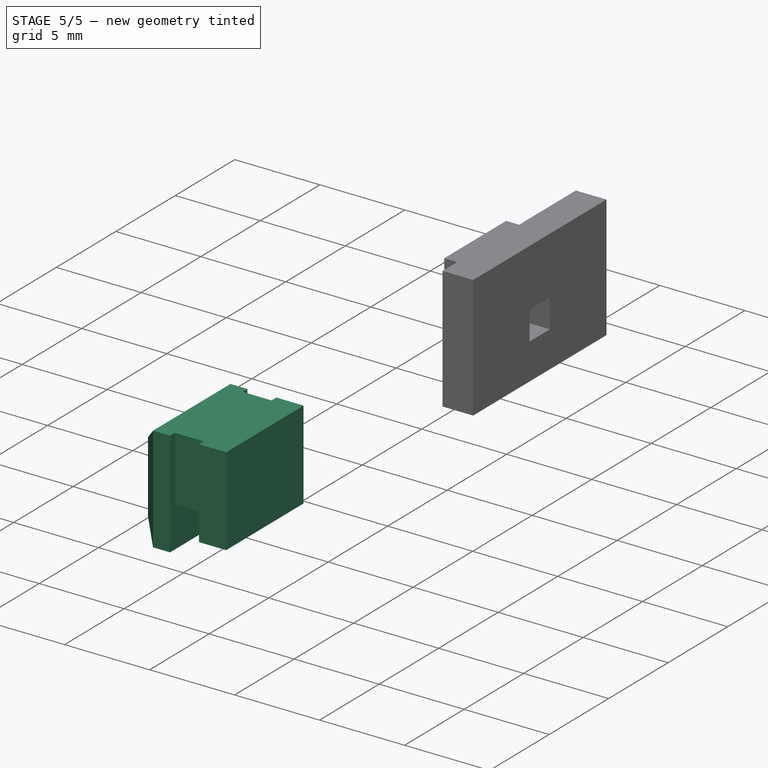
[diagram: stage 5 of 5 — iso view after this stage's code; geometry added in this stage tinted green]
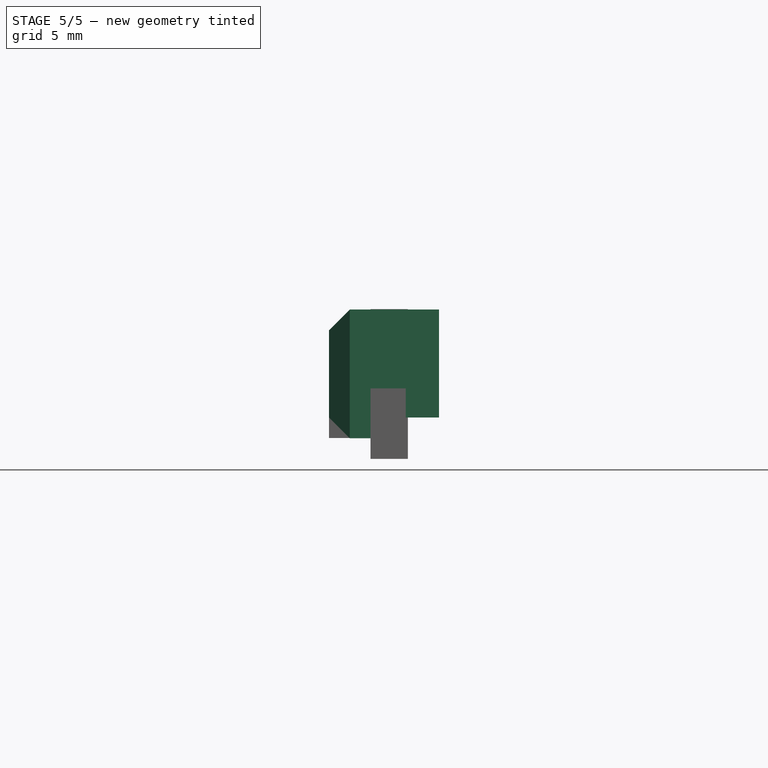
[diagram: stage 5 of 5 — front view after this stage's code; geometry added in this stage tinted green]
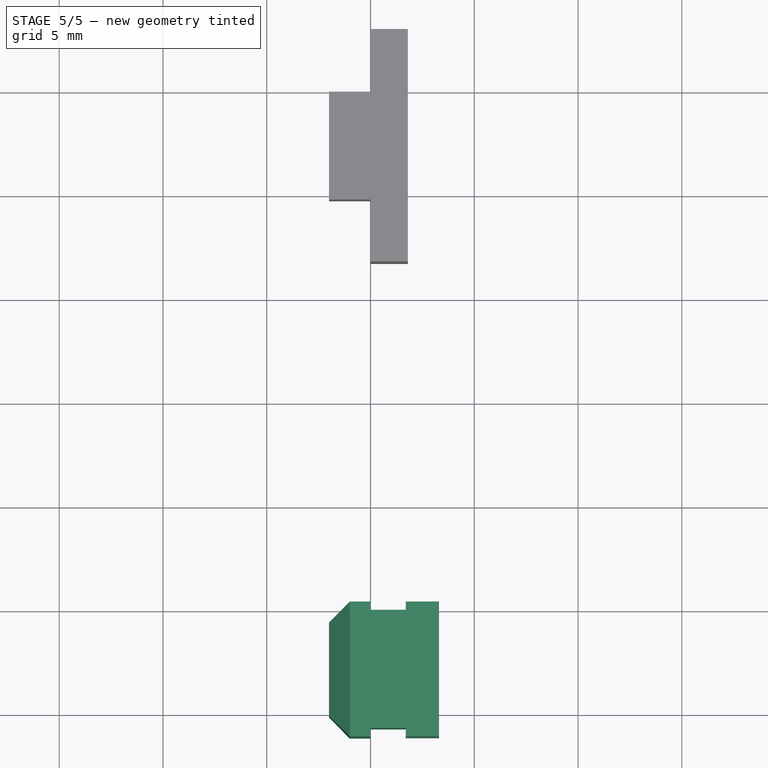
[diagram: stage 5 of 5 — top view after this stage's code; geometry added in this stage tinted green]
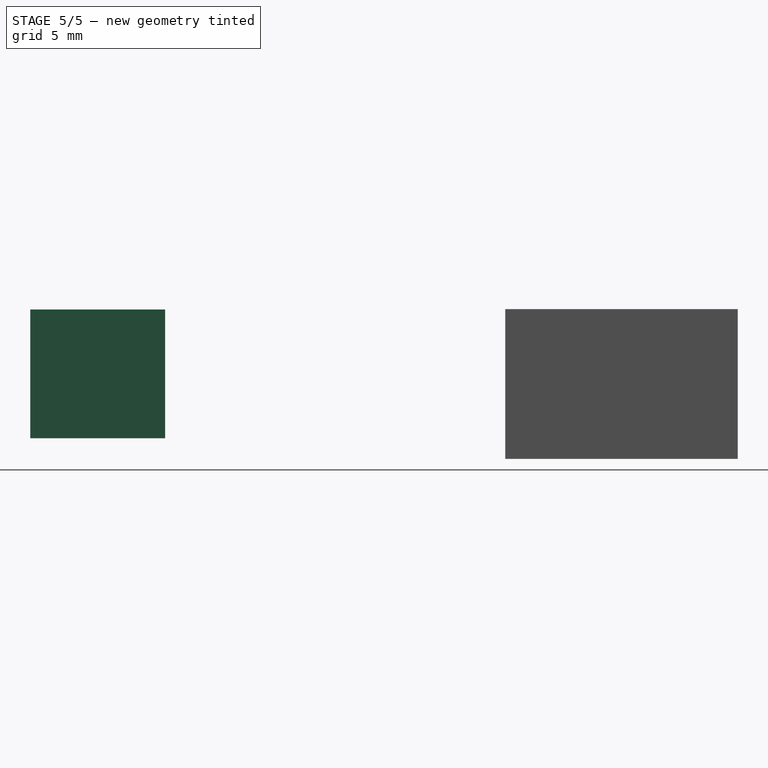
[diagram: stage 5 of 5 — right view after this stage's code; geometry added in this stage tinted green]
FEATURE [PartDesign::Body] Body013  label="battery"
  AllowCompound = false
  Group = -> [Sketch102,Pad051,Fillet]
  Origin = -> Origin018
  Placement = pos=(0,-4,1.8) rot=(0,0,1;0rad)
  Tip = -> Fillet
FEATURE [Sketcher::SketchObject] Sketch105
  ArcFitTolerance = 1e-06
  AttachmentOffset = pos=(0,0,-26.4) rot=(0,0,1;0rad)
  AttachmentSupport = -> [YZ_Plane009]
  ExternalTypes = [0]
  FullyConstrained = true
  MakeInternals = false
  MapMode = 5
  Placement = pos=(-26.4,0,0) rot=(0.57735,0.57735,0.57735;2.0944rad)
  _ExternalGeoVersion = 0
  expr: .AttachmentOffset.Base.z = -<<vars>>.wall_width / 2
  expr: Constraints[19] = <<vars>>.lip_height
  sketch-geometry (22):
    g0: GeomPoint [constr] X=-7.89 Y=11.745 Z=0
    g1: GeomPoint [constr] X=-6.49 Y=11.095 Z=0
    g2: GeomPoint [constr] X=-15.39 Y=11.095 Z=0
    g3: GeomPoint [constr] X=-16.79 Y=11.745 Z=0
    g4: GeomPoint [constr] X=-16.79 Y=11.095 Z=0
    g5: GeomPoint [constr] X=-7.89 Y=11.095 Z=0
    g6: LineSegment StartX=-4.44 StartY=13.6 StartZ=0 EndX=-4.44 EndY=8.59 EndZ=0
    g7: LineSegment StartX=-11.34 StartY=8.59 StartZ=0 EndX=-11.34 EndY=13.6 EndZ=0
    g8: LineSegment StartX=-11.34 StartY=13.6 StartZ=0 EndX=-11.34 EndY=15 EndZ=0
    g9: LineSegment StartX=-11.34 StartY=15 StartZ=0 EndX=-4.44 EndY=15 EndZ=0
    g10: LineSegment StartX=-4.44 StartY=15 StartZ=0 EndX=-4.44 EndY=13.6 EndZ=0
    g11: LineSegment StartX=-4.44 StartY=8.59 StartZ=0 EndX=-4.44 EndY=7.59 EndZ=0
    g12: LineSegment StartX=-4.44 StartY=7.59 StartZ=0 EndX=-11.34 EndY=7.59 EndZ=0
    g13: LineSegment StartX=-11.34 StartY=7.59 StartZ=0 EndX=-11.34 EndY=8.59 EndZ=0
    g14: LineSegment StartX=-13.34 StartY=13.6 StartZ=0 EndX=-13.34 EndY=8.59 EndZ=0
    g15: LineSegment StartX=-13.34 StartY=8.59 StartZ=0 EndX=-13.34 EndY=7.59 EndZ=0
    g16: LineSegment StartX=-13.34 StartY=13.6 StartZ=0 EndX=-13.34 EndY=15 EndZ=0
    g17: LineSegment StartX=-13.34 StartY=15 StartZ=0 EndX=-20.24 EndY=15 EndZ=0
    g18: LineSegment StartX=-20.24 StartY=13.6 StartZ=0 EndX=-20.24 EndY=8.59 EndZ=0
    g19: LineSegment StartX=-20.24 StartY=8.59 StartZ=0 EndX=-20.24 EndY=7.59 EndZ=0
    g20: LineSegment StartX=-20.24 StartY=7.59 StartZ=0 EndX=-13.34 EndY=7.59 EndZ=0
    g21: LineSegment StartX=-20.24 StartY=15 StartZ=0 EndX=-20.24 EndY=13.6 EndZ=0
  constraints (54):
    c: Symmetric(g-5,g-5,g0)
    c: Symmetric(g-6,g-6,g1)
    c: Symmetric(g-4,g-4,g2)
    c: Symmetric(g-3,g-3,g3)
    c: Vertical(g0,g5)
    c: Horizontal(g1,g5)
    c: Horizontal(g2,g4)
    c: Vertical(g3,g4)
    c: Vertical(g6)
    c: Vertical(g7)
    c: Coincident(g8,g7)
    c: Vertical(g8)
    c: Coincident(g9,g8)
    c: Horizontal(g9)
    c: Coincident(g10,g9)
    c: Coincident(g10,g6)
    c: Vertical(g10)
    c: DistanceX(g9,g9) = 6.9
    c: Symmetric(g6,g7,g5)
    c: DistanceY(g10,g10) = 1.4
    c: DistanceY(g6,g6) = 5.01
    c: Equal(g6,g7)
    c: Horizontal(g7,g6)
    c: Vertical(g11)
    c: Coincident(g12,g11)
    c: Horizontal(g12)
    c: Coincident(g13,g12)
    c: Coincident(g13,g7)
    c: Vertical(g13)
    c: Coincident(g6,g11)
    c: DistanceY(g11,g11) = 1
    c: Vertical(g14)
    c: Coincident(g15,g14)
    c: Vertical(g15)
    c: Coincident(g16,g14)
    c: Vertical(g16)
    c: Coincident(g17,g16)
    c: Horizontal(g17)
    c: Vertical(g18)
    c: Coincident(g19,g18)
    c: Vertical(g19)
    c: Coincident(g20,g19)
    c: Coincident(g20,g15)
    c: Horizontal(g20)
    c: Equal(g15,g11)
    c: Equal(g19,g15)
    c: Equal(g17,g9)
    c: Coincident(g21,g17)
    c: Coincident(g21,g18)
    c: Vertical(g21)
    c: Equal(g16,g10)
    c: Horizontal(g14,g18)
    c: Symmetric(g14,g18,g4)
    c: Equal(g14,g7)
FEATURE [PartDesign::SubShapeBinder] Binder011  label="battery-binder"
  BindCopyOnChange = 0
  BindMode = 0
  ClaimChildren = false
  Context = -> Body007 [Binder011.]
  Fuse = false
  MakeFace = true
  OffsetFill = false
  OffsetIntersection = false
  OffsetJoinType = 0
  OffsetOpenResult = false
  PartialLoad = false
  Refine = true
  Relative = true
  Support = -> [Body013]
  _Version = 2
FEATURE [Sketcher::SketchObject] Sketch123
  ArcFitTolerance = 1e-06
  AttachmentOffset = pos=(0,0,4.8) rot=(0,0,1;0rad)
  AttachmentSupport = -> [XY_Plane011]
  ExternalTypes = [0]
  FullyConstrained = true
  MakeInternals = false
  MapMode = 5
  Placement = pos=(0,0,4.8) rot=(0,0,1;0rad)
  _ExternalGeoVersion = 0
  expr: .AttachmentOffset.Base.z = <<vars>>.top_height
  expr: Constraints[30] = <<vars>>.hinge_button_gap
  expr: Constraints[60] = <<vars>>.hinge_button_corner_rad
  expr: Constraints[61] = <<vars>>.hinge_button_gap
  expr: Constraints[62] = <<vars>>.hinge_button_gap
  expr: Constraints[67] = <<vars>>.hinge_button_length
  expr: Constraints[6] = <<vars>>.hinge_button_width
  expr: Constraints[77] = <<vars>>.hinge_button_corner_rad
  expr: Constraints[79] = <<vars>>.hinge_bridge_gap
  sketch-geometry (30):
    g0: LineSegment StartX=22.5 StartY=-1 StartZ=0 EndX=22.5 EndY=23 EndZ=0
    g1: LineSegment StartX=18.5 StartY=27 StartZ=0 EndX=-18.5 EndY=27 EndZ=0
    g2: LineSegment StartX=-22.5 StartY=23 StartZ=0 EndX=-22.5 EndY=-1 EndZ=0
    g3: LineSegment StartX=-22.5 StartY=-4 StartZ=0 EndX=-22.5 EndY=-28 EndZ=0
    g4: LineSegment StartX=-18.5 StartY=-31.65 StartZ=0 EndX=18.5 EndY=-31.65 EndZ=0
    g5: LineSegment StartX=22.5 StartY=-28 StartZ=0 EndX=22.5 EndY=-4 EndZ=0
    g6: GeomPoint [constr] X=0 Y=-4 Z=0
    g7: GeomPoint [constr] X=0 Y=-1 Z=0
    g8: LineSegment StartX=-22.15 StartY=23 StartZ=0 EndX=-22.15 EndY=-1 EndZ=0
    g9: LineSegment StartX=22.15 StartY=-1 StartZ=0 EndX=22.15 EndY=23 EndZ=0
    g10: LineSegment StartX=18.5 StartY=26.65 StartZ=0 EndX=-18.5 EndY=26.65 EndZ=0
    g11: LineSegment StartX=-18.5 StartY=-32 StartZ=0 EndX=18.5 EndY=-32 EndZ=0
    g12: LineSegment StartX=22.15 StartY=-28 StartZ=0 EndX=22.15 EndY=-4 EndZ=0
    g13: LineSegment StartX=-22.15 StartY=-4 StartZ=0 EndX=-22.15 EndY=-28 EndZ=0
    g14: LineSegment StartX=-22.5 StartY=-1 StartZ=0 EndX=-22.15 EndY=-1 EndZ=0
    g15: LineSegment StartX=-22.5 StartY=-4 StartZ=0 EndX=-22.15 EndY=-4 EndZ=0
    g16: LineSegment StartX=22.15 StartY=-4 StartZ=0 EndX=22.5 EndY=-4 EndZ=0
    g17: LineSegment StartX=22.15 StartY=-1 StartZ=0 EndX=22.5 EndY=-1 EndZ=0
    g18: ArcOfCircle CenterX=-18.5 CenterY=23 CenterZ=0 NormalX=0 NormalY=0 NormalZ=1 AngleXU=0 Radius=3.65 StartAngle=1.5708 EndAngle=3.14159
    g19: ArcOfCircle CenterX=-18.5 CenterY=23 CenterZ=0 NormalX=0 NormalY=0 NormalZ=1 AngleXU=0 Radius=4 StartAngle=1.5708 EndAngle=3.14159
    g20: ArcOfCircle CenterX=18.5 CenterY=23 CenterZ=0 NormalX=0 NormalY=0 NormalZ=1 AngleXU=0 Radius=3.65 StartAngle=2e-16 EndAngle=1.5708
    g21: ArcOfCircle CenterX=18.5 CenterY=23 CenterZ=0 NormalX=0 NormalY=0 NormalZ=1 AngleXU=0 Radius=4 StartAngle=1e-16 EndAngle=1.5708
    g22: LineSegment [constr] StartX=-22.15 StartY=-4 StartZ=0 EndX=22.15 EndY=-4 EndZ=0
    g23: LineSegment [constr] StartX=-22.15 StartY=-1 StartZ=0 EndX=22.15 EndY=-1 EndZ=0
    g24: ArcOfCircle CenterX=-18.5 CenterY=-28 CenterZ=0 NormalX=0 NormalY=0 NormalZ=1 AngleXU=0 Radius=3.65 StartAngle=3.14159 EndAngle=4.71239
    g25: ArcOfCircle CenterX=-18.5 CenterY=-28 CenterZ=0 NormalX=0 NormalY=0 NormalZ=1 AngleXU=0 Radius=4 StartAngle=3.14159 EndAngle=4.71239
    g26: ArcOfCircle CenterX=18.5 CenterY=-28 CenterZ=0 NormalX=0 NormalY=0 NormalZ=1 AngleXU=0 Radius=3.65 StartAngle=4.71239 EndAngle=6.28319
    g27: ArcOfCircle CenterX=18.5 CenterY=-28 CenterZ=0 NormalX=0 NormalY=0 NormalZ=1 AngleXU=0 Radius=4 StartAngle=4.71239 EndAngle=6.28319
    g28: LineSegment [constr] StartX=-22.5 StartY=-32 StartZ=0 EndX=-22.5 EndY=-4 EndZ=0
    g29: LineSegment [constr] StartX=-22.5 StartY=-1 StartZ=0 EndX=-22.5 EndY=27 EndZ=0
  constraints (82):
    c: Horizontal(g1)
    c: Vertical(g0)
    c: Vertical(g2)
    c: Vertical(g3)
    c: Vertical(g5)
    c: Horizontal(g4)
    c: DistanceX(g3,g5) = 45
    c: Symmetric(g5,g3,g6)
    c: Symmetric(g2,g0,g7)
    c: Vertical(g8)
    c: Vertical(g9)
    c: Horizontal(g10)
    c: Horizontal(g11)
    c: Vertical(g12)
    c: Vertical(g13)
    c: Horizontal(g3,g13)
    c: Horizontal(g5,g12)
    c: Horizontal(g2,g8)
    c: Horizontal(g0,g9)
    c: Vertical(g2,g3)
    c: Vertical(g8,g13)
    c: Vertical(g9,g12)
    c: Coincident(g14,g2)
    c: Coincident(g14,g8)
    c: Coincident(g15,g3)
    c: Coincident(g15,g13)
    c: Coincident(g16,g12)
    c: Coincident(g16,g5)
    c: Coincident(g17,g9)
    c: Coincident(g17,g0)
    c: Distance(g3,g13) = 0.35
    c: Tangent(g8,g18) = -1.5708
    c: Tangent(g10,g18) = -1.5708
    c: Tangent(g1,g19) = -1.5708
    c: Tangent(g2,g19) = -1.5708
    c: Tangent(g9,g20) = -1.5708
    c: Tangent(g10,g20) = -1.5708
    c: Tangent(g0,g21) = -1.5708
    c: Tangent(g1,g21) = -1.5708
    c: Horizontal(g12,g5)
    c: Vertical(g11,g4)
    c: Coincident(g22,g13)
    c: Horizontal(g22)
    c: Coincident(g22,g12)
    c: Coincident(g23,g8)
    c: Coincident(g23,g9)
    c: Horizontal(g23)
    c: Equal(g21,g19)
    c: Horizontal(g9,g0)
    c: Vertical(g1,g10)
    c: Horizontal(g8,g2)
    c: Coincident(g24,g13)
    c: Coincident(g24,g4)
    c: Coincident(g25,g3)
    c: Coincident(g25,g11)
    c: Coincident(g26,g4)
    c: Coincident(g26,g12)
    c: Coincident(g27,g5)
    c: Coincident(g27,g11)
    c: Horizontal(g3,g13)
    c: Radius(g25) = 4
    c: Distance(g4,g11) = 0.35
    c: Distance(g12,g5) = 0.35
    c: Equal(g27,g25)
    c: Vertical(g28)
    c: Coincident(g28,g3)
    c: Horizontal(g28,g11)
    c: DistanceY(g28,g28) = 28
    c: Vertical(g4,g11)
    c: Coincident(g26,g27)
    c: Coincident(g24,g25)
    c: Horizontal(g13,g24)
    c: Horizontal(g12,g26)
    c: Coincident(g29,g2)
    c: Vertical(g29)
    c: Horizontal(g29,g1)
    c: Equal(g29,g28)
    c: Radius(g19) = 4
    c: Distance(g-1,g23) = 1
    c: Distance(g22,g23) = 3
    c: PointOnObject(g7,g-2)
    c: PointOnObject(g6,g-2)
FEATURE [PartDesign::SubShapeBinder] Binder014
  BindCopyOnChange = 0
  BindMode = 0
  ClaimChildren = false
  Context = -> Body017 [Binder014.]
  Fuse = false
  MakeFace = true
  OffsetFill = false
  OffsetIntersection = false
  OffsetJoinType = 0
  OffsetOpenResult = false
  PartialLoad = false
  Refine = true
  Relative = true
  Support = -> [Body007]
  _Version = 2
FEATURE [PartDesign::SubShapeBinder] Binder015
  BindCopyOnChange = 0
  BindMode = 0
  ClaimChildren = false
  Context = -> Body017 [Binder015.]
  Fuse = false
  MakeFace = true
  OffsetFill = false
  OffsetIntersection = false
  OffsetJoinType = 0
  OffsetOpenResult = false
  PartialLoad = false
  Refine = true
  Relative = true
  Support = -> [Body]
  _Version = 2
FEATURE [Sketcher::SketchObject] Sketch126
  ArcFitTolerance = 1e-06
  AttachmentSupport = -> [YZ_Plane022]
  ExternalGeometry = -> [Binder014,Binder015]
  ExternalTypes = [0]
  FullyConstrained = true
  MakeInternals = false
  MapMode = 5
  Placement = pos=(0,0,0) rot=(0.57735,0.57735,0.57735;2.0944rad)
  _ExternalGeoVersion = 0
  expr: Constraints[10] = <<vars>>.side_button_gap
  expr: Constraints[8] = <<vars>>.side_button_gap
  expr: Constraints[9] = <<vars>>.side_button_gap
  sketch-geometry (4):
    g0: LineSegment StartX=-5.04 StartY=12.995 StartZ=0 EndX=-10.74 EndY=12.995 EndZ=0
    g1: LineSegment StartX=-10.74 StartY=12.995 StartZ=0 EndX=-10.74 EndY=9.195 EndZ=0
    g2: LineSegment StartX=-10.74 StartY=9.195 StartZ=0 EndX=-5.04 EndY=9.195 EndZ=0
    g3: LineSegment StartX=-5.04 StartY=9.195 StartZ=0 EndX=-5.04 EndY=12.995 EndZ=0
  constraints (12):
    c: Coincident(g0,g1)
    c: Coincident(g1,g2)
    c: Coincident(g2,g3)
    c: Coincident(g3,g0)
    c: Horizontal(g0)
    c: Horizontal(g2)
    c: Vertical(g1)
    c: Vertical(g3)
    c: Distance(g-3,g3) = 0.2
    c: DistanceY(g0,g-3) = 0.2
    c: Distance(g-4,g1) = 0.2
    c: PointOnObject(g1,g-4)
FEATURE [PartDesign::Pad] Pad061  label="stem001"
  Direction = (1,0,0)
  Length = 1.7
  Length2 = 10
  Placement = pos=(0,0,0) rot=(1,1,1;2.0944rad)
  Profile = -> Sketch126
  ReferenceAxis = -> Sketch126 [N_Axis]
  Refine = true
  SideType = 0
  Suppressed = false
  Type = 0
  Type2 = 0
  expr: Length = <<vars>>.side_button_stem_length
FEATURE [Sketcher::SketchObject] Sketch127
  ArcFitTolerance = 1e-06
  AttachmentOffset = pos=(0,0,1.7) rot=(0,0,1;0rad)
  AttachmentSupport = -> [YZ_Plane022]
  ExternalGeometry = -> [Pad061,Binder014,Binder015]
  ExternalTypes = [0]
  FullyConstrained = true
  MakeInternals = false
  MapMode = 5
  Placement = pos=(1.7,0,0) rot=(0.57735,0.57735,0.57735;2.0944rad)
  _ExternalGeoVersion = 0
  expr: .AttachmentOffset.Base.z = <<vars>>.side_button_stem_length
  expr: Constraints[12] = <<vars>>.side_button_gap
  expr: Constraints[14] = <<vars>>.side_button_gap
  expr: Constraints[9] = 6.7 mm - <<vars>>.side_button_gap
  sketch-geometry (4):
    g0: LineSegment StartX=-11.14 StartY=7.79 StartZ=0 EndX=-4.64 EndY=7.79 EndZ=0
    g1: LineSegment StartX=-4.64 StartY=7.79 StartZ=0 EndX=-4.64 EndY=12.995 EndZ=0
    g2: LineSegment StartX=-4.64 StartY=12.995 StartZ=0 EndX=-11.14 EndY=12.995 EndZ=0
    g3: LineSegment StartX=-11.14 StartY=12.995 StartZ=0 EndX=-11.14 EndY=7.79 EndZ=0
  constraints (15):
    c: Coincident(g0,g1)
    c: Coincident(g1,g2)
    c: Coincident(g2,g3)
    c: Coincident(g3,g0)
    c: Horizontal(g0)
    c: Horizontal(g2)
    c: Vertical(g1)
    c: Vertical(g3)
    c: DistanceX(g-10,g-10) = 6.9
    c: DistanceX(g2,g2) = 6.5
    c: DistanceY(g-9,g-9) = 2.195
    c: DistanceY(g-6,g-6) = 4.41
    c: Distance(g-9,g3) = 0.2
    c: PointOnObject(g-5,g2)
    c: Distance(g-7,g0) = 0.2
FEATURE [PartDesign::Pad] Pad062  label="paddle"
  BaseFeature = -> Pad061
  Direction = (1,0,0)
  Length = 1.6
  Length2 = 10
  Placement = pos=(0,0,0) rot=(1,1,1;2.0944rad)
  Profile = -> Sketch127
  ReferenceAxis = -> Sketch127 [N_Axis]
  Refine = true
  SideType = 0
  Suppressed = false
  Type = 0
  Type2 = 0
FEATURE [Sketcher::SketchObject] Sketch128
  ArcFitTolerance = 1e-06
  AttachmentSupport = -> [YZ_Plane022]
  ExternalGeometry = -> [Pad062]
  ExternalTypes = [0]
  FullyConstrained = true
  MakeInternals = false
  MapMode = 5
  Placement = pos=(0,0,0) rot=(0.57735,0.57735,0.57735;2.0944rad)
  _ExternalGeoVersion = 0
  sketch-geometry (7):
    g0: LineSegment StartX=-4.64 StartY=12.995 StartZ=0 EndX=-11.14 EndY=12.995 EndZ=0
    g1: LineSegment StartX=-11.14 StartY=12.995 StartZ=0 EndX=-11.14 EndY=6.79 EndZ=0
    g2: LineSegment StartX=-11.14 StartY=6.79 StartZ=0 EndX=-4.64 EndY=6.79 EndZ=0
    g3: LineSegment StartX=-4.64 StartY=6.79 StartZ=0 EndX=-4.64 EndY=12.995 EndZ=0
    g4: GeomPoint [constr] X=-5.04 Y=11.095 Z=0
    g5: GeomPoint [constr] X=-7.89 Y=12.995 Z=0
    g6: GeomPoint [constr] X=-7.89 Y=11.095 Z=0
  constraints (16):
    c: Coincident(g0,g1)
    c: Coincident(g1,g2)
    c: Coincident(g2,g3)
    c: Coincident(g3,g0)
    c: Horizontal(g0)
    c: Horizontal(g2)
    c: Vertical(g1)
    c: Vertical(g3)
    c: Symmetric(g-3,g-3,g4)
    c: Symmetric(g-4,g-4,g5)
    c: Vertical(g5,g6)
    c: Horizontal(g4,g6)
    c: PointOnObject(g-4,g0)
    c: Distance(g-5,g2) = 1
    c: PointOnObject(g0,g-5)
    c: PointOnObject(g0,g-6)
FEATURE [PartDesign::Pad] Pad063  label="outer_stem"
  BaseFeature = -> Pad062
  Direction = (1,0,0)
  Length = 2
  Length2 = 10
  Placement = pos=(0,0,0) rot=(1,1,1;2.0944rad)
  Profile = -> Sketch128
  ReferenceAxis = -> Sketch128 [N_Axis]
  Refine = true
  Reversed = true
  SideType = 0
  Suppressed = false
  Type = 0
  Type2 = 0
FEATURE [PartDesign::Chamfer] Chamfer
  Angle = 45
  Base = -> Pad063 [Face13]
  BaseFeature = -> Pad063
  ChamferType = 0
  FlipDirection = false
  Placement = pos=(0,0,0) rot=(1,1,1;2.0944rad)
  Refine = true
  Size = 1
  Size2 = 1
  SupportTransform = false
  Suppressed = false
  UseAllEdges = false
FEATURE [PartDesign::Pocket] Pocket040  label="side-button-notch"
  BaseFeature = -> Pocket056
  Direction = (-1,0,0)
  Length = 1.4
  Length2 = 5
  Profile = -> Sketch105
  ReferenceAxis = -> Sketch105 [N_Axis]
  Refine = true
  SideType = 0
  Suppressed = false
  Type = 0
  Type2 = 0
FEATURE [PartDesign::Pocket] Pocket041  label="front-pockets"
  BaseFeature = -> Pocket040
  Direction = (0,1,-2e-16)
  Length = 5
  Length2 = 5
  Profile = -> Sketch106
  ReferenceAxis = -> Sketch106 [N_Axis]
  Refine = true
  SideType = 0
  Suppressed = false
  Type = 0
  Type2 = 0
FEATURE [PartDesign::Pocket] Pocket042  label="back-pockets"
  BaseFeature = -> Pocket041
  Direction = (0,1,-2e-16)
  Length = 2.2
  Length2 = 5
  Profile = -> Sketch107
  ReferenceAxis = -> Sketch107 [N_Axis]
  Refine = true
  Reversed = true
  SideType = 0
  Suppressed = false
  Type = 0
  Type2 = 0
  expr: Length = <<vars>>.thickness
FEATURE [PartDesign::Pocket] Pocket043  label="dev-pocket"
  BaseFeature = -> Pocket042
  Direction = (-1,0,0)
  Length = 2.2
  Length2 = 5
  Profile = -> Sketch108
  ReferenceAxis = -> Sketch108 [N_Axis]
  Refine = true
  SideType = 0
  Suppressed = false
  Type = 0
  Type2 = 0
  expr: Length = <<vars>>.thickness
FEATURE [Sketcher::SketchObject] Sketch109
  ArcFitTolerance = 1e-06
  AttachmentSupport = -> [XY_Plane009]
  ExternalGeometry = -> [Binder011,Pocket043]
  ExternalTypes = [0,0,0,0,0,0]
  FullyConstrained = true
  MakeInternals = false
  MapMode = 5
  _ExternalGeoVersion = 0
  sketch-geometry (21):
    g0: LineSegment StartX=-19.9 StartY=21.4 StartZ=0 EndX=-20.4 EndY=21.4 EndZ=0
    g1: LineSegment StartX=-21.4 StartY=20.4 StartZ=0 EndX=-21.4 EndY=-30.85 EndZ=0
    g2: LineSegment StartX=-21.4 StartY=-30.85 StartZ=0 EndX=-18.9 EndY=-30.85 EndZ=0
    g3: LineSegment StartX=-18.9 StartY=-30.85 StartZ=0 EndX=-18.9 EndY=20.4 EndZ=0
    g4: LineSegment StartX=-17.5 StartY=26.4 StartZ=0 EndX=18.9 EndY=26.4 EndZ=0
    g5: LineSegment StartX=20.4 StartY=28.9 StartZ=0 EndX=-17.5 EndY=28.9 EndZ=0
    g6: LineSegment StartX=-18.5 StartY=27.9 StartZ=0 EndX=-18.5 EndY=27.4 EndZ=0
    g7: LineSegment StartX=21.4 StartY=-30.85 StartZ=0 EndX=21.4 EndY=27.9 EndZ=0
    g8: LineSegment StartX=18.9 StartY=26.4 StartZ=0 EndX=18.9 EndY=-30.85 EndZ=0
    g9: LineSegment StartX=18.9 StartY=-30.85 StartZ=0 EndX=21.4 EndY=-30.85 EndZ=0
    g10: ArcOfCircle CenterX=20.4 CenterY=27.9 CenterZ=0 NormalX=0 NormalY=0 NormalZ=1 AngleXU=0 Radius=1 StartAngle=1.8e-15 EndAngle=1.5708
    g11: GeomPoint [constr] X=21.4 Y=28.9 Z=0
    g12: ArcOfCircle CenterX=-20.4 CenterY=20.4 CenterZ=0 NormalX=0 NormalY=0 NormalZ=1 AngleXU=0 Radius=1 StartAngle=1.5708 EndAngle=3.14159
    g13: GeomPoint [constr] X=-21.4 Y=21.4 Z=0
    g14: ArcOfCircle CenterX=-19.9 CenterY=20.4 CenterZ=0 NormalX=0 NormalY=0 NormalZ=1 AngleXU=0 Radius=1 StartAngle=-9e-16 EndAngle=1.5708
    g15: GeomPoint [constr] X=-18.9 Y=21.4 Z=0
    g16: ArcOfCircle CenterX=-17.5 CenterY=27.9 CenterZ=0 NormalX=0 NormalY=0 NormalZ=1 AngleXU=0 Radius=1 StartAngle=1.5708 EndAngle=3.14159
    g17: GeomPoint [constr] X=-18.5 Y=28.9 Z=0
    g18: ArcOfCircle CenterX=-17.5 CenterY=27.4 CenterZ=0 NormalX=0 NormalY=0 NormalZ=1 AngleXU=0 Radius=1 StartAngle=3.14159 EndAngle=4.71239
    g19: GeomPoint [constr] X=-18.5 Y=26.4 Z=0
    g20: LineSegment [constr] StartX=-17.5 StartY=28.9 StartZ=0 EndX=-17.5 EndY=26.4 EndZ=0
  constraints (50):
    c: Coincident(g1,g2)
    c: Horizontal(g0)
    c: Horizontal(g2)
    c: Vertical(g1)
    c: Vertical(g3)
    c: Coincident(g1,g-5)
    c: Horizontal(g5)
    c: Vertical(g6)
    c: Horizontal(g4)
    c: Coincident(g8,g9)
    c: Coincident(g9,g7)
    c: Vertical(g7)
    c: Horizontal(g9)
    c: Coincident(g7,g-6)
    c: Vertical(g8)
    c: Coincident(g4,g8)
    c: Distance(g-4,g8) = 0.4
    c: Coincident(g2,g3)
    c: Distance(g-3,g4) = 0.4
    c: PointOnObject(g11,g5)
    c: PointOnObject(g11,g7)
    c: Tangent(g5,g10) = -1.5708
    c: Tangent(g7,g10) = -1.5708
    c: PointOnObject(g13,g0)
    c: PointOnObject(g13,g1)
    c: Tangent(g0,g12) = -1.5708
    c: Tangent(g1,g12) = -1.5708
    c: PointOnObject(g15,g0)
    c: PointOnObject(g15,g3)
    c: Tangent(g0,g14) = -1.5708
    c: Tangent(g3,g14) = -1.5708
    c: PointOnObject(g17,g5)
    c: PointOnObject(g17,g6)
    c: Tangent(g5,g16) = -1.5708
    c: Tangent(g6,g16) = -1.5708
    c: PointOnObject(g19,g4)
    c: PointOnObject(g19,g6)
    c: Tangent(g4,g18) = -1.5708
    c: Tangent(g6,g18) = -1.5708
    c: Radius(g18) = 1
    c: Equal(g16,g18)
    c: Equal(g16,g14)
    c: Equal(g12,g14)
    c: Equal(g16,g10)
    c: Equal(g2,g9)
    c: Equal(g20,g9)
    c: Coincident(g20,g5)
    c: Coincident(g20,g4)
    c: Vertical(g6,g-7)
    c: DistanceY(g15,g19) = 5
FEATURE [PartDesign::Pad] Pad053  label="battery-holder"
  BaseFeature = -> Pocket043
  Direction = (0,0,1)
  Length = 6.6
  Length2 = 10
  Profile = -> Sketch109
  ReferenceAxis = -> Sketch109 [N_Axis]
  Refine = true
  SideType = 0
  Suppressed = false
  Type = 0
  Type2 = 0
  expr: Length = <<vars>>.peg_bottom_height
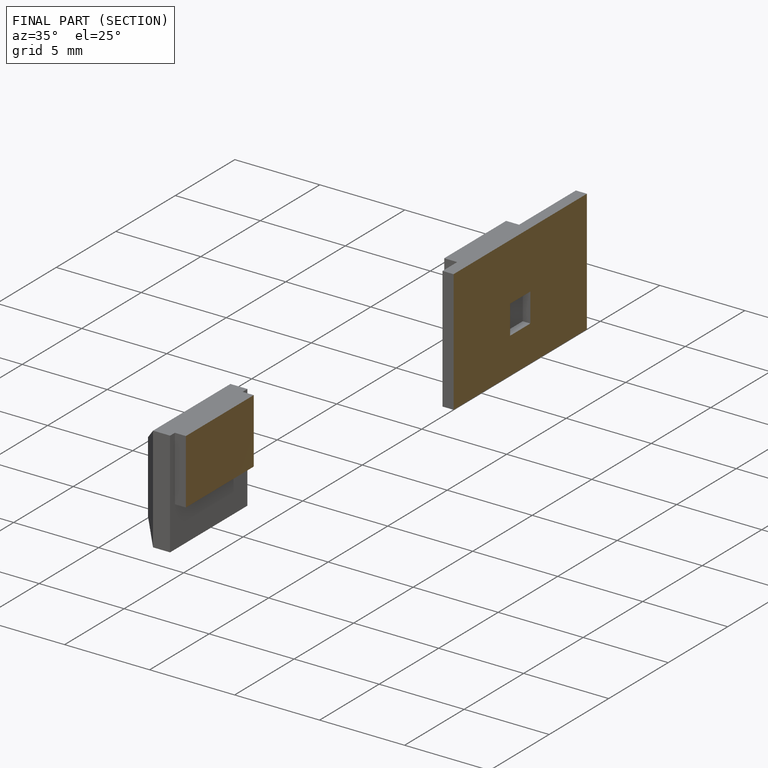
[diagram: finished part — half-section view (interior)]
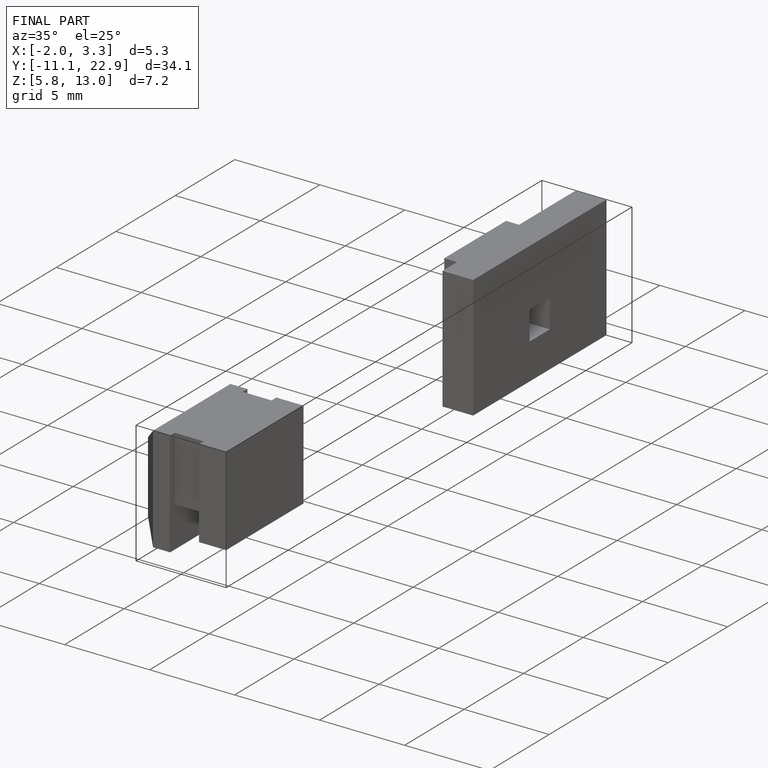
[diagram: finished part — iso view with bounding-box wireframe]
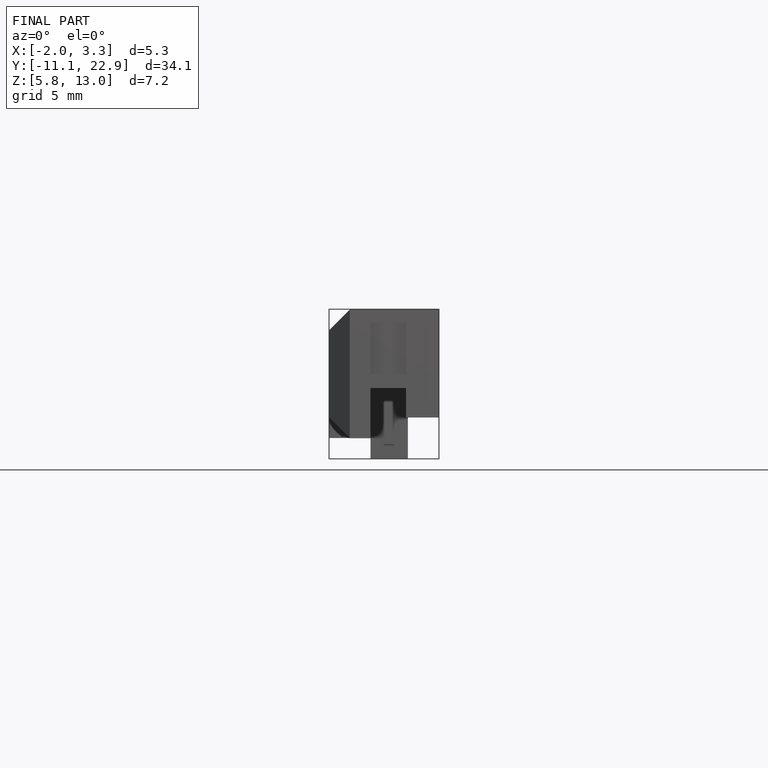
[diagram: finished part — front view with bounding-box wireframe]
